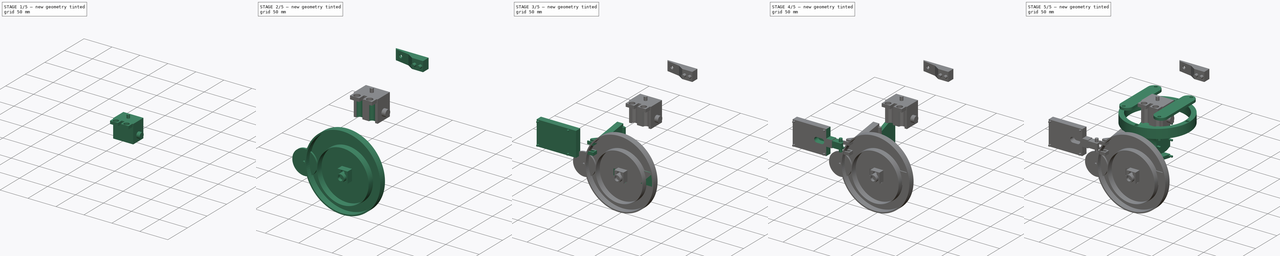
[diagram: build sequence overview — one tinted view per stage of 5, left to right]
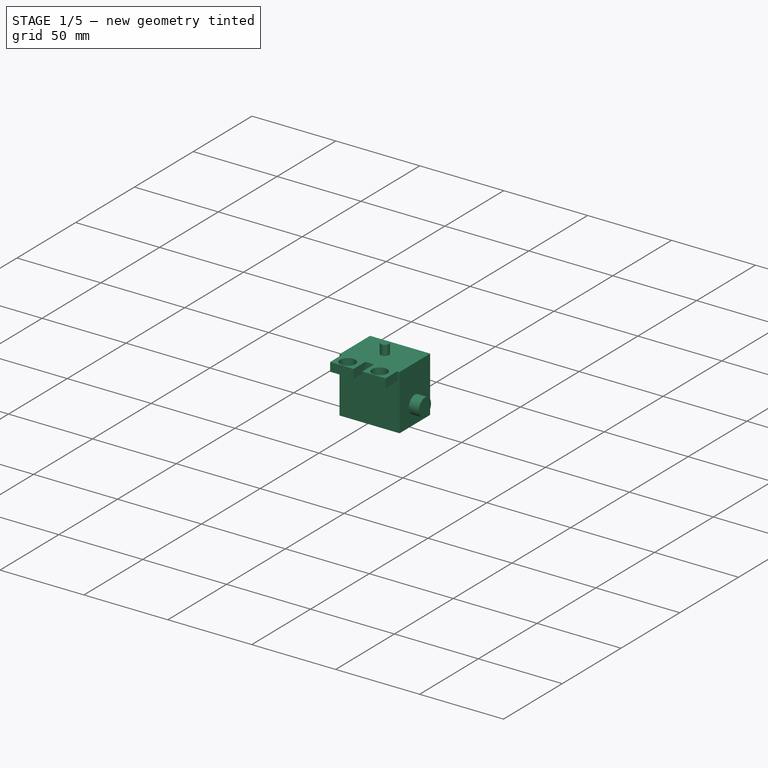
[diagram: stage 1 of 5 — iso view after this stage's code; geometry added in this stage tinted green]
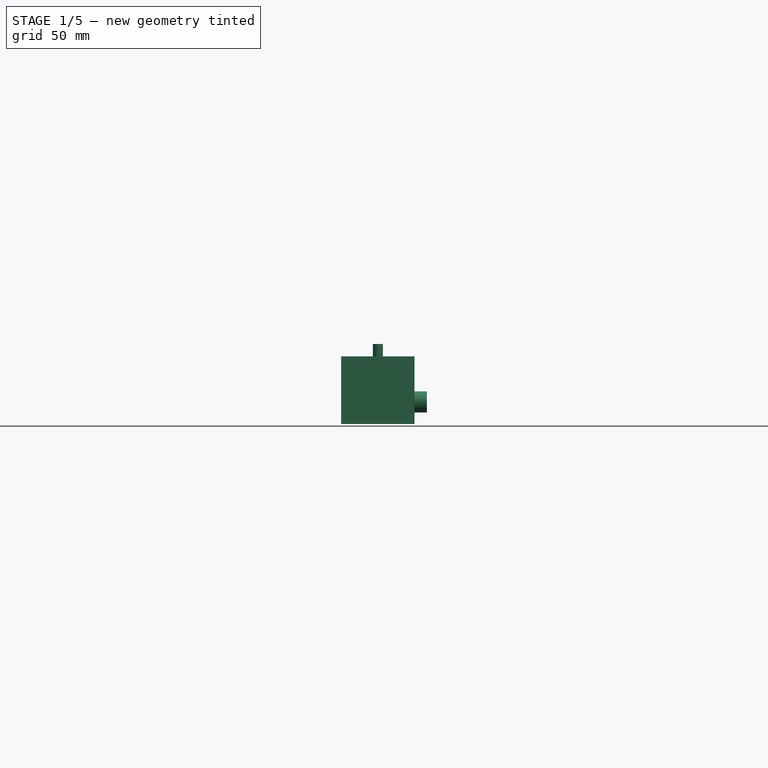
[diagram: stage 1 of 5 — front view after this stage's code; geometry added in this stage tinted green]
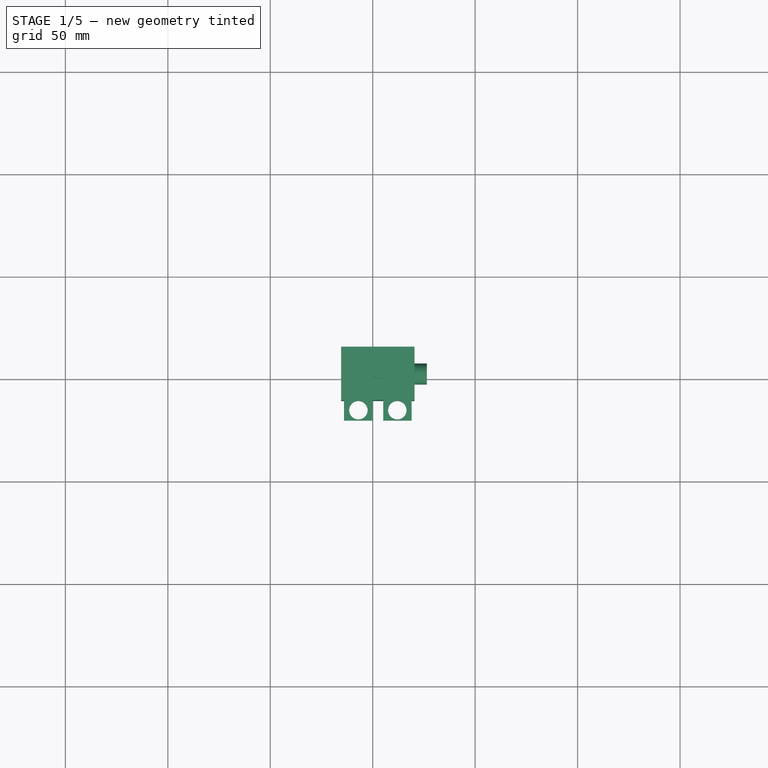
[diagram: stage 1 of 5 — top view after this stage's code; geometry added in this stage tinted green]
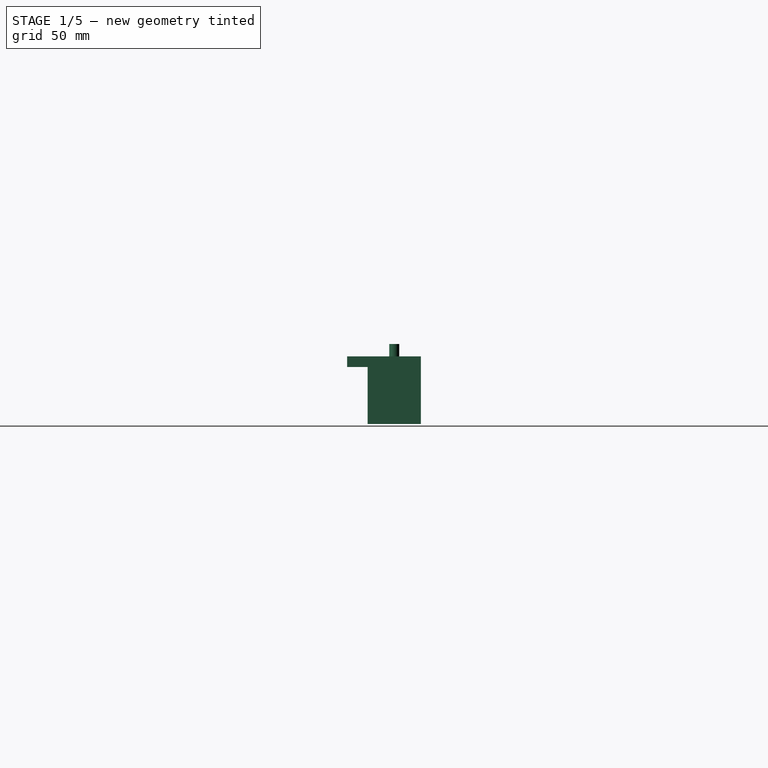
[diagram: stage 1 of 5 — right view after this stage's code; geometry added in this stage tinted green]
FCSTD DOCUMENT  (FreeCAD 0.18R4 (GitTag))
Label: soporte
License: All rights reserved
LicenseURL: http://en.wikipedia.org/wiki/All_rights_reserved
objects: Sketcher::SketchObject×91, PartDesign::Pocket×45, PartDesign::Pad×37, PartDesign::Body×14, PartDesign::Hole×5
note: 279 computed .brp shape members not serialized (recipe doc carries the construction recipe); baked Part::Feature solids carry a one-line shape summary decoded from their .brp

FEATURE [Sketcher::SketchObject] Sketch007
  MapMode = 5
  Support = -> [XY_Plane002]
  sketch-geometry (5):
    g0: LineSegment StartX=70.41 StartY=39.5 StartZ=0 EndX=34.6 EndY=39.5 EndZ=0
    g1: LineSegment StartX=34.6 StartY=39.5 StartZ=0 EndX=34.6 EndY=65.5 EndZ=0
    g2: LineSegment StartX=34.6 StartY=65.5 StartZ=0 EndX=70.41 EndY=65.5 EndZ=0
    g3: LineSegment StartX=70.41 StartY=65.5 StartZ=0 EndX=70.41 EndY=39.5 EndZ=0
    g4: Circle [constr] CenterX=52.5 CenterY=52.5 CenterZ=0 NormalX=0 NormalY=0 NormalZ=1 AngleXU=0 Radius=13
  constraints (15):
    c: Coincident(g0,g1)
    c: Coincident(g1,g2)
    c: Coincident(g2,g3)
    c: Coincident(g3,g0)
    c: Horizontal(g0)
    c: Horizontal(g2)
    c: Vertical(g1)
    c: Vertical(g3)
    c: DistanceX(g-1,g4) = 52.5
    c: DistanceY(g-1,g4) = 52.5
    c: Diameter(g4) = 26
    c: Tangent(g0,g4)
    c: Tangent(g2,g4)
    c: DistanceX(g0,g0) = 35.81
    c: DistanceX(g0,g4) = 17.9
FEATURE [PartDesign::Pad] Pad002
  Length = 33
  Length2 = 100
  Profile = -> Sketch007
  Type = 0
FEATURE [Sketcher::SketchObject] Sketch008
  MapMode = 5
  Placement = pos=(0,0,33) rot=(0,0,1;0rad)
  Support = -> [Pad002]
  sketch-geometry (1):
    g0: Circle CenterX=52.5 CenterY=52.5 CenterZ=0 NormalX=0 NormalY=0 NormalZ=1 AngleXU=0 Radius=2.45
  constraints (3):
    c: DistanceX(g-1,g0) = 52.5
    c: DistanceY(g-1,g0) = 52.5
    c: Diameter(g0) = 4.9  'pivote sujeccion'
FEATURE [PartDesign::Pad] Pad003
  BaseFeature = -> Pad002
  Length = 6
  Length2 = 100
  Profile = -> Sketch008
  Type = 0
FEATURE [Sketcher::SketchObject] Sketch009
  MapMode = 5
  Placement = pos=(0,39.5,0) rot=(1,0,0;1.5708rad)
  Support = -> [Pad003]
  sketch-geometry (8):
    g0: LineSegment StartX=35.99 StartY=33 StartZ=0 EndX=49.9683 EndY=33 EndZ=0
    g1: LineSegment StartX=68.99 StartY=33 StartZ=0 EndX=68.99 EndY=27.779 EndZ=0
    g2: LineSegment StartX=68.99 StartY=27.779 StartZ=0 EndX=55.1172 EndY=27.779 EndZ=0
    g3: LineSegment StartX=35.99 StartY=27.779 StartZ=0 EndX=35.99 EndY=33 EndZ=0
    g4: LineSegment StartX=55.1172 StartY=33 StartZ=0 EndX=55.1172 EndY=27.779 EndZ=0
    g5: LineSegment StartX=49.9683 StartY=27.779 StartZ=0 EndX=49.9683 EndY=33 EndZ=0
    g6: LineSegment StartX=49.9683 StartY=27.779 StartZ=0 EndX=35.99 EndY=27.779 EndZ=0
    g7: LineSegment StartX=55.1172 StartY=33 StartZ=0 EndX=68.99 EndY=33 EndZ=0
  constraints (19):
    c: Coincident(g7,g1)
    c: Coincident(g1,g2)
    c: Coincident(g6,g3)
    c: Coincident(g3,g0)
    c: Horizontal(g0)
    c: Horizontal(g2)
    c: Vertical(g1)
    c: Vertical(g3)
    c: DistanceX(g0,g7) = 33
    c: DistanceY(g-1,g0) = 33
    c: DistanceX(g-1,g0) = 35.99
    c: Vertical(g4)
    c: Vertical(g5)
    c: Coincident(g2,g4)
    c: Coincident(g6,g5)
    c: Tangent(g2,g6)
    c: Coincident(g0,g5)
    c: Coincident(g7,g4)
    c: Tangent(g0,g7)
FEATURE [PartDesign::Pad] Pad004
  BaseFeature = -> Pad003
  Length = 10
  Length2 = 100
  Profile = -> Sketch009
  Type = 0
FEATURE [Sketcher::SketchObject] Sketch010
  MapMode = 5
  Placement = pos=(2.83e-14,6.1e-15,27.779) rot=(1,0,0;3.14159rad)
  Support = -> [Pad004]
  sketch-geometry (2):
    g0: Circle CenterX=62 CenterY=-34.5 CenterZ=0 NormalX=0 NormalY=0 NormalZ=1 AngleXU=0 Radius=4.5
    g1: Circle CenterX=43 CenterY=-34.5 CenterZ=0 NormalX=0 NormalY=0 NormalZ=1 AngleXU=0 Radius=4.5
  constraints (6):
    c: Diameter(g0) = 9
    c: Diameter(g1) = 9
    c: DistanceY(g1,g-1) = 34.5
    c: DistanceY(g0,g-1) = 34.5
    c: DistanceX(g-1,g1) = 43
    c: DistanceX(g-1,g0) = 62
FEATURE [PartDesign::Pocket] Pocket
  BaseFeature = -> Pad004
  Length = 5
  Length2 = 100
  Profile = -> Sketch010
  Type = 1
FEATURE [PartDesign::Body] Body  label="portaPanel"
  Group = -> [Sketch,Pad,Sketch001,Pocket001,Sketch002,Hole,Sketch012,Pad005]
  Origin = -> Origin
  Tip = -> Pad005
FEATURE [Sketcher::SketchObject] Sketch015  label="CabezaServo"
  MapMode = 5
  Placement = pos=(34.6,0,0) rot=(0.57735,-0.57735,-0.57735;2.0944rad)
  Support = -> [Pocket]
  sketch-geometry (15):
    g0: LineSegment [constr] StartX=-65.5 StartY=0 StartZ=0 EndX=-39.5 EndY=0 EndZ=0
    g1: LineSegment [constr] StartX=-39.5 StartY=0 StartZ=0 EndX=-39.5 EndY=33 EndZ=0
    g2: LineSegment [constr] StartX=-39.5 StartY=33 StartZ=0 EndX=-65.5 EndY=33 EndZ=0
    g3: LineSegment [constr] StartX=-65.5 StartY=33 StartZ=0 EndX=-65.5 EndY=0 EndZ=0
    g4: LineSegment [constr] StartX=-52.5 StartY=0 StartZ=0 EndX=-52.5 EndY=33 EndZ=0
    g5: LineSegment [constr] StartX=-65.5 StartY=0 StartZ=0 EndX=-39.5 EndY=0 EndZ=0
    g6: LineSegment [constr] StartX=-39.5 StartY=0 StartZ=0 EndX=-39.5 EndY=4.9 EndZ=0
    g7: LineSegment [constr] StartX=-39.5 StartY=4.9 StartZ=0 EndX=-65.5 EndY=4.9 EndZ=0
    g8: LineSegment [constr] StartX=-65.5 StartY=4.9 StartZ=0 EndX=-65.5 EndY=0 EndZ=0
    g9: LineSegment StartX=-58.5 StartY=0 StartZ=0 EndX=-46.5 EndY=0 EndZ=0
    g10: LineSegment StartX=-46.5 StartY=0 StartZ=0 EndX=-46.5 EndY=10.9 EndZ=0
    g11: LineSegment StartX=-58.5 StartY=10.9 StartZ=0 EndX=-58.5 EndY=0 EndZ=0
    g12: ArcOfCircle CenterX=-52.5 CenterY=10.9 CenterZ=0 NormalX=0 NormalY=0 NormalZ=1 AngleXU=0 Radius=6 StartAngle=1.99224 EndAngle=3.14159
    g13: ArcOfCircle CenterX=-52.5 CenterY=16.85 CenterZ=0 NormalX=0 NormalY=0 NormalZ=1 AngleXU=0 Radius=2.5 StartAngle=6.09202 EndAngle=9.61594
    g14: ArcOfCircle CenterX=-52.5 CenterY=10.9 CenterZ=0 NormalX=0 NormalY=0 NormalZ=1 AngleXU=0 Radius=6 StartAngle=0 EndAngle=1.14935
  constraints (47):
    c: Coincident(g0,g1)
    c: Coincident(g1,g2)
    c: Coincident(g2,g3)
    c: Coincident(g3,g0)
    c: Horizontal(g0)
    c: Horizontal(g2)
    c: Vertical(g1)
    c: Vertical(g3)
    c: DistanceX(g2,g2) = 26
    c: DistanceY(g1,g1) = 33
    c: DistanceY(g-1,g0) = 0
    c: DistanceX(g0,g-1) = 65.5
    c: Vertical(g4)
    c: DistanceX(g4,g1) = 13
    c: DistanceY(g0,g4) = 0
    c: DistanceY(g4,g1) = 0
    c: Coincident(g5,g6)
    c: Coincident(g6,g7)
    c: Coincident(g7,g8)
    c: Coincident(g8,g5)
    c: Horizontal(g5)
    c: Horizontal(g7)
    c: Vertical(g6)
    c: Vertical(g8)
    c: DistanceY(g6,g6) = 4.9
    c: DistanceX(g7,g7) = 26
    c: Coincident(g0,g5)
    c: Coincident(g9,g10)
    c: Coincident(g11,g9)
    c: Horizontal(g9)
    c: Vertical(g10)
    c: Vertical(g11)
    c: DistanceX(g9,g9) = 12
    c: DistanceX(g4,g9) = 6
    c: DistanceY(g0,g9) = 0
    c: Diameter(g12) = 12
    c: Diameter(g13) = 5
    c: DistanceY(g12,g13) = 5.95
    c: DistanceX(g13,g4) = 0
    c: Tangent(g12,g7)
    c: DistanceY(g12,g11) = 0
    c: DistanceY(g10,g13) = 5.95
    c: Coincident(g12,g14)
    c: Coincident(g10,g14)
    c: Coincident(g11,g12)
    c: Coincident(g12,g13)
    c: Coincident(g13,g14)
FEATURE [Sketcher::SketchObject] Sketch016
  MapMode = 5
  Placement = pos=(0,0,0) rot=(1,0,0;3.14159rad)
  sketch-geometry (9):
    g0: LineSegment StartX=39 StartY=-58.85 StartZ=0 EndX=61.6 EndY=-58.85 EndZ=0
    g1: LineSegment StartX=61.6 StartY=-58.85 StartZ=0 EndX=61.6 EndY=-46.35 EndZ=0
    g2: LineSegment StartX=61.6 StartY=-46.35 StartZ=0 EndX=39 EndY=-46.35 EndZ=0
    g3: LineSegment StartX=39 StartY=-46.35 StartZ=0 EndX=39 EndY=-58.85 EndZ=0
    g4: Circle [constr] CenterX=52.5 CenterY=-52.5 CenterZ=0 NormalX=0 NormalY=0 NormalZ=1 AngleXU=0 Radius=52.5
    g5: LineSegment [constr] StartX=34.6 StartY=-46.5 StartZ=0 EndX=39 EndY=-46.5 EndZ=0
    g6: LineSegment [constr] StartX=39 StartY=-46.5 StartZ=0 EndX=39 EndY=-58.5 EndZ=0
    g7: LineSegment [constr] StartX=39 StartY=-58.5 StartZ=0 EndX=34.6 EndY=-58.5 EndZ=0
    g8: LineSegment [constr] StartX=34.6 StartY=-58.5 StartZ=0 EndX=34.6 EndY=-46.5 EndZ=0
  constraints (26):
    c: Coincident(g0,g1)
    c: Coincident(g1,g2)
    c: Coincident(g2,g3)
    c: Coincident(g3,g0)
    c: Horizontal(g0)
    c: Horizontal(g2)
    c: Vertical(g1)
    c: Vertical(g3)
    c: DistanceY(g1,g1) = 12.5
    c: DistanceX(g2,g2) = 22.6
    c: Diameter(g4) = 105
    c: DistanceY(g4,g-1) = 52.5
    c: DistanceX(g-1,g4) = 52.5
    c: DistanceY(g4,g2) = 6.15
    c: Coincident(g5,g6)
    c: Coincident(g6,g7)
    c: Coincident(g7,g8)
    c: Coincident(g8,g5)
    c: Horizontal(g5)
    c: Horizontal(g7)
    c: Vertical(g8)
    c: DistanceX(g7,g7) = 4.4
    c: DistanceY(g8,g8) = 12
    c: DistanceY(g4,g5) = 6
    c: DistanceX(g6,g4) = 13.5
    c: Tangent(g3,g6)
FEATURE [PartDesign::Pocket] Pocket004
  BaseFeature = -> Pocket
  Length = 27.6
  Length2 = 100
  Profile = -> Sketch016
  Type = 0
FEATURE [PartDesign::Pocket] Pocket005
  BaseFeature = -> Pocket004
  Length = 5.4
  Length2 = 100
  Profile = -> Sketch015
  Type = 0
FEATURE [Sketcher::SketchObject] Sketch018
  MapMode = 5
  Placement = pos=(0,0,27.6) rot=(1,0,0;3.14159rad)
  sketch-geometry (8):
    g0: LineSegment StartX=41.2 StartY=-46.5 StartZ=0 EndX=46 EndY=-46.5 EndZ=0
    g1: LineSegment StartX=46 StartY=-46.5 StartZ=0 EndX=46 EndY=-58.5 EndZ=0
    g2: LineSegment StartX=46 StartY=-58.5 StartZ=0 EndX=41.2 EndY=-58.5 EndZ=0
    g3: LineSegment StartX=41.2 StartY=-58.5 StartZ=0 EndX=41.2 EndY=-46.5 EndZ=0
    g4: LineSegment [constr] StartX=34.6 StartY=-46.5 StartZ=0 EndX=61.6 EndY=-46.5 EndZ=0
    g5: LineSegment [constr] StartX=61.6 StartY=-46.5 StartZ=0 EndX=61.6 EndY=-58.5 EndZ=0
    g6: LineSegment [constr] StartX=61.6 StartY=-58.5 StartZ=0 EndX=34.6 EndY=-58.5 EndZ=0
    g7: LineSegment [constr] StartX=34.6 StartY=-58.5 StartZ=0 EndX=34.6 EndY=-46.5 EndZ=0
  constraints (23):
    c: Coincident(g0,g1)
    c: Coincident(g1,g2)
    c: Coincident(g2,g3)
    c: Coincident(g3,g0)
    c: Horizontal(g0)
    c: Horizontal(g2)
    c: Vertical(g1)
    c: Vertical(g3)
    c: DistanceY(g1,g1) = 12
    c: DistanceX(g2,g2) = 4.8
    c: Coincident(g4,g5)
    c: Coincident(g5,g6)
    c: Coincident(g6,g7)
    c: Coincident(g7,g4)
    c: Horizontal(g6)
    c: Vertical(g5)
    c: Vertical(g7)
    c: DistanceY(g5,g5) = 12
    c: DistanceX(g4,g4) = 27
    c: DistanceX(g4,g0) = 6.6
    c: Tangent(g0,g4)
    c: DistanceX(g-1,g4) = 34.6
    c: DistanceY(g6,g-1) = 58.5
FEATURE [PartDesign::Pocket] Pocket006
  BaseFeature = -> Pocket005
  Length = 5
  Length2 = 100
  Profile = -> Sketch018
  Type = 0
FEATURE [Sketcher::SketchObject] Sketch019
  MapMode = 5
  Placement = pos=(55.1172,0,0) rot=(0.57735,-0.57735,-0.57735;2.0944rad)
  Support = -> [Pocket006]
  sketch-geometry (8):
    g0: LineSegment [constr] StartX=46.53 StartY=32.6 StartZ=0 EndX=58.53 EndY=32.6 EndZ=0
    g1: LineSegment [constr] StartX=58.53 StartY=32.6 StartZ=0 EndX=58.53 EndY=0 EndZ=0
    g2: LineSegment [constr] StartX=58.53 StartY=0 StartZ=0 EndX=46.53 EndY=0 EndZ=0
    g3: LineSegment [constr] StartX=46.53 StartY=0 StartZ=0 EndX=46.53 EndY=32.6 EndZ=0
    g4: ArcOfCircle CenterX=49.02 CenterY=30.11 CenterZ=0 NormalX=0 NormalY=0 NormalZ=1 AngleXU=0 Radius=2.49 StartAngle=1.5708 EndAngle=4.71239
    g5: ArcOfCircle CenterX=56.04 CenterY=30.11 CenterZ=0 NormalX=0 NormalY=0 NormalZ=1 AngleXU=0 Radius=2.49 StartAngle=4.71239 EndAngle=7.85398
    g6: LineSegment StartX=49.02 StartY=27.62 StartZ=0 EndX=56.04 EndY=27.62 EndZ=0
    g7: LineSegment StartX=49.02 StartY=32.6 StartZ=0 EndX=56.04 EndY=32.6 EndZ=0
  constraints (21):
    c: Coincident(g0,g1)
    c: Coincident(g1,g2)
    c: Coincident(g2,g3)
    c: Coincident(g3,g0)
    c: Horizontal(g0)
    c: Horizontal(g2)
    c: Vertical(g1)
    c: Vertical(g3)
    c: DistanceY(g-1,g2) = 0
    c: DistanceY(g-1,g0) = 32.6
    c: DistanceX(g0,g0) = 12
    c: DistanceX(g-1,g2) = 46.53
    c: Tangent(g4,g7) = 1.5708
    c: Tangent(g4,g6) = -1.5708
    c: Tangent(g6,g5) = -1.5708
    c: Tangent(g7,g5) = 1.5708
    c: Horizontal(g6)
    c: Tangent(g5,g1)
    c: Tangent(g4,g3)
    c: Tangent(g7,g0)
    c: DistanceY(g5,g5) = 2.49
FEATURE [Sketcher::SketchObject] Sketch020
  MapMode = 5
  Placement = pos=(34.6,0,0) rot=(0.57735,-0.57735,-0.57735;2.0944rad)
  Support = -> [Pocket006]
  sketch-geometry (8):
    g0: LineSegment [constr] StartX=-58.53 StartY=0 StartZ=0 EndX=-46.53 EndY=0 EndZ=0
    g1: LineSegment [constr] StartX=-46.53 StartY=0 StartZ=0 EndX=-46.53 EndY=32.6 EndZ=0
    g2: LineSegment [constr] StartX=-46.53 StartY=32.6 StartZ=0 EndX=-58.53 EndY=32.6 EndZ=0
    g3: LineSegment [constr] StartX=-58.53 StartY=32.6 StartZ=0 EndX=-58.53 EndY=0 EndZ=0
    g4: ArcOfCircle CenterX=-56.04 CenterY=30.11 CenterZ=0 NormalX=0 NormalY=0 NormalZ=1 AngleXU=0 Radius=2.49 StartAngle=1.5708 EndAngle=4.71239
    g5: ArcOfCircle CenterX=-49.02 CenterY=30.11 CenterZ=0 NormalX=0 NormalY=0 NormalZ=1 AngleXU=0 Radius=2.49 StartAngle=4.71239 EndAngle=7.85398
    g6: LineSegment StartX=-56.04 StartY=27.62 StartZ=0 EndX=-49.02 EndY=27.62 EndZ=0
    g7: LineSegment StartX=-56.04 StartY=32.6 StartZ=0 EndX=-49.02 EndY=32.6 EndZ=0
  constraints (21):
    c: Coincident(g0,g1)
    c: Coincident(g1,g2)
    c: Coincident(g2,g3)
    c: Coincident(g3,g0)
    c: Horizontal(g0)
    c: Horizontal(g2)
    c: Vertical(g1)
    c: Vertical(g3)
    c: DistanceX(g2,g2) = 12
    c: DistanceY(g1,g1) = 32.6
    c: DistanceX(g0,g-1) = 46.53
    c: DistanceY(g-1,g0) = 0
    c: Tangent(g4,g7) = 1.5708
    c: Tangent(g4,g6) = -1.5708
    c: Tangent(g6,g5) = -1.5708
    c: Tangent(g7,g5) = 1.5708
    c: Horizontal(g6)
    c: DistanceY(g5,g5) = 2.49
    c: Tangent(g7,g2)
    c: Tangent(g5,g1)
    c: Tangent(g4,g3)
FEATURE [PartDesign::Pocket] Pocket007
  BaseFeature = -> Pocket006
  Length = 8.5
  Length2 = 100
  Profile = -> Sketch020
  Type = 0
FEATURE [Sketcher::SketchObject] Sketch021
  MapMode = 5
  Placement = pos=(0,6.1e-15,27.779) rot=(1,0,0;3.14159rad)
  Support = -> [Pocket007]
  sketch-geometry (116):
    g0: LineSegment [constr] StartX=-61.9704 StartY=25.9752 StartZ=0 EndX=-39.3516 EndY=25.9752 EndZ=0
    g1: LineSegment [constr] StartX=-39.3516 StartY=25.9752 StartZ=0 EndX=-39.3516 EndY=1.5 EndZ=0
    g2: LineSegment [constr] StartX=-39.3516 StartY=1.5 StartZ=0 EndX=-61.9704 EndY=1.5 EndZ=0
    g3: LineSegment [constr] StartX=-61.9704 StartY=1.5 StartZ=0 EndX=-61.9704 EndY=25.9752 EndZ=0
    g4: LineSegment StartX=-57.661 StartY=24.8205 StartZ=0 EndX=-59.661 EndY=25.9752 EndZ=0
    g5: LineSegment StartX=-59.661 StartY=25.9752 StartZ=0 EndX=-61.661 EndY=24.8205 EndZ=0
    g6: LineSegment StartX=-61.661 StartY=24.8205 StartZ=0 EndX=-61.661 EndY=22.5111 EndZ=0
    g7: LineSegment StartX=-61.661 StartY=22.5111 StartZ=0 EndX=-59.661 EndY=21.3564 EndZ=0
    g8: LineSegment StartX=-59.661 StartY=21.3564 StartZ=0 EndX=-57.661 EndY=22.5111 EndZ=0
    g9: LineSegment StartX=-57.661 StartY=22.5111 StartZ=0 EndX=-57.661 EndY=24.8205 EndZ=0
    g10: Circle [constr] CenterX=-59.661 CenterY=23.6658 CenterZ=0 NormalX=0 NormalY=0 NormalZ=1 AngleXU=0 Radius=2.3094
    g11: LineSegment StartX=-57.661 StartY=18.2017 StartZ=0 EndX=-59.661 EndY=19.3564 EndZ=0
    g12: LineSegment StartX=-59.661 StartY=19.3564 StartZ=0 EndX=-61.661 EndY=18.2017 EndZ=0
    g13: LineSegment StartX=-61.661 StartY=18.2017 StartZ=0 EndX=-61.661 EndY=15.8923 EndZ=0
    g14: LineSegment StartX=-61.661 StartY=15.8923 StartZ=0 EndX=-59.661 EndY=14.7376 EndZ=0
    g15: LineSegment StartX=-59.661 StartY=14.7376 StartZ=0 EndX=-57.661 EndY=15.8923 EndZ=0
    g16: LineSegment StartX=-57.661 StartY=15.8923 StartZ=0 EndX=-57.661 EndY=18.2017 EndZ=0
    g17: Circle [constr] CenterX=-59.661 CenterY=17.047 CenterZ=0 NormalX=0 NormalY=0 NormalZ=1 AngleXU=0 Radius=2.3094
    g18: LineSegment StartX=-57.661 StartY=11.5829 StartZ=0 EndX=-59.661 EndY=12.7376 EndZ=0
    g19: LineSegment StartX=-59.661 StartY=12.7376 StartZ=0 EndX=-61.661 EndY=11.5829 EndZ=0
    g20: LineSegment StartX=-61.661 StartY=11.5829 StartZ=0 EndX=-61.661 EndY=9.2735 EndZ=0
    g21: LineSegment StartX=-61.661 StartY=9.2735 StartZ=0 EndX=-59.661 EndY=8.1188 EndZ=0
    g22: LineSegment StartX=-59.661 StartY=8.1188 StartZ=0 EndX=-57.661 EndY=9.2735 EndZ=0
    g23: LineSegment StartX=-57.661 StartY=9.2735 StartZ=0 EndX=-57.661 EndY=11.5829 EndZ=0
    g24: Circle [constr] CenterX=-59.661 CenterY=10.4282 CenterZ=0 NormalX=0 NormalY=0 NormalZ=1 AngleXU=0 Radius=2.3094
    g25: LineSegment StartX=-57.661 StartY=4.9641 StartZ=0 EndX=-59.661 EndY=6.1188 EndZ=0
    g26: LineSegment StartX=-59.661 StartY=6.1188 StartZ=0 EndX=-61.661 EndY=4.9641 EndZ=0
    g27: LineSegment StartX=-61.661 StartY=4.9641 StartZ=0 EndX=-61.661 EndY=2.6547 EndZ=0
    g28: LineSegment StartX=-61.661 StartY=2.6547 StartZ=0 EndX=-59.661 EndY=1.5 EndZ=0
    g29: LineSegment StartX=-59.661 StartY=1.5 StartZ=0 EndX=-57.661 EndY=2.6547 EndZ=0
    g30: LineSegment StartX=-57.661 StartY=2.6547 StartZ=0 EndX=-57.661 EndY=4.9641 EndZ=0
    g31: Circle [constr] CenterX=-59.661 CenterY=3.8094 CenterZ=0 NormalX=0 NormalY=0 NormalZ=1 AngleXU=0 Radius=2.3094
    g32: LineSegment StartX=-45.661 StartY=24.8205 StartZ=0 EndX=-47.661 EndY=25.9752 EndZ=0
    g33: LineSegment StartX=-47.661 StartY=25.9752 StartZ=0 EndX=-49.661 EndY=24.8205 EndZ=0
    g34: LineSegment StartX=-49.661 StartY=24.8205 StartZ=0 EndX=-49.661 EndY=22.5111 EndZ=0
    g35: LineSegment StartX=-49.661 StartY=22.5111 StartZ=0 EndX=-47.661 EndY=21.3564 EndZ=0
    g36: LineSegment StartX=-47.661 StartY=21.3564 StartZ=0 EndX=-45.661 EndY=22.5111 EndZ=0
    g37: LineSegment StartX=-45.661 StartY=22.5111 StartZ=0 EndX=-45.661 EndY=24.8205 EndZ=0
    g38: Circle [constr] CenterX=-47.661 CenterY=23.6658 CenterZ=0 NormalX=0 NormalY=0 NormalZ=1 AngleXU=0 Radius=2.3094
    g39: LineSegment StartX=-45.661 StartY=18.2017 StartZ=0 EndX=-47.661 EndY=19.3564 EndZ=0
    g40: LineSegment StartX=-47.661 StartY=19.3564 StartZ=0 EndX=-49.661 EndY=18.2017 EndZ=0
    g41: LineSegment StartX=-49.661 StartY=18.2017 StartZ=0 EndX=-49.661 EndY=15.8923 EndZ=0
    g42: LineSegment StartX=-49.661 StartY=15.8923 StartZ=0 EndX=-47.661 EndY=14.7376 EndZ=0
    g43: LineSegment StartX=-47.661 StartY=14.7376 StartZ=0 EndX=-45.661 EndY=15.8923 EndZ=0
    g44: LineSegment StartX=-45.661 StartY=15.8923 StartZ=0 EndX=-45.661 EndY=18.2017 EndZ=0
    g45: Circle [constr] CenterX=-47.661 CenterY=17.047 CenterZ=0 NormalX=0 NormalY=0 NormalZ=1 AngleXU=0 Radius=2.3094
    g46: LineSegment StartX=-45.661 StartY=11.5829 StartZ=0 EndX=-47.661 EndY=12.7376 EndZ=0
    g47: LineSegment StartX=-47.661 StartY=12.7376 StartZ=0 EndX=-49.661 EndY=11.5829 EndZ=0
    g48: LineSegment StartX=-49.661 StartY=11.5829 StartZ=0 EndX=-49.661 EndY=9.2735 EndZ=0
    g49: LineSegment StartX=-49.661 StartY=9.2735 StartZ=0 EndX=-47.661 EndY=8.1188 EndZ=0
    g50: LineSegment StartX=-47.661 StartY=8.1188 StartZ=0 EndX=-45.661 EndY=9.2735 EndZ=0
    g51: LineSegment StartX=-45.661 StartY=9.2735 StartZ=0 EndX=-45.661 EndY=11.5829 EndZ=0
    g52: Circle [constr] CenterX=-47.661 CenterY=10.4282 CenterZ=0 NormalX=0 NormalY=0 NormalZ=1 AngleXU=0 Radius=2.3094
    g53: LineSegment StartX=-45.661 StartY=4.9641 StartZ=0 EndX=-47.661 EndY=6.1188 EndZ=0
    g54: LineSegment StartX=-47.661 StartY=6.1188 StartZ=0 EndX=-49.661 EndY=4.9641 EndZ=0
    g55: LineSegment StartX=-49.661 StartY=4.9641 StartZ=0 EndX=-49.661 EndY=2.6547 EndZ=0
    g56: LineSegment StartX=-49.661 StartY=2.6547 StartZ=0 EndX=-47.661 EndY=1.5 EndZ=0
    g57: LineSegment StartX=-47.661 StartY=1.5 StartZ=0 EndX=-45.661 EndY=2.6547 EndZ=0
    g58: LineSegment StartX=-45.661 StartY=2.6547 StartZ=0 EndX=-45.661 EndY=4.9641 EndZ=0
    g59: Circle [constr] CenterX=-47.661 CenterY=3.8094 CenterZ=0 NormalX=0 NormalY=0 NormalZ=1 AngleXU=0 Radius=2.3094
    g60: LineSegment StartX=-39.661 StartY=24.8205 StartZ=0 EndX=-41.661 EndY=25.9752 EndZ=0
    g61: LineSegment StartX=-41.661 StartY=25.9752 StartZ=0 EndX=-43.661 EndY=24.8205 EndZ=0
    g62: LineSegment StartX=-43.661 StartY=24.8205 StartZ=0 EndX=-43.661 EndY=22.5111 EndZ=0
    g63: LineSegment StartX=-43.661 StartY=22.5111 StartZ=0 EndX=-41.661 EndY=21.3564 EndZ=0
    g64: LineSegment StartX=-41.661 StartY=21.3564 StartZ=0 EndX=-39.661 EndY=22.5111 EndZ=0
    g65: LineSegment StartX=-39.661 StartY=22.5111 StartZ=0 EndX=-39.661 EndY=24.8205 EndZ=0
    g66: Circle [constr] CenterX=-41.661 CenterY=23.6658 CenterZ=0 NormalX=0 NormalY=0 NormalZ=1 AngleXU=0 Radius=2.3094
    g67: LineSegment StartX=-39.661 StartY=18.2017 StartZ=0 EndX=-41.661 EndY=19.3564 EndZ=0
    g68: LineSegment StartX=-41.661 StartY=19.3564 StartZ=0 EndX=-43.661 EndY=18.2017 EndZ=0
    g69: LineSegment StartX=-43.661 StartY=18.2017 StartZ=0 EndX=-43.661 EndY=15.8923 EndZ=0
    g70: LineSegment StartX=-43.661 StartY=15.8923 StartZ=0 EndX=-41.661 EndY=14.7376 EndZ=0
    g71: LineSegment StartX=-41.661 StartY=14.7376 StartZ=0 EndX=-39.661 EndY=15.8923 EndZ=0
    g72: LineSegment StartX=-39.661 StartY=15.8923 StartZ=0 EndX=-39.661 EndY=18.2017 EndZ=0
    g73: Circle [constr] CenterX=-41.661 CenterY=17.047 CenterZ=0 NormalX=0 NormalY=0 NormalZ=1 AngleXU=0 Radius=2.3094
    g74: LineSegment StartX=-39.661 StartY=11.5829 StartZ=0 EndX=-41.661 EndY=12.7376 EndZ=0
    g75: LineSegment StartX=-41.661 StartY=12.7376 StartZ=0 EndX=-43.661 EndY=11.5829 EndZ=0
    g76: LineSegment StartX=-43.661 StartY=11.5829 StartZ=0 EndX=-43.661 EndY=9.2735 EndZ=0
    g77: LineSegment StartX=-43.661 StartY=9.2735 StartZ=0 EndX=-41.661 EndY=8.1188 EndZ=0
    g78: LineSegment StartX=-41.661 StartY=8.1188 StartZ=0 EndX=-39.661 EndY=9.2735 EndZ=0
    g79: LineSegment StartX=-39.661 StartY=9.2735 StartZ=0 EndX=-39.661 EndY=11.5829 EndZ=0
    g80: Circle [constr] CenterX=-41.661 CenterY=10.4282 CenterZ=0 NormalX=0 NormalY=0 NormalZ=1 AngleXU=0 Radius=2.3094
    g81: LineSegment StartX=-39.661 StartY=4.9641 StartZ=0 EndX=-41.661 EndY=6.1188 EndZ=0
    g82: LineSegment StartX=-41.661 StartY=6.1188 StartZ=0 EndX=-43.661 EndY=4.9641 EndZ=0
    g83: LineSegment StartX=-43.661 StartY=4.9641 StartZ=0 EndX=-43.661 EndY=2.6547 EndZ=0
    g84: LineSegment StartX=-43.661 StartY=2.6547 StartZ=0 EndX=-41.661 EndY=1.5 EndZ=0
    g85: LineSegment StartX=-41.661 StartY=1.5 StartZ=0 EndX=-39.661 EndY=2.6547 EndZ=0
    g86: LineSegment StartX=-39.661 StartY=2.6547 StartZ=0 EndX=-39.661 EndY=4.9641 EndZ=0
    g87: Circle [constr] CenterX=-41.661 CenterY=3.8094 CenterZ=0 NormalX=0 NormalY=0 NormalZ=1 AngleXU=0 Radius=2.3094
    g88: LineSegment StartX=-51.661 StartY=24.8205 StartZ=0 EndX=-53.661 EndY=25.9752 EndZ=0
    g89: LineSegment StartX=-53.661 StartY=25.9752 StartZ=0 EndX=-55.661 EndY=24.8205 EndZ=0
    g90: LineSegment StartX=-55.661 StartY=24.8205 StartZ=0 EndX=-55.661 EndY=22.5111 EndZ=0
    g91: LineSegment StartX=-55.661 StartY=22.5111 StartZ=0 EndX=-53.661 EndY=21.3564 EndZ=0
    g92: LineSegment StartX=-53.661 StartY=21.3564 StartZ=0 EndX=-51.661 EndY=22.5111 EndZ=0
    g93: LineSegment StartX=-51.661 StartY=22.5111 StartZ=0 EndX=-51.661 EndY=24.8205 EndZ=0
    g94: Circle [constr] CenterX=-53.661 CenterY=23.6658 CenterZ=0 NormalX=0 NormalY=0 NormalZ=1 AngleXU=0 Radius=2.3094
    g95: LineSegment StartX=-51.661 StartY=18.2017 StartZ=0 EndX=-53.661 EndY=19.3564 EndZ=0
    g96: LineSegment StartX=-53.661 StartY=19.3564 StartZ=0 EndX=-55.661 EndY=18.2017 EndZ=0
    g97: LineSegment StartX=-55.661 StartY=18.2017 StartZ=0 EndX=-55.661 EndY=15.8923 EndZ=0
    g98: LineSegment StartX=-55.661 StartY=15.8923 StartZ=0 EndX=-53.661 EndY=14.7376 EndZ=0
    g99: LineSegment StartX=-53.661 StartY=14.7376 StartZ=0 EndX=-51.661 EndY=15.8923 EndZ=0
    g100: LineSegment StartX=-51.661 StartY=15.8923 StartZ=0 EndX=-51.661 EndY=18.2017 EndZ=0
    g101: Circle [constr] CenterX=-53.661 CenterY=17.047 CenterZ=0 NormalX=0 NormalY=0 NormalZ=1 AngleXU=0 Radius=2.3094
    g102: LineSegment StartX=-51.661 StartY=11.5829 StartZ=0 EndX=-53.661 EndY=12.7376 EndZ=0
    g103: LineSegment StartX=-53.661 StartY=12.7376 StartZ=0 EndX=-55.661 EndY=11.5829 EndZ=0
    g104: LineSegment StartX=-55.661 StartY=11.5829 StartZ=0 EndX=-55.661 EndY=9.2735 EndZ=0
    g105: LineSegment StartX=-55.661 StartY=9.2735 StartZ=0 EndX=-53.661 EndY=8.1188 EndZ=0
    g106: LineSegment StartX=-53.661 StartY=8.1188 StartZ=0 EndX=-51.661 EndY=9.2735 EndZ=0
    g107: LineSegment StartX=-51.661 StartY=9.2735 StartZ=0 EndX=-51.661 EndY=11.5829 EndZ=0
    g108: Circle [constr] CenterX=-53.661 CenterY=10.4282 CenterZ=0 NormalX=0 NormalY=0 NormalZ=1 AngleXU=0 Radius=2.3094
    g109: LineSegment StartX=-51.661 StartY=4.9641 StartZ=0 EndX=-53.661 EndY=6.1188 EndZ=0
    g110: LineSegment StartX=-53.661 StartY=6.1188 StartZ=0 EndX=-55.661 EndY=4.9641 EndZ=0
    g111: LineSegment StartX=-55.661 StartY=4.9641 StartZ=0 EndX=-55.661 EndY=2.6547 EndZ=0
    g112: LineSegment StartX=-55.661 StartY=2.6547 StartZ=0 EndX=-53.661 EndY=1.5 EndZ=0
    g113: LineSegment StartX=-53.661 StartY=1.5 StartZ=0 EndX=-51.661 EndY=2.6547 EndZ=0
    g114: LineSegment StartX=-51.661 StartY=2.6547 StartZ=0 EndX=-51.661 EndY=4.9641 EndZ=0
    g115: Circle [constr] CenterX=-53.661 CenterY=3.8094 CenterZ=0 NormalX=0 NormalY=0 NormalZ=1 AngleXU=0 Radius=2.3094
  constraints (283):
    c: Coincident(g0,g1)
    c: Coincident(g1,g2)
    c: Coincident(g2,g3)
    c: Coincident(g3,g0)
    c: Horizontal(g0)
    c: Horizontal(g2)
    c: Vertical(g1)
    c: Vertical(g3)
    c: DistanceY(g-1,g1) = 1.5
    c: Coincident(g4,g5)
    c: Coincident(g5,g6)
    c: Coincident(g6,g7)
    c: Coincident(g7,g8)
    c: Coincident(g8,g9)
    c: Coincident(g9,g4)
    c: Equal(g4, g5-g9) x5
    c: PointOnObject(g4,g10)
    c: PointOnObject(g5,g10)
    c: PointOnObject(g6,g10)
    c: PointOnObject(g7,g10)
    c: PointOnObject(g8,g10)
    c: PointOnObject(g9,g10)
    c: DistanceX(g10,g8) = 2
    c: Vertical(g9)
    c: Tangent(g10,g0)
    c: Tangent(g10,g3)
    c: Coincident(g11,g12)
    c: Coincident(g12,g13)
    c: Coincident(g13,g14)
    c: Coincident(g14,g15)
    c: Coincident(g15,g16)
    c: Coincident(g16,g11)
    c: Equal(g11, g12-g16) x5
    c: PointOnObject(g11,g17)
    c: PointOnObject(g12,g17)
    c: PointOnObject(g13,g17)
    c: PointOnObject(g14,g17)
    c: PointOnObject(g15,g17)
    c: PointOnObject(g16,g17)
    c: DistanceX(g17,g15) = 2
    c: Vertical(g16)
    c: Coincident(g18,g19)
    c: Coincident(g19,g20)
    c: Coincident(g20,g21)
    c: Coincident(g21,g22)
    c: Coincident(g22,g23)
    c: Coincident(g23,g18)
    c: Equal(g18, g19-g23) x5
    c: PointOnObject(g18,g24)
    c: PointOnObject(g19,g24)
    c: PointOnObject(g20,g24)
    c: PointOnObject(g21,g24)
    c: PointOnObject(g22,g24)
    c: PointOnObject(g23,g24)
    c: DistanceX(g24,g22) = 2
    c: Vertical(g23)
    c: Tangent(g17,g3)
    c: Tangent(g24,g3)
    c: Coincident(g25,g26)
    c: Coincident(g26,g27)
    c: Coincident(g27,g28)
    c: Coincident(g28,g29)
    c: Coincident(g29,g30)
    c: Coincident(g30,g25)
    c: Equal(g25, g26-g30) x5
    c: PointOnObject(g25,g31)
    c: PointOnObject(g26,g31)
    c: PointOnObject(g27,g31)
    c: PointOnObject(g28,g31)
    c: PointOnObject(g29,g31)
    c: PointOnObject(g30,g31)
    c: DistanceX(g31,g29) = 2
    c: Vertical(g30)
    c: Tangent(g31,g3)
    c: DistanceY(g11,g7) = 2
    c: DistanceY(g18,g14) = 2
    c: DistanceY(g25,g21) = 2
    c: Tangent(g31,g2)
    c: Coincident(g32,g33)
    c: Coincident(g33,g34)
    c: Coincident(g34,g35)
    c: Coincident(g35,g36)
    c: Coincident(g36,g37)
    c: Coincident(g37,g32)
    c: Equal(g32, g33-g37) x5
    c: PointOnObject(g32,g38)
    c: PointOnObject(g33,g38)
    c: PointOnObject(g34,g38)
    c: PointOnObject(g35,g38)
    c: PointOnObject(g36,g38)
    c: PointOnObject(g37,g38)
    c: DistanceX(g38,g36) = 2
    c: Vertical(g37)
    c: Coincident(g39,g40)
    c: Coincident(g40,g41)
    c: Coincident(g41,g42)
    c: Coincident(g42,g43)
    c: Coincident(g43,g44)
    c: Coincident(g44,g39)
    c: Equal(g39, g40-g44) x5
    c: PointOnObject(g39,g45)
    c: PointOnObject(g40,g45)
    c: PointOnObject(g41,g45)
    c: PointOnObject(g42,g45)
    c: PointOnObject(g43,g45)
    c: PointOnObject(g44,g45)
    c: DistanceX(g45,g43) = 2
    c: Vertical(g44)
    c: Coincident(g46,g47)
    c: Coincident(g47,g48)
    c: Coincident(g48,g49)
    c: Coincident(g49,g50)
    c: Coincident(g50,g51)
    c: Coincident(g51,g46)
    c: Equal(g46, g47-g51) x5
    c: PointOnObject(g46,g52)
    c: PointOnObject(g47,g52)
    c: PointOnObject(g48,g52)
    c: PointOnObject(g49,g52)
    c: PointOnObject(g50,g52)
    c: PointOnObject(g51,g52)
    c: DistanceX(g52,g50) = 2
    c: Vertical(g51)
    c: Coincident(g53,g54)
    c: Coincident(g54,g55)
    c: Coincident(g55,g56)
    c: Coincident(g56,g57)
    c: Coincident(g57,g58)
    c: Coincident(g58,g53)
    c: Equal(g53, g54-g58) x5
    c: PointOnObject(g53,g59)
    c: PointOnObject(g54,g59)
    c: PointOnObject(g55,g59)
    c: PointOnObject(g56,g59)
    c: PointOnObject(g57,g59)
    c: PointOnObject(g58,g59)
    c: DistanceX(g59,g57) = 2
    c: Vertical(g58)
    c: DistanceY(g39,g35) = 2
    c: DistanceY(g46,g42) = 2
    c: DistanceY(g53,g49) = 2
    c: Tangent(g59,g2)
    c: Coincident(g60,g61)
    c: Coincident(g61,g62)
    c: Coincident(g62,g63)
    c: Coincident(g63,g64)
    c: Coincident(g64,g65)
    c: Coincident(g65,g60)
    c: Equal(g60, g61-g65) x5
    c: PointOnObject(g60,g66)
    c: PointOnObject(g61,g66)
    c: PointOnObject(g62,g66)
    c: PointOnObject(g63,g66)
    c: PointOnObject(g64,g66)
    c: PointOnObject(g65,g66)
    c: DistanceX(g66,g64) = 2
    c: Vertical(g65)
    c: Coincident(g67,g68)
    c: Coincident(g68,g69)
    c: Coincident(g69,g70)
    c: Coincident(g70,g71)
    c: Coincident(g71,g72)
    c: Coincident(g72,g67)
    c: Equal(g67, g68-g72) x5
    c: PointOnObject(g67,g73)
    c: PointOnObject(g68,g73)
    c: PointOnObject(g69,g73)
    c: PointOnObject(g70,g73)
    c: PointOnObject(g71,g73)
    c: PointOnObject(g72,g73)
    c: DistanceX(g73,g71) = 2
    c: Vertical(g72)
    c: Coincident(g74,g75)
    c: Coincident(g75,g76)
    c: Coincident(g76,g77)
    c: Coincident(g77,g78)
    c: Coincident(g78,g79)
    c: Coincident(g79,g74)
    c: Equal(g74, g75-g79) x5
    c: PointOnObject(g74,g80)
    c: PointOnObject(g75,g80)
    c: PointOnObject(g76,g80)
    c: PointOnObject(g77,g80)
    c: PointOnObject(g78,g80)
    c: PointOnObject(g79,g80)
    c: DistanceX(g80,g78) = 2
    c: Vertical(g79)
    c: Coincident(g81,g82)
    c: Coincident(g82,g83)
    c: Coincident(g83,g84)
    c: Coincident(g84,g85)
    c: Coincident(g85,g86)
    c: Coincident(g86,g81)
    c: Equal(g81, g82-g86) x5
    c: PointOnObject(g81,g87)
    c: PointOnObject(g82,g87)
    c: PointOnObject(g83,g87)
    c: PointOnObject(g84,g87)
    c: PointOnObject(g85,g87)
    c: PointOnObject(g86,g87)
    c: DistanceX(g87,g85) = 2
    c: Vertical(g86)
    c: DistanceY(g67,g63) = 2
    c: DistanceY(g74,g70) = 2
    c: DistanceY(g81,g77) = 2
    c: Tangent(g1,g66)
    c: DistanceX(g32,g61) = 2
    c: DistanceX(g39,g68) = 2
    c: DistanceX(g46,g75) = 2
    c: DistanceX(g53,g82) = 2
    c: Tangent(g87,g2)
    c: Tangent(g73,g1)
    c: Tangent(g80,g1)
    c: Tangent(g87,g1)
    c: Coincident(g88,g89)
    c: Coincident(g89,g90)
    c: Coincident(g90,g91)
    c: Coincident(g91,g92)
    c: Coincident(g92,g93)
    c: Coincident(g93,g88)
    c: Equal(g88, g89-g93) x5
    c: PointOnObject(g88,g94)
    c: PointOnObject(g89,g94)
    c: PointOnObject(g90,g94)
    c: PointOnObject(g91,g94)
    c: PointOnObject(g92,g94)
    c: PointOnObject(g93,g94)
    c: DistanceX(g94,g92) = 2
    c: Vertical(g93)
    c: Coincident(g95,g96)
    c: Coincident(g96,g97)
    c: Coincident(g97,g98)
    c: Coincident(g98,g99)
    c: Coincident(g99,g100)
    c: Coincident(g100,g95)
    c: Equal(g95, g96-g100) x5
    c: PointOnObject(g95,g101)
    c: PointOnObject(g96,g101)
    c: PointOnObject(g97,g101)
    c: PointOnObject(g98,g101)
    c: PointOnObject(g99,g101)
    c: PointOnObject(g100,g101)
    c: DistanceX(g101,g99) = 2
    c: Vertical(g100)
    c: Coincident(g102,g103)
    c: Coincident(g103,g104)
    c: Coincident(g104,g105)
    c: Coincident(g105,g106)
    c: Coincident(g106,g107)
    c: Coincident(g107,g102)
    c: Equal(g102, g103-g107) x5
    c: PointOnObject(g102,g108)
    c: PointOnObject(g103,g108)
    c: PointOnObject(g104,g108)
    c: PointOnObject(g105,g108)
    c: PointOnObject(g106,g108)
    c: PointOnObject(g107,g108)
    c: DistanceX(g108,g106) = 2
    c: Vertical(g107)
    c: Coincident(g109,g110)
    c: Coincident(g110,g111)
    c: Coincident(g111,g112)
    c: Coincident(g112,g113)
    c: Coincident(g113,g114)
    c: Coincident(g114,g109)
    c: Equal(g109, g110-g114) x5
    c: PointOnObject(g109,g115)
    c: PointOnObject(g110,g115)
    c: PointOnObject(g111,g115)
    c: PointOnObject(g112,g115)
    c: PointOnObject(g113,g115)
    c: PointOnObject(g114,g115)
    c: DistanceX(g115,g113) = 2
    c: Vertical(g114)
    c: DistanceY(g95,g91) = 2
    c: DistanceY(g102,g98) = 2
    c: DistanceY(g109,g105) = 2
    c: DistanceX(g109,g54) = 2
    c: Tangent(g115,g2)
    c: DistanceX(g102,g47) = 2
    c: DistanceX(g95,g40) = 2
    c: DistanceX(g88,g33) = 2
    c: DistanceX(g11,g96) = 2
FEATURE [PartDesign::Pocket] Pocket008
  BaseFeature = -> Pocket007
  Length = 200
  Length2 = 200
  Profile = -> Sketch021
  Type = 4
FEATURE [PartDesign::Body] Body007  label="ExtensorSensorlluvia"
  Group = -> [Sketch041,Pad017,Sketch043,Hole004,Sketch044,Pocket018,Sketch071,Pad030,Sketch072,Pocket034,Sketch073,Pad031,Sketch074,Pad032]
  Origin = -> Origin007
  Placement = pos=(0,-4,-37) rot=(0,0,1;0rad)
  Tip = -> Pad032
FEATURE [Sketcher::SketchObject] Sketch075
  MapMode = 5
  Placement = pos=(0,0,0) rot=(1,0,0;1.5708rad)
  Support = -> [XZ_Plane010]
  sketch-geometry (1):
    g0: Circle CenterX=52.5 CenterY=-52.5 CenterZ=0 NormalX=0 NormalY=0 NormalZ=1 AngleXU=0 Radius=56.5
  constraints (3):
    c: DistanceX(g-1,g0) = 52.5
    c: DistanceY(g0,g-1) = 52.5
    c: Diameter(g0) = 113
FEATURE [PartDesign::Pad] Pad033
  Length = 10
  Length2 = 100
  Placement = pos=(0,0,0) rot=(1,0,0;1.5708rad)
  Profile = -> Sketch075
  Type = 0
FEATURE [Sketcher::SketchObject] Sketch076
  MapMode = 5
  Placement = pos=(0,-10,4.4e-15) rot=(1,0,0;1.5708rad)
  Support = -> [Pad033]
  sketch-geometry (1):
    g0: Circle CenterX=52.5 CenterY=-52.5 CenterZ=0 NormalX=0 NormalY=0 NormalZ=1 AngleXU=0 Radius=54.5
  constraints (3):
    c: Diameter(g0) = 109
    c: DistanceX(g-1,g0) = 52.5
    c: DistanceY(g0,g-1) = 52.5
FEATURE [PartDesign::Pocket] Pocket035
  BaseFeature = -> Pad033
  Length = 9.5
  Length2 = 100
  Placement = pos=(0,0,0) rot=(1,0,0;1.5708rad)
  Profile = -> Sketch076
  Type = 0
FEATURE [Sketcher::SketchObject] Sketch078
  MapMode = 5
  Placement = pos=(0,-0.5,5e-16) rot=(1,0,0;1.5708rad)
  Support = -> [Pocket035]
  sketch-geometry (4):
    g0: LineSegment StartX=44.9425 StartY=-48.4892 StartZ=0 EndX=59.9919 EndY=-48.4892 EndZ=0
    g1: LineSegment StartX=59.9919 StartY=-48.4892 StartZ=0 EndX=59.9919 EndY=-65.0218 EndZ=0
    g2: LineSegment StartX=59.9919 StartY=-65.0218 StartZ=0 EndX=44.9425 EndY=-65.0218 EndZ=0
    g3: LineSegment StartX=44.9425 StartY=-65.0218 StartZ=0 EndX=44.9425 EndY=-48.4892 EndZ=0
  constraints (8):
    c: Coincident(g0,g1)
    c: Coincident(g1,g2)
    c: Coincident(g2,g3)
    c: Coincident(g3,g0)
    c: Horizontal(g0)
    c: Horizontal(g2)
    c: Vertical(g1)
    c: Vertical(g3)
FEATURE [PartDesign::Pad] Pad034
  BaseFeature = -> Pocket035
  Length = 9.5
  Length2 = 100
  Placement = pos=(0,0,0) rot=(1,0,0;1.5708rad)
  Profile = -> Sketch078
  Type = 0
FEATURE [Sketcher::SketchObject] CopySketch077
  Placement = pos=(0,-10,1.7e-14) rot=(1,0,0;1.5708rad)
  sketch-geometry (6):
    g0: LineSegment [constr] StartX=46.4988 StartY=-41.0431 StartZ=0 EndX=58.5388 EndY=-41.0431 EndZ=0
    g1: LineSegment [constr] StartX=58.5388 StartY=-41.0431 StartZ=0 EndX=58.5388 EndY=-63.9129 EndZ=0
    g2: LineSegment [constr] StartX=58.5388 StartY=-63.9129 StartZ=0 EndX=46.4937 EndY=-63.9129 EndZ=0
    g3: LineSegment [constr] StartX=46.4937 StartY=-63.9129 StartZ=0 EndX=46.4435 EndY=-41.0429 EndZ=0
    g4: ArcOfCircle CenterX=52.5096 CenterY=-57.8837 CenterZ=0 NormalX=0 NormalY=0 NormalZ=1 AngleXU=0 Radius=6.02916 StartAngle=2.07802 EndAngle=7.35303
    g5: ArcOfCircle CenterX=52.4908 CenterY=-51.8837 CenterZ=0 NormalX=0 NormalY=0 NormalZ=1 AngleXU=0 Radius=3 StartAngle=6.04368 EndAngle=9.67056
  constraints (14):
    c: Coincident(g1,g2)
    c: Coincident(g2,g3)
    c: Horizontal(g0)
    c: Horizontal(g2)
    c: Tangent(g4,g2)
    c: DistanceX(g0,g0) = 12.04
    c: Tangent(g4,g3)
    c: Tangent(g4,g1)
    c: Vertical(g1)
    c: Coincident(g0,g1)
    c: Diameter(g5) = 6
    c: DistanceY(g4,g5) = 6
    c: Coincident(g5,g4)
    c: Coincident(g5,g4)
FEATURE [PartDesign::Pocket] Pocket036
  BaseFeature = -> Pocket008
  Length = 5
  Length2 = 100
  Profile = -> CopySketch077
  Type = 0
FEATURE [PartDesign::Body] Body013  label="cojinete"
  Group = -> [Sketch097,Pad043,Sketch098,Pad044]
  Origin = -> Origin013
  Placement = pos=(0,213,0) rot=(0,0,1;0rad)
  Tip = -> Pad044
FEATURE [Sketcher::SketchObject] Sketch099
  MapMode = 5
  Placement = pos=(70.41,0,0) rot=(0.57735,0.57735,0.57735;2.0944rad)
  Support = -> [Pocket036]
  sketch-geometry (4):
    g0: LineSegment [constr] StartX=48.9875 StartY=20.98 StartZ=0 EndX=69.6449 EndY=20.98 EndZ=0
    g1: LineSegment [constr] StartX=70.1862 StartY=12.1598 StartZ=0 EndX=70.1862 EndY=8.15984 EndZ=0
    g2: LineSegment [constr] StartX=70.1998 StartY=10.1598 StartZ=0 EndX=44.173 EndY=10.1598 EndZ=0
    g3: Circle CenterX=52.5 CenterY=10.7524 CenterZ=0 NormalX=0 NormalY=0 NormalZ=1 AngleXU=0 Radius=5.15
  constraints (8):
    c: DistanceY(g-1,g0) = 20.98
    c: Horizontal(g0)
    c: DistanceY(g1,g1) = 4
    c: Vertical(g1)
    c: Horizontal(g2)
    c: DistanceY(g2,g1) = 2
    c: DistanceX(g-1,g3) = 52.5
    c: Diameter(g3) = 10.3
FEATURE [PartDesign::Pad] Pad045
  BaseFeature = -> Pocket036
  Length = 6
  Length2 = 100
  Profile = -> Sketch099
  Type = 0
FEATURE [Sketcher::SketchObject] Sketch100
  MapMode = 5
  Placement = pos=(0,0,32.6) rot=(1,0,0;3.14159rad)
  Support = -> [Pad045]
  sketch-geometry (4):
    g0: LineSegment StartX=38.5894 StartY=-45.8239 StartZ=0 EndX=43.1 EndY=-45.8239 EndZ=0
    g1: LineSegment StartX=43.1 StartY=-45.8239 StartZ=0 EndX=43.1 EndY=-59.5533 EndZ=0
    g2: LineSegment StartX=43.1 StartY=-59.5533 StartZ=0 EndX=38.5894 EndY=-59.5533 EndZ=0
    g3: LineSegment StartX=38.5894 StartY=-59.5533 StartZ=0 EndX=38.5894 EndY=-45.8239 EndZ=0
  constraints (8):
    c: Coincident(g0,g1)
    c: Coincident(g1,g2)
    c: Coincident(g2,g3)
    c: Coincident(g3,g0)
    c: Horizontal(g0)
    c: Horizontal(g2)
    c: Vertical(g1)
    c: Vertical(g3)
FEATURE [PartDesign::Pocket] Pocket046
  BaseFeature = -> Pad045
  Length = 34
  Length2 = 100
  Profile = -> Sketch100
  Reversed = true
  Type = 0
FEATURE [Sketcher::SketchObject] Sketch101
  MapMode = 5
  Placement = pos=(0,65.5,0) rot=(0,0.707107,0.707107;3.14159rad)
  Support = -> [Pocket046]
  sketch-geometry (112):
    g0: LineSegment StartX=-59.2148 StartY=23.3418 StartZ=0 EndX=-57.4827 EndY=24.3418 EndZ=0
    g1: LineSegment StartX=-57.4827 StartY=24.3418 StartZ=0 EndX=-57.4827 EndY=26.3418 EndZ=0
    g2: LineSegment StartX=-57.4827 StartY=26.3418 StartZ=0 EndX=-59.2148 EndY=27.3418 EndZ=0
    g3: LineSegment StartX=-59.2148 StartY=27.3418 StartZ=0 EndX=-60.9468 EndY=26.3418 EndZ=0
    g4: LineSegment StartX=-60.9468 StartY=26.3418 StartZ=0 EndX=-60.9468 EndY=24.3418 EndZ=0
    g5: LineSegment StartX=-60.9468 StartY=24.3418 StartZ=0 EndX=-59.2148 EndY=23.3418 EndZ=0
    g6: Circle [constr] CenterX=-59.2148 CenterY=25.3418 CenterZ=0 NormalX=0 NormalY=0 NormalZ=1 AngleXU=0 Radius=2
    g7: Circle [constr] CenterX=-59.2148 CenterY=18.3418 CenterZ=0 NormalX=0 NormalY=0 NormalZ=1 AngleXU=0 Radius=2
    g8: LineSegment StartX=-59.2148 StartY=16.3418 StartZ=0 EndX=-57.4827 EndY=17.3418 EndZ=0
    g9: LineSegment StartX=-57.4827 StartY=17.3418 StartZ=0 EndX=-57.4827 EndY=19.3418 EndZ=0
    g10: LineSegment StartX=-57.4827 StartY=19.3418 StartZ=0 EndX=-59.2148 EndY=20.3418 EndZ=0
    g11: LineSegment StartX=-59.2148 StartY=20.3418 StartZ=0 EndX=-60.9468 EndY=19.3418 EndZ=0
    g12: LineSegment StartX=-60.9468 StartY=19.3418 StartZ=0 EndX=-60.9468 EndY=17.3418 EndZ=0
    g13: LineSegment StartX=-60.9468 StartY=17.3418 StartZ=0 EndX=-59.2148 EndY=16.3418 EndZ=0
    g14: LineSegment StartX=-59.2148 StartY=9.34182 StartZ=0 EndX=-57.4827 EndY=10.3418 EndZ=0
    g15: LineSegment StartX=-57.4827 StartY=10.3418 StartZ=0 EndX=-57.4827 EndY=12.3418 EndZ=0
    g16: LineSegment StartX=-57.4827 StartY=12.3418 StartZ=0 EndX=-59.2148 EndY=13.3418 EndZ=0
    g17: LineSegment StartX=-59.2148 StartY=13.3418 StartZ=0 EndX=-60.9468 EndY=12.3418 EndZ=0
    g18: LineSegment StartX=-60.9468 StartY=12.3418 StartZ=0 EndX=-60.9468 EndY=10.3418 EndZ=0
    g19: LineSegment StartX=-60.9468 StartY=10.3418 StartZ=0 EndX=-59.2148 EndY=9.34182 EndZ=0
    g20: Circle [constr] CenterX=-59.2148 CenterY=11.3418 CenterZ=0 NormalX=0 NormalY=0 NormalZ=1 AngleXU=0 Radius=2
    g21: LineSegment StartX=-59.2148 StartY=2.34182 StartZ=0 EndX=-57.4827 EndY=3.34182 EndZ=0
    g22: LineSegment StartX=-57.4827 StartY=3.34182 StartZ=0 EndX=-57.4827 EndY=5.34182 EndZ=0
    g23: LineSegment StartX=-57.4827 StartY=5.34182 StartZ=0 EndX=-59.2148 EndY=6.34182 EndZ=0
    g24: LineSegment StartX=-59.2148 StartY=6.34182 StartZ=0 EndX=-60.9468 EndY=5.34182 EndZ=0
    g25: LineSegment StartX=-60.9468 StartY=5.34182 StartZ=0 EndX=-60.9468 EndY=3.34182 EndZ=0
    g26: LineSegment StartX=-60.9468 StartY=3.34182 StartZ=0 EndX=-59.2148 EndY=2.34182 EndZ=0
    g27: Circle [constr] CenterX=-59.2148 CenterY=4.34182 CenterZ=0 NormalX=0 NormalY=0 NormalZ=1 AngleXU=0 Radius=2
    g28: LineSegment StartX=-53.2148 StartY=23.3418 StartZ=0 EndX=-51.4827 EndY=24.3418 EndZ=0
    g29: LineSegment StartX=-51.4827 StartY=24.3418 StartZ=0 EndX=-51.4827 EndY=26.3418 EndZ=0
    g30: LineSegment StartX=-51.4827 StartY=26.3418 StartZ=0 EndX=-53.2148 EndY=27.3418 EndZ=0
    g31: LineSegment StartX=-53.2148 StartY=27.3418 StartZ=0 EndX=-54.9468 EndY=26.3418 EndZ=0
    g32: LineSegment StartX=-54.9468 StartY=26.3418 StartZ=0 EndX=-54.9468 EndY=24.3418 EndZ=0
    g33: LineSegment StartX=-54.9468 StartY=24.3418 StartZ=0 EndX=-53.2148 EndY=23.3418 EndZ=0
    g34: Circle [constr] CenterX=-53.2148 CenterY=25.3418 CenterZ=0 NormalX=0 NormalY=0 NormalZ=1 AngleXU=0 Radius=2
    g35: Circle [constr] CenterX=-53.2148 CenterY=18.3418 CenterZ=0 NormalX=0 NormalY=0 NormalZ=1 AngleXU=0 Radius=2
    g36: LineSegment StartX=-53.2148 StartY=16.3418 StartZ=0 EndX=-51.4827 EndY=17.3418 EndZ=0
    g37: LineSegment StartX=-51.4827 StartY=17.3418 StartZ=0 EndX=-51.4827 EndY=19.3418 EndZ=0
    g38: LineSegment StartX=-51.4827 StartY=19.3418 StartZ=0 EndX=-53.2148 EndY=20.3418 EndZ=0
    g39: LineSegment StartX=-53.2148 StartY=20.3418 StartZ=0 EndX=-54.9468 EndY=19.3418 EndZ=0
    g40: LineSegment StartX=-54.9468 StartY=19.3418 StartZ=0 EndX=-54.9468 EndY=17.3418 EndZ=0
    g41: LineSegment StartX=-54.9468 StartY=17.3418 StartZ=0 EndX=-53.2148 EndY=16.3418 EndZ=0
    g42: LineSegment StartX=-53.2148 StartY=9.34182 StartZ=0 EndX=-51.4827 EndY=10.3418 EndZ=0
    g43: LineSegment StartX=-51.4827 StartY=10.3418 StartZ=0 EndX=-51.4827 EndY=12.3418 EndZ=0
    g44: LineSegment StartX=-51.4827 StartY=12.3418 StartZ=0 EndX=-53.2148 EndY=13.3418 EndZ=0
    g45: LineSegment StartX=-53.2148 StartY=13.3418 StartZ=0 EndX=-54.9468 EndY=12.3418 EndZ=0
    g46: LineSegment StartX=-54.9468 StartY=12.3418 StartZ=0 EndX=-54.9468 EndY=10.3418 EndZ=0
    g47: LineSegment StartX=-54.9468 StartY=10.3418 StartZ=0 EndX=-53.2148 EndY=9.34182 EndZ=0
    g48: Circle [constr] CenterX=-53.2148 CenterY=11.3418 CenterZ=0 NormalX=0 NormalY=0 NormalZ=1 AngleXU=0 Radius=2
    g49: LineSegment StartX=-53.2148 StartY=2.34182 StartZ=0 EndX=-51.4827 EndY=3.34182 EndZ=0
    g50: LineSegment StartX=-51.4827 StartY=3.34182 StartZ=0 EndX=-51.4827 EndY=5.34182 EndZ=0
    g51: LineSegment StartX=-51.4827 StartY=5.34182 StartZ=0 EndX=-53.2148 EndY=6.34182 EndZ=0
    g52: LineSegment StartX=-53.2148 StartY=6.34182 StartZ=0 EndX=-54.9468 EndY=5.34182 EndZ=0
    g53: LineSegment StartX=-54.9468 StartY=5.34182 StartZ=0 EndX=-54.9468 EndY=3.34182 EndZ=0
    g54: LineSegment StartX=-54.9468 StartY=3.34182 StartZ=0 EndX=-53.2148 EndY=2.34182 EndZ=0
    g55: Circle [constr] CenterX=-53.2148 CenterY=4.34182 CenterZ=0 NormalX=0 NormalY=0 NormalZ=1 AngleXU=0 Radius=2
    g56: LineSegment StartX=-47.2148 StartY=23.3648 StartZ=0 EndX=-45.4827 EndY=24.3648 EndZ=0
    g57: LineSegment StartX=-45.4827 StartY=24.3648 StartZ=0 EndX=-45.4827 EndY=26.3648 EndZ=0
    g58: LineSegment StartX=-45.4827 StartY=26.3648 StartZ=0 EndX=-47.2148 EndY=27.3648 EndZ=0
    g59: LineSegment StartX=-47.2148 StartY=27.3648 StartZ=0 EndX=-48.9468 EndY=26.3648 EndZ=0
    g60: LineSegment StartX=-48.9468 StartY=26.3648 StartZ=0 EndX=-48.9468 EndY=24.3648 EndZ=0
    g61: LineSegment StartX=-48.9468 StartY=24.3648 StartZ=0 EndX=-47.2148 EndY=23.3648 EndZ=0
    g62: Circle [constr] CenterX=-47.2148 CenterY=25.3648 CenterZ=0 NormalX=0 NormalY=0 NormalZ=1 AngleXU=0 Radius=2
    g63: Circle [constr] CenterX=-47.2148 CenterY=18.3648 CenterZ=0 NormalX=0 NormalY=0 NormalZ=1 AngleXU=0 Radius=2
    g64: LineSegment StartX=-47.2148 StartY=16.3648 StartZ=0 EndX=-45.4827 EndY=17.3648 EndZ=0
    g65: LineSegment StartX=-45.4827 StartY=17.3648 StartZ=0 EndX=-45.4827 EndY=19.3648 EndZ=0
    g66: LineSegment StartX=-45.4827 StartY=19.3648 StartZ=0 EndX=-47.2148 EndY=20.3648 EndZ=0
    g67: LineSegment StartX=-47.2148 StartY=20.3648 StartZ=0 EndX=-48.9468 EndY=19.3648 EndZ=0
    g68: LineSegment StartX=-48.9468 StartY=19.3648 StartZ=0 EndX=-48.9468 EndY=17.3648 EndZ=0
    g69: LineSegment StartX=-48.9468 StartY=17.3648 StartZ=0 EndX=-47.2148 EndY=16.3648 EndZ=0
    g70: LineSegment StartX=-47.2148 StartY=9.36484 StartZ=0 EndX=-45.4827 EndY=10.3648 EndZ=0
    g71: LineSegment StartX=-45.4827 StartY=10.3648 StartZ=0 EndX=-45.4827 EndY=12.3648 EndZ=0
    g72: LineSegment StartX=-45.4827 StartY=12.3648 StartZ=0 EndX=-47.2148 EndY=13.3648 EndZ=0
    g73: LineSegment StartX=-47.2148 StartY=13.3648 StartZ=0 EndX=-48.9468 EndY=12.3648 EndZ=0
    g74: LineSegment StartX=-48.9468 StartY=12.3648 StartZ=0 EndX=-48.9468 EndY=10.3648 EndZ=0
    g75: LineSegment StartX=-48.9468 StartY=10.3648 StartZ=0 EndX=-47.2148 EndY=9.36484 EndZ=0
    g76: Circle [constr] CenterX=-47.2148 CenterY=11.3648 CenterZ=0 NormalX=0 NormalY=0 NormalZ=1 AngleXU=0 Radius=2
    g77: LineSegment StartX=-47.2148 StartY=2.36484 StartZ=0 EndX=-45.4827 EndY=3.36484 EndZ=0
    g78: LineSegment StartX=-45.4827 StartY=3.36484 StartZ=0 EndX=-45.4827 EndY=5.36484 EndZ=0
    g79: LineSegment StartX=-45.4827 StartY=5.36484 StartZ=0 EndX=-47.2148 EndY=6.36484 EndZ=0
    g80: LineSegment StartX=-47.2148 StartY=6.36484 StartZ=0 EndX=-48.9468 EndY=5.36484 EndZ=0
    g81: LineSegment StartX=-48.9468 StartY=5.36484 StartZ=0 EndX=-48.9468 EndY=3.36484 EndZ=0
    g82: LineSegment StartX=-48.9468 StartY=3.36484 StartZ=0 EndX=-47.2148 EndY=2.36484 EndZ=0
    g83: Circle [constr] CenterX=-47.2148 CenterY=4.36484 CenterZ=0 NormalX=0 NormalY=0 NormalZ=1 AngleXU=0 Radius=2
    g84: LineSegment StartX=-41.2148 StartY=23.3648 StartZ=0 EndX=-39.4827 EndY=24.3648 EndZ=0
    g85: LineSegment StartX=-39.4827 StartY=24.3648 StartZ=0 EndX=-39.4827 EndY=26.3648 EndZ=0
    g86: LineSegment StartX=-39.4827 StartY=26.3648 StartZ=0 EndX=-41.2148 EndY=27.3648 EndZ=0
    g87: LineSegment StartX=-41.2148 StartY=27.3648 StartZ=0 EndX=-42.9468 EndY=26.3648 EndZ=0
    g88: LineSegment StartX=-42.9468 StartY=26.3648 StartZ=0 EndX=-42.9468 EndY=24.3648 EndZ=0
    g89: LineSegment StartX=-42.9468 StartY=24.3648 StartZ=0 EndX=-41.2148 EndY=23.3648 EndZ=0
    g90: Circle [constr] CenterX=-41.2148 CenterY=25.3648 CenterZ=0 NormalX=0 NormalY=0 NormalZ=1 AngleXU=0 Radius=2
    g91: Circle [constr] CenterX=-41.2148 CenterY=18.3648 CenterZ=0 NormalX=0 NormalY=0 NormalZ=1 AngleXU=0 Radius=2
    g92: LineSegment StartX=-41.2148 StartY=16.3648 StartZ=0 EndX=-39.4827 EndY=17.3648 EndZ=0
    g93: LineSegment StartX=-39.4827 StartY=17.3648 StartZ=0 EndX=-39.4827 EndY=19.3648 EndZ=0
    g94: LineSegment StartX=-39.4827 StartY=19.3648 StartZ=0 EndX=-41.2148 EndY=20.3648 EndZ=0
    g95: LineSegment StartX=-41.2148 StartY=20.3648 StartZ=0 EndX=-42.9468 EndY=19.3648 EndZ=0
    g96: LineSegment StartX=-42.9468 StartY=19.3648 StartZ=0 EndX=-42.9468 EndY=17.3648 EndZ=0
    g97: LineSegment StartX=-42.9468 StartY=17.3648 StartZ=0 EndX=-41.2148 EndY=16.3648 EndZ=0
    g98: LineSegment StartX=-41.2148 StartY=9.36484 StartZ=0 EndX=-39.4827 EndY=10.3648 EndZ=0
    g99: LineSegment StartX=-39.4827 StartY=10.3648 StartZ=0 EndX=-39.4827 EndY=12.3648 EndZ=0
    g100: LineSegment StartX=-39.4827 StartY=12.3648 StartZ=0 EndX=-41.2148 EndY=13.3648 EndZ=0
    g101: LineSegment StartX=-41.2148 StartY=13.3648 StartZ=0 EndX=-42.9468 EndY=12.3648 EndZ=0
    g102: LineSegment StartX=-42.9468 StartY=12.3648 StartZ=0 EndX=-42.9468 EndY=10.3648 EndZ=0
    g103: LineSegment StartX=-42.9468 StartY=10.3648 StartZ=0 EndX=-41.2148 EndY=9.36484 EndZ=0
    g104: Circle [constr] CenterX=-41.2148 CenterY=11.3648 CenterZ=0 NormalX=0 NormalY=0 NormalZ=1 AngleXU=0 Radius=2
    g105: LineSegment StartX=-41.2148 StartY=2.36484 StartZ=0 EndX=-39.4827 EndY=3.36484 EndZ=0
    g106: LineSegment StartX=-39.4827 StartY=3.36484 StartZ=0 EndX=-39.4827 EndY=5.36484 EndZ=0
    g107: LineSegment StartX=-39.4827 StartY=5.36484 StartZ=0 EndX=-41.2148 EndY=6.36484 EndZ=0
    g108: LineSegment StartX=-41.2148 StartY=6.36484 StartZ=0 EndX=-42.9468 EndY=5.36484 EndZ=0
    g109: LineSegment StartX=-42.9468 StartY=5.36484 StartZ=0 EndX=-42.9468 EndY=3.36484 EndZ=0
    g110: LineSegment StartX=-42.9468 StartY=3.36484 StartZ=0 EndX=-41.2148 EndY=2.36484 EndZ=0
    g111: Circle [constr] CenterX=-41.2148 CenterY=4.36484 CenterZ=0 NormalX=0 NormalY=0 NormalZ=1 AngleXU=0 Radius=2
  constraints (269):
    c: Coincident(g0,g1)
    c: Coincident(g1,g2)
    c: Coincident(g2,g3)
    c: Coincident(g3,g4)
    c: Coincident(g4,g5)
    c: Coincident(g5,g0)
    c: Equal(g0, g1-g5) x5
    c: PointOnObject(g0,g6)
    c: PointOnObject(g1,g6)
    c: PointOnObject(g2,g6)
    c: PointOnObject(g3,g6)
    c: PointOnObject(g4,g6)
    c: PointOnObject(g5,g6)
    c: Diameter(g6) = 4
    c: Coincident(g8,g9)
    c: Coincident(g9,g10)
    c: Coincident(g10,g11)
    c: Coincident(g11,g12)
    c: Coincident(g12,g13)
    c: Coincident(g13,g8)
    c: Equal(g8, g9-g13) x5
    c: PointOnObject(g8,g7)
    c: PointOnObject(g9,g7)
    c: PointOnObject(g10,g7)
    c: PointOnObject(g11,g7)
    c: PointOnObject(g12,g7)
    c: PointOnObject(g13,g7)
    c: Equal(g6,g7) = 4
    c: Coincident(g14,g15)
    c: Coincident(g15,g16)
    c: Coincident(g16,g17)
    c: Coincident(g17,g18)
    c: Coincident(g18,g19)
    c: Coincident(g19,g14)
    c: Equal(g14, g15-g19) x5
    c: PointOnObject(g14,g20)
    c: PointOnObject(g15,g20)
    c: PointOnObject(g16,g20)
    c: PointOnObject(g17,g20)
    c: PointOnObject(g18,g20)
    c: PointOnObject(g19,g20)
    c: Equal(g6,g20) = 4
    c: Coincident(g21,g22)
    c: Coincident(g22,g23)
    c: Coincident(g23,g24)
    c: Coincident(g24,g25)
    c: Coincident(g25,g26)
    c: Coincident(g26,g21)
    c: Equal(g21, g22-g26) x5
    c: PointOnObject(g21,g27)
    c: PointOnObject(g22,g27)
    c: PointOnObject(g23,g27)
    c: PointOnObject(g24,g27)
    c: PointOnObject(g25,g27)
    c: PointOnObject(g26,g27)
    c: Equal(g6,g27) = 4
    c: DistanceY(g23,g14) = 3
    c: DistanceY(g16,g8) = 3
    c: DistanceY(g10,g0) = 3
    c: DistanceX(g6,g7) = 0
    c: DistanceX(g7,g20) = 0
    c: DistanceX(g20,g27) = 0
    c: Coincident(g28,g29)
    c: Coincident(g29,g30)
    c: Coincident(g30,g31)
    c: Coincident(g31,g32)
    c: Coincident(g32,g33)
    c: Coincident(g33,g28)
    c: Equal(g28, g29-g33) x5
    c: PointOnObject(g28,g34)
    c: PointOnObject(g29,g34)
    c: PointOnObject(g30,g34)
    c: PointOnObject(g31,g34)
    c: PointOnObject(g32,g34)
    c: PointOnObject(g33,g34)
    c: Equal(g6,g34) = 4
    c: Coincident(g36,g37)
    c: Coincident(g37,g38)
    c: Coincident(g38,g39)
    c: Coincident(g39,g40)
    c: Coincident(g40,g41)
    c: Coincident(g41,g36)
    c: Equal(g36, g37-g41) x5
    c: PointOnObject(g36,g35)
    c: PointOnObject(g37,g35)
    c: PointOnObject(g38,g35)
    c: PointOnObject(g39,g35)
    c: PointOnObject(g40,g35)
    c: PointOnObject(g41,g35)
    c: Equal(g34,g35) = 4
    c: Coincident(g42,g43)
    c: Coincident(g43,g44)
    c: Coincident(g44,g45)
    c: Coincident(g45,g46)
    c: Coincident(g46,g47)
    c: Coincident(g47,g42)
    c: Equal(g42, g43-g47) x5
    c: PointOnObject(g42,g48)
    c: PointOnObject(g43,g48)
    c: PointOnObject(g44,g48)
    c: PointOnObject(g45,g48)
    c: PointOnObject(g46,g48)
    c: PointOnObject(g47,g48)
    c: Equal(g34,g48) = 4
    c: Coincident(g49,g50)
    c: Coincident(g50,g51)
    c: Coincident(g51,g52)
    c: Coincident(g52,g53)
    c: Coincident(g53,g54)
    c: Coincident(g54,g49)
    c: Equal(g49, g50-g54) x5
    c: PointOnObject(g49,g55)
    c: PointOnObject(g50,g55)
    c: PointOnObject(g51,g55)
    c: PointOnObject(g52,g55)
    c: PointOnObject(g53,g55)
    c: PointOnObject(g54,g55)
    c: Equal(g34,g55) = 4
    c: DistanceY(g51,g42) = 3
    c: DistanceY(g44,g36) = 3
    c: DistanceY(g38,g28) = 3
    c: DistanceX(g34,g35) = 0
    c: DistanceX(g35,g48) = 0
    c: DistanceX(g48,g55) = 0
    c: Vertical(g29)
    c: Vertical(g37)
    c: Vertical(g43)
    c: Vertical(g1)
    c: Vertical(g9)
    c: Vertical(g15)
    c: Vertical(g22)
    c: Vertical(g50)
    c: DistanceY(g27,g55) = 0
    c: DistanceX(g20,g48) = 6
    c: Coincident(g56,g57)
    c: Coincident(g57,g58)
    c: Coincident(g58,g59)
    c: Coincident(g59,g60)
    c: Coincident(g60,g61)
    c: Coincident(g61,g56)
    c: Equal(g56, g57-g61) x5
    c: PointOnObject(g56,g62)
    c: PointOnObject(g57,g62)
    c: PointOnObject(g58,g62)
    c: PointOnObject(g59,g62)
    c: PointOnObject(g60,g62)
    c: PointOnObject(g61,g62)
    c: Equal(g6,g62) = 4
    c: Coincident(g64,g65)
    c: Coincident(g65,g66)
    c: Coincident(g66,g67)
    c: Coincident(g67,g68)
    c: Coincident(g68,g69)
    c: Coincident(g69,g64)
    c: Equal(g64, g65-g69) x5
    c: PointOnObject(g64,g63)
    c: PointOnObject(g65,g63)
    c: PointOnObject(g66,g63)
    c: PointOnObject(g67,g63)
    c: PointOnObject(g68,g63)
    c: PointOnObject(g69,g63)
    c: Equal(g62,g63) = 4
    c: Coincident(g70,g71)
    c: Coincident(g71,g72)
    c: Coincident(g72,g73)
    c: Coincident(g73,g74)
    c: Coincident(g74,g75)
    c: Coincident(g75,g70)
    c: Equal(g70, g71-g75) x5
    c: PointOnObject(g70,g76)
    c: PointOnObject(g71,g76)
    c: PointOnObject(g72,g76)
    c: PointOnObject(g73,g76)
    c: PointOnObject(g74,g76)
    c: PointOnObject(g75,g76)
    c: Equal(g62,g76) = 4
    c: Coincident(g77,g78)
    c: Coincident(g78,g79)
    c: Coincident(g79,g80)
    c: Coincident(g80,g81)
    c: Coincident(g81,g82)
    c: Coincident(g82,g77)
    c: Equal(g77, g78-g82) x5
    c: PointOnObject(g77,g83)
    c: PointOnObject(g78,g83)
    c: PointOnObject(g79,g83)
    c: PointOnObject(g80,g83)
    c: PointOnObject(g81,g83)
    c: PointOnObject(g82,g83)
    c: Equal(g62,g83) = 4
    c: DistanceY(g79,g70) = 3
    c: DistanceY(g72,g64) = 3
    c: DistanceY(g66,g56) = 3
    c: DistanceX(g62,g63) = 0
    c: DistanceX(g63,g76) = 0
    c: DistanceX(g76,g83) = 0
    c: Coincident(g84,g85)
    c: Coincident(g85,g86)
    c: Coincident(g86,g87)
    c: Coincident(g87,g88)
    c: Coincident(g88,g89)
    c: Coincident(g89,g84)
    c: Equal(g84, g85-g89) x5
    c: PointOnObject(g84,g90)
    c: PointOnObject(g85,g90)
    c: PointOnObject(g86,g90)
    c: PointOnObject(g87,g90)
    c: PointOnObject(g88,g90)
    c: PointOnObject(g89,g90)
    c: Equal(g62,g90) = 4
    c: Coincident(g92,g93)
    c: Coincident(g93,g94)
    c: Coincident(g94,g95)
    c: Coincident(g95,g96)
    c: Coincident(g96,g97)
    c: Coincident(g97,g92)
    c: Equal(g92, g93-g97) x5
    c: PointOnObject(g92,g91)
    c: PointOnObject(g93,g91)
    c: PointOnObject(g94,g91)
    c: PointOnObject(g95,g91)
    c: PointOnObject(g96,g91)
    c: PointOnObject(g97,g91)
    c: Equal(g90,g91) = 4
    c: Coincident(g98,g99)
    c: Coincident(g99,g100)
    c: Coincident(g100,g101)
    c: Coincident(g101,g102)
    c: Coincident(g102,g103)
    c: Coincident(g103,g98)
    c: Equal(g98, g99-g103) x5
    c: PointOnObject(g98,g104)
    c: PointOnObject(g99,g104)
    c: PointOnObject(g100,g104)
    c: PointOnObject(g101,g104)
    c: PointOnObject(g102,g104)
    c: PointOnObject(g103,g104)
    c: Equal(g90,g104) = 4
    c: Coincident(g105,g106)
    c: Coincident(g106,g107)
    c: Coincident(g107,g108)
    c: Coincident(g108,g109)
    c: Coincident(g109,g110)
    c: Coincident(g110,g105)
    c: Equal(g105, g106-g110) x5
    c: PointOnObject(g105,g111)
    c: PointOnObject(g106,g111)
    c: PointOnObject(g107,g111)
    c: PointOnObject(g108,g111)
    c: PointOnObject(g109,g111)
    c: PointOnObject(g110,g111)
    c: Equal(g90,g111) = 4
    c: DistanceY(g107,g98) = 3
    c: DistanceY(g100,g92) = 3
    c: DistanceY(g94,g84) = 3
    c: DistanceX(g90,g91) = 0
    c: DistanceX(g91,g104) = 0
    c: DistanceX(g104,g111) = 0
    c: Vertical(g85)
    c: Vertical(g93)
    c: Vertical(g99)
    c: Vertical(g57)
    c: Vertical(g65)
    c: Vertical(g71)
    c: Vertical(g78)
    c: Vertical(g106)
    c: DistanceY(g83,g111) = 0
    c: DistanceX(g76,g104) = 6
    c: DistanceX(g34,g62) = 6
FEATURE [PartDesign::Pocket] Pocket047
  BaseFeature = -> Pocket046
  Length = 9
  Length2 = 100
  Profile = -> Sketch101
  Type = 0
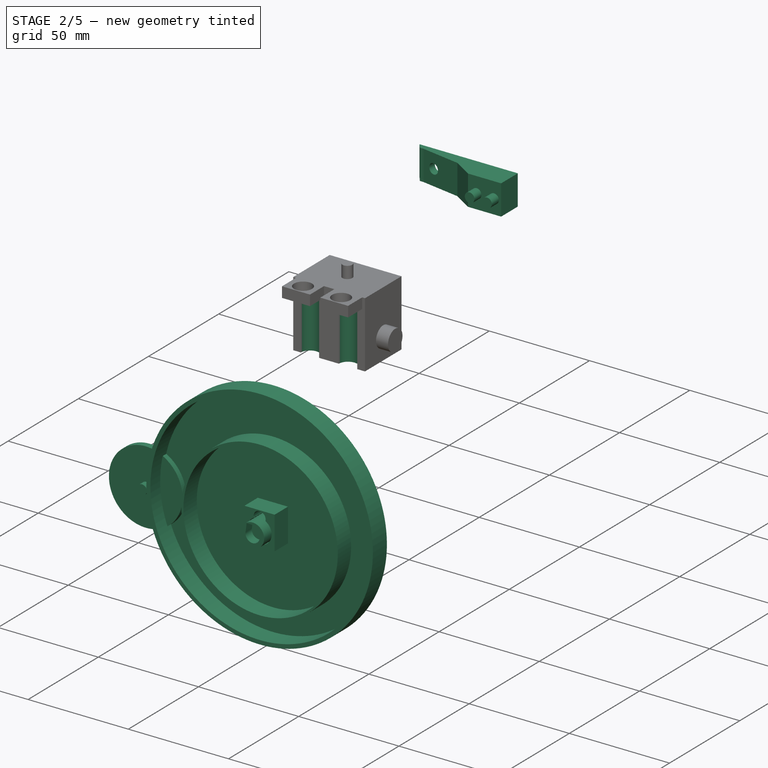
[diagram: stage 2 of 5 — iso view after this stage's code; geometry added in this stage tinted green]
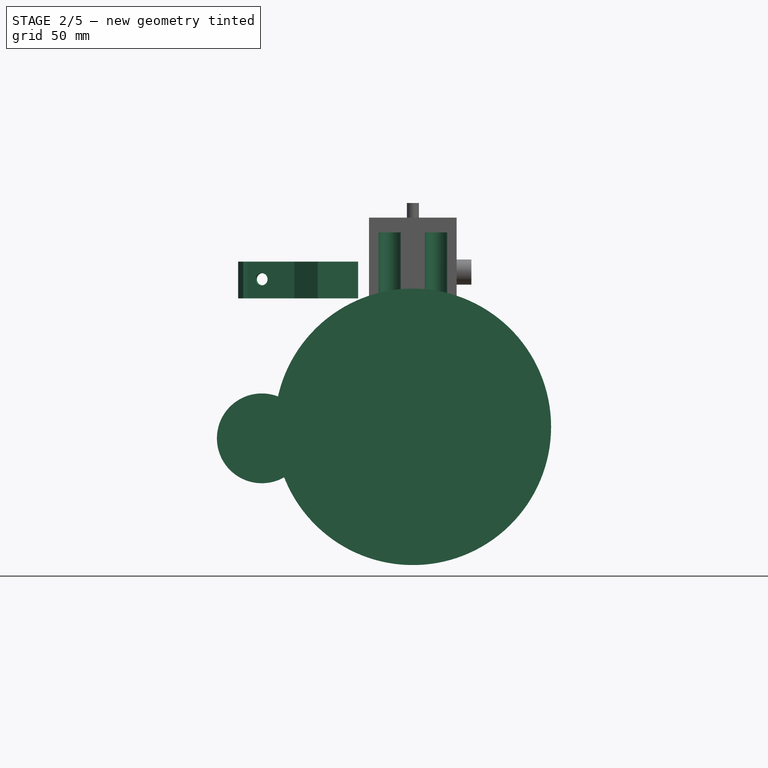
[diagram: stage 2 of 5 — front view after this stage's code; geometry added in this stage tinted green]
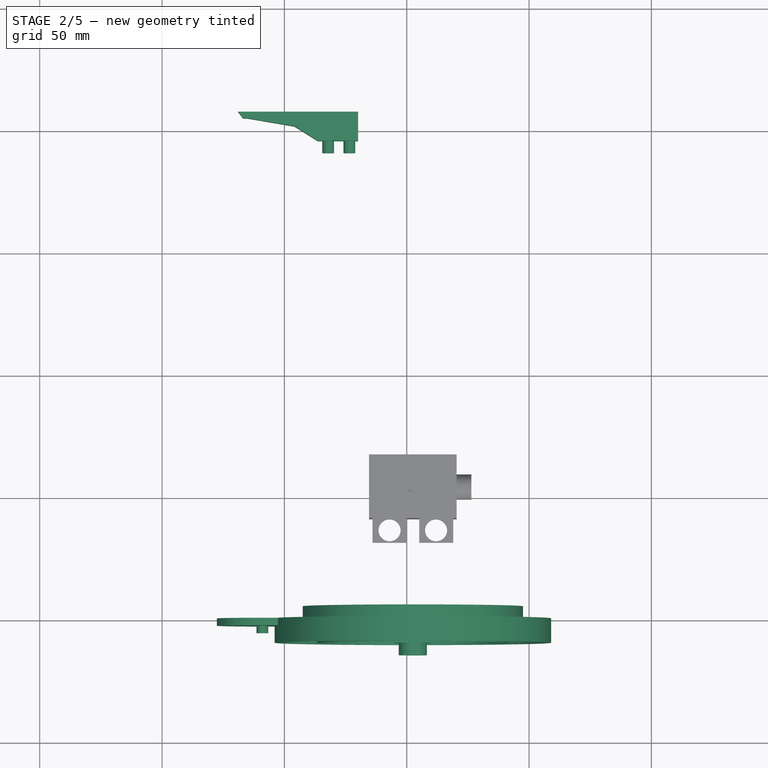
[diagram: stage 2 of 5 — top view after this stage's code; geometry added in this stage tinted green]
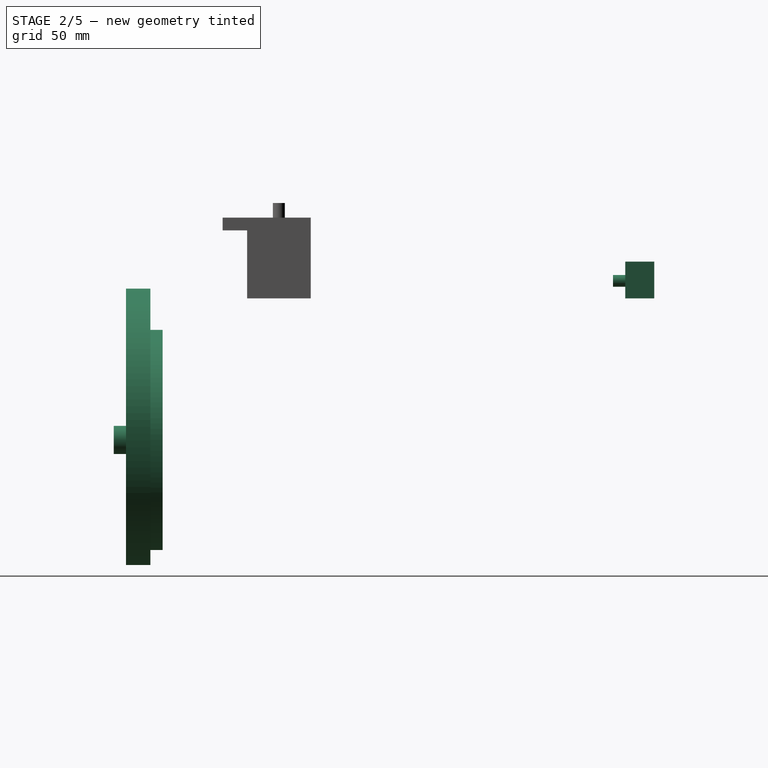
[diagram: stage 2 of 5 — right view after this stage's code; geometry added in this stage tinted green]
FEATURE [Sketcher::SketchObject] Sketch080
  MapMode = 5
  Placement = pos=(0,-10,1.33e-14) rot=(1,0,0;1.5708rad)
  Support = -> [Pad034]
  sketch-geometry (6):
    g0: ArcOfCircle CenterX=52.4946 CenterY=-57.8867 CenterZ=0 NormalX=0 NormalY=0 NormalZ=1 AngleXU=0 Radius=6 StartAngle=2.07616 EndAngle=7.34862
    g1: ArcOfCircle CenterX=52.4946 CenterY=-51.8867 CenterZ=0 NormalX=0 NormalY=0 NormalZ=1 AngleXU=0 Radius=3 StartAngle=6.03051 EndAngle=9.67746
    g2: LineSegment [constr] StartX=46.4946 StartY=-48.8867 StartZ=0 EndX=58.4946 EndY=-48.8867 EndZ=0
    g3: LineSegment [constr] StartX=58.4946 StartY=-48.8867 StartZ=0 EndX=58.4946 EndY=-63.8867 EndZ=0
    g4: LineSegment [constr] StartX=58.4946 StartY=-63.8867 StartZ=0 EndX=46.4946 EndY=-63.8867 EndZ=0
    g5: LineSegment [constr] StartX=46.4946 StartY=-63.8867 StartZ=0 EndX=46.4946 EndY=-48.8867 EndZ=0
  constraints (18):
    c: DistanceY(g0,g1) = 6
    c: Diameter(g0) = 12
    c: Diameter(g1) = 6
    c: Coincident(g2,g3)
    c: Coincident(g3,g4)
    c: Coincident(g4,g5)
    c: Coincident(g5,g2)
    c: Horizontal(g2)
    c: Horizontal(g4)
    c: Vertical(g3)
    c: Vertical(g5)
    c: Tangent(g0,g3)
    c: Tangent(g0,g5)
    c: Tangent(g1,g2)
    c: Tangent(g0,g4)
    c: PointOnObject(g0,g1)
    c: Coincident(g1,g0)
    c: Coincident(g1,g0)
FEATURE [PartDesign::Pocket] Pocket037
  BaseFeature = -> Pad034
  Length = 6
  Length2 = 100
  Placement = pos=(0,0,0) rot=(1,0,0;1.5708rad)
  Profile = -> Sketch080
  Type = 0
FEATURE [Sketcher::SketchObject] Sketch081
  MapMode = 5
  Placement = pos=(0,-4,6.5e-15) rot=(1,0,0;1.5708rad)
  Support = -> [Pocket037]
  sketch-geometry (2):
    g0: Circle [constr] CenterX=52.5 CenterY=-57.86 CenterZ=0 NormalX=0 NormalY=0 NormalZ=1 AngleXU=0 Radius=6
    g1: Circle CenterX=52.5 CenterY=-57.86 CenterZ=0 NormalX=0 NormalY=0 NormalZ=1 AngleXU=0 Radius=2.355
  constraints (6):
    c: Radius(g0) = 6
    c: DistanceX(g-1,g0) = 52.5
    c: DistanceY(g0,g-1) = 57.86
    c: Diameter(g1) = 4.71
    c: DistanceX(g-1,g1) = 52.5
    c: DistanceY(g1,g-1) = 57.86
FEATURE [PartDesign::Pocket] Pocket038
  BaseFeature = -> Pocket037
  Length = 6
  Length2 = 100
  Placement = pos=(0,0,0) rot=(1,0,0;1.5708rad)
  Profile = -> Sketch081
  Type = 0
FEATURE [Sketcher::SketchObject] Sketch082
  MapMode = 5
  Placement = pos=(0,-1e-16,0) rot=(-1,0,0;1.5708rad)
  Support = -> [Pocket038]
  sketch-geometry (1):
    g0: Circle CenterX=52.5 CenterY=57.8626 CenterZ=0 NormalX=0 NormalY=0 NormalZ=1 AngleXU=0 Radius=6
  constraints (2):
    c: DistanceX(g-1,g0) = 52.5
    c: Diameter(g0) = 12
FEATURE [Sketcher::SketchObject] Sketch086
  MapMode = 5
  Placement = pos=(0,0,0) rot=(1,0,0;1.5708rad)
  Support = -> [XZ_Plane011]
  sketch-geometry (1):
    g0: Circle CenterX=52.5 CenterY=-57.86 CenterZ=0 NormalX=0 NormalY=0 NormalZ=1 AngleXU=0 Radius=5.75
  constraints (3):
    c: Diameter(g0) = 11.5
    c: DistanceX(g-1,g0) = 52.5
    c: DistanceY(g0,g-1) = 57.86
FEATURE [PartDesign::Pad] Pad036
  Length = 15
  Length2 = 100
  Placement = pos=(0,0,0) rot=(1,0,0;1.5708rad)
  Profile = -> Sketch086
  Type = 0
FEATURE [Sketcher::SketchObject] Sketch087
  MapMode = 5
  Placement = pos=(0,-1e-16,0) rot=(-1,0,0;1.5708rad)
  Support = -> [Pad036]
  sketch-geometry (1):
    g0: Circle CenterX=52.5 CenterY=57.86 CenterZ=0 NormalX=0 NormalY=0 NormalZ=1 AngleXU=0 Radius=39
  constraints (3):
    c: DistanceX(g-1,g0) = 52.5
    c: DistanceY(g-1,g0) = 57.86
    c: Radius(g0) = 39
FEATURE [PartDesign::Pad] Pad037
  BaseFeature = -> Pad036
  Length = 3
  Length2 = 100
  Placement = pos=(0,0,0) rot=(1,0,0;1.5708rad)
  Profile = -> Sketch087
  Type = 0
FEATURE [Sketcher::SketchObject] Sketch089
  MapMode = 5
  Placement = pos=(0,3,-6e-15) rot=(1,0,0;1.5708rad)
  sketch-geometry (1):
    g0: Circle [constr] CenterX=52.5 CenterY=-57.86 CenterZ=0 NormalX=0 NormalY=0 NormalZ=1 AngleXU=0 Radius=40
  constraints (3):
    c: DistanceX(g-1,g0) = 52.5
    c: DistanceY(g0,g-1) = 57.86
    c: Radius(g0) = 40
FEATURE [Sketcher::SketchObject] Sketch090
  MapMode = 5
  Placement = pos=(0,0,0) rot=(1,0,0;1.5708rad)
  sketch-geometry (2):
    g0: Circle CenterX=52.5 CenterY=-57.86 CenterZ=0 NormalX=0 NormalY=0 NormalZ=1 AngleXU=0 Radius=39
    g1: Circle CenterX=52.5 CenterY=-57.86 CenterZ=0 NormalX=0 NormalY=0 NormalZ=1 AngleXU=0 Radius=38
  constraints (6):
    c: DistanceX(g-1,g0) = 52.5
    c: DistanceY(g0,g-1) = 57.86
    c: Radius(g0) = 39
    c: DistanceX(g-1,g1) = 52.5
    c: DistanceY(g1,g-1) = 57.86
    c: Radius(g1) = 38
FEATURE [PartDesign::Pad] Pad040
  BaseFeature = -> Pad037
  Length = 10
  Length2 = 100
  Placement = pos=(0,0,0) rot=(1,0,0;1.5708rad)
  Profile = -> Sketch090
  Type = 0
FEATURE [Sketcher::SketchObject] Sketch091
  MapMode = 5
  Placement = pos=(0,2e-16,0) rot=(1,0,0;1.5708rad)
  Support = -> [Pad040]
  sketch-geometry (6):
    g0: ArcOfCircle CenterX=52.5 CenterY=-57.86 CenterZ=0 NormalX=0 NormalY=0 NormalZ=1 AngleXU=0 Radius=18 StartAngle=2.74369 EndAngle=6.68109
    g1: ArcOfCircle CenterX=52.5 CenterY=-57.86 CenterZ=0 NormalX=0 NormalY=0 NormalZ=1 AngleXU=0 Radius=7 StartAngle=2.9612 EndAngle=6.4148
    g2: LineSegment StartX=69.0937 StartY=-50.8852 StartZ=0 EndX=59.4395 EndY=-50.8852 EndZ=0
    g3: LineSegment StartX=45.6136 StartY=-50.8852 StartZ=0 EndX=35.9063 EndY=-50.8852 EndZ=0
    g4: LineSegment StartX=59.4395 StartY=-50.8852 StartZ=0 EndX=59.4395 EndY=-56.9413 EndZ=0
    g5: LineSegment StartX=45.6136 StartY=-56.6041 StartZ=0 EndX=45.6136 EndY=-50.8852 EndZ=0
  constraints (16):
    c: DistanceX(g-1,g0) = 52.5
    c: DistanceY(g0,g-1) = 57.86
    c: Radius(g0) = 18
    c: DistanceX(g-1,g1) = 52.5
    c: DistanceY(g1,g-1) = 57.86
    c: Radius(g1) = 7
    c: Horizontal(g2)
    c: Coincident(g3,g0)
    c: Coincident(g2,g0)
    c: Tangent(g2,g3)
    c: Vertical(g4)
    c: Vertical(g5)
    c: Coincident(g4,g2)
    c: Coincident(g5,g3)
    c: Coincident(g1,g4)
    c: Coincident(g1,g5)
FEATURE [PartDesign::Pocket] Pocket042
  BaseFeature = -> Pad040
  Length = 5
  Length2 = 100
  Placement = pos=(0,0,0) rot=(1,0,0;1.5708rad)
  Profile = -> Sketch091
  Type = 0
FEATURE [Sketcher::SketchObject] Sketch092
  MapMode = 5
  Placement = pos=(0,3,-2.7e-15) rot=(-1,0,0;1.5708rad)
  Support = -> [Pocket042]
  sketch-geometry (14):
    g0: Circle [constr] CenterX=52.5 CenterY=57.86 CenterZ=0 NormalX=0 NormalY=0 NormalZ=1 AngleXU=0 Radius=25.9151
    g1: Circle [constr] CenterX=52.5 CenterY=57.86 CenterZ=0 NormalX=0 NormalY=0 NormalZ=1 AngleXU=0 Radius=34.5863
    g2: LineSegment [constr] StartX=52.5 StartY=23.2737 StartZ=0 EndX=52.5 EndY=31.9449 EndZ=0
    g3: LineSegment [constr] StartX=52.5 StartY=92.4463 StartZ=0 EndX=52.5 EndY=83.7751 EndZ=0
    g4: LineSegment [constr] StartX=17.9137 StartY=57.86 StartZ=0 EndX=26.5849 EndY=57.86 EndZ=0
    g5: LineSegment [constr] StartX=87.0863 StartY=57.86 StartZ=0 EndX=78.4151 EndY=57.86 EndZ=0
    g6: Circle CenterX=17.9137 CenterY=57.86 CenterZ=0 NormalX=0 NormalY=0 NormalZ=1 AngleXU=0 Radius=2.5
    g7: Circle CenterX=26.5849 CenterY=57.86 CenterZ=0 NormalX=0 NormalY=0 NormalZ=1 AngleXU=0 Radius=2.5
    g8: Circle CenterX=52.5 CenterY=92.4463 CenterZ=0 NormalX=0 NormalY=0 NormalZ=1 AngleXU=0 Radius=2.5
    g9: Circle CenterX=52.5 CenterY=83.7751 CenterZ=0 NormalX=0 NormalY=0 NormalZ=1 AngleXU=0 Radius=2.5
    g10: Circle CenterX=78.4151 CenterY=57.86 CenterZ=0 NormalX=0 NormalY=0 NormalZ=1 AngleXU=0 Radius=2.5
    g11: Circle CenterX=87.0863 CenterY=57.86 CenterZ=0 NormalX=0 NormalY=0 NormalZ=1 AngleXU=0 Radius=2.5
    g12: Circle CenterX=52.5 CenterY=31.9449 CenterZ=0 NormalX=0 NormalY=0 NormalZ=1 AngleXU=0 Radius=2.5
    g13: Circle CenterX=52.5 CenterY=23.2737 CenterZ=0 NormalX=0 NormalY=0 NormalZ=1 AngleXU=0 Radius=2.5
  constraints (35):
    c: DistanceX(g-1,g1) = 52.5
    c: DistanceY(g-1,g1) = 57.86
    c: Coincident(g1,g0)
    c: Horizontal(g4)
    c: Horizontal(g5)
    c: Vertical(g3)
    c: Vertical(g2)
    c: Diameter(g6) = 5
    c: PointOnObject(g4,g1)
    c: PointOnObject(g4,g0)
    c: PointOnObject(g5,g0)
    c: PointOnObject(g5,g1)
    c: PointOnObject(g2,g0)
    c: PointOnObject(g2,g1)
    c: PointOnObject(g3,g1)
    c: PointOnObject(g3,g0)
    c: DistanceY(g4,g0) = 0
    c: DistanceY(g0,g5) = 0
    c: DistanceX(g3,g0) = 0
    c: DistanceX(g2,g0) = 0
    c: Coincident(g6,g4)
    c: Equal(g6,g7) = 5
    c: Equal(g6,g8) = 5
    c: Equal(g6,g9) = 5
    c: Equal(g6,g10) = 5
    c: Equal(g6,g11) = 5
    c: Equal(g6,g12) = 5
    c: Coincident(g4,g7)
    c: Coincident(g9,g3)
    c: Coincident(g3,g8)
    c: Coincident(g5,g10)
    c: Coincident(g5,g11)
    c: Coincident(g2,g12)
    c: Equal(g6,g13) = 5
    c: Coincident(g2,g13)
FEATURE [PartDesign::Pocket] Pocket043
  BaseFeature = -> Pocket042
  Length = 5
  Length2 = 100
  Placement = pos=(0,0,0) rot=(1,0,0;1.5708rad)
  Profile = -> Sketch092
  Type = 0
FEATURE [Sketcher::SketchObject] Sketch093
  MapMode = 5
  Placement = pos=(0,-15,6.6e-15) rot=(1,0,0;1.5708rad)
  Support = -> [Pocket043]
  sketch-geometry (4):
    g0: ArcOfCircle CenterX=52.5 CenterY=-57.86 CenterZ=0 NormalX=0 NormalY=0 NormalZ=1 AngleXU=0 Radius=3.55 StartAngle=2.90769 EndAngle=6.5171
    g1: LineSegment StartX=49.5 StartY=-53.1789 StartZ=0 EndX=55.5 EndY=-53.1789 EndZ=0
    g2: LineSegment StartX=55.5 StartY=-53.1789 StartZ=0 EndX=55.9533 EndY=-57.0372 EndZ=0
    g3: LineSegment StartX=49.0467 StartY=-57.0372 StartZ=0 EndX=49.5 EndY=-53.1789 EndZ=0
  constraints (10):
    c: DistanceX(g-1,g0) = 52.5
    c: DistanceY(g0,g-1) = 57.86
    c: Diameter(g0) = 7.1
    c: Coincident(g1,g2)
    c: Coincident(g3,g1)
    c: Horizontal(g1)
    c: DistanceX(g1,g0) = 3
    c: DistanceX(g0,g1) = 3
    c: Coincident(g0,g3)
    c: Coincident(g0,g2)
FEATURE [PartDesign::Pocket] Pocket044
  BaseFeature = -> Pocket043
  Length = 4.5
  Length2 = 100
  Placement = pos=(0,0,0) rot=(1,0,0;1.5708rad)
  Profile = -> Sketch093
  Type = 0
FEATURE [PartDesign::Body] Body011  label="Pie"
  Group = -> [Sketch086,Pad036,Sketch087,Pad037,Sketch089,Sketch090,Pad040,Sketch091,Pocket042,Sketch092,Pocket043,Sketch093,Pocket044]
  Origin = -> Origin011
  Placement = pos=(0,189,0) rot=(0,0,1;0rad)
  Tip = -> Pocket044
FEATURE [Sketcher::SketchObject] Sketch094
  MapMode = 5
  Support = -> [XY_Plane012]
  sketch-geometry (9):
    g0: LineSegment StartX=30.1223 StartY=194.043 StartZ=0 EndX=13.5808 EndY=194.043 EndZ=0
    g1: LineSegment StartX=13.5808 StartY=194.043 StartZ=0 EndX=4.14407 EndY=199.978 EndZ=0
    g2: LineSegment StartX=4.14407 StartY=199.978 StartZ=0 EndX=-15.0172 EndY=203.245 EndZ=0
    g3: LineSegment StartX=-15.0172 StartY=203.245 StartZ=0 EndX=-16.8541 EndY=203.245 EndZ=0
    g4: LineSegment StartX=-16.8541 StartY=203.245 StartZ=0 EndX=-18.8985 EndY=205.918 EndZ=0
    g5: LineSegment StartX=-18.8985 StartY=205.918 StartZ=0 EndX=4.12824 EndY=205.918 EndZ=0
    g6: LineSegment StartX=4.12824 StartY=205.918 StartZ=0 EndX=30.1223 EndY=205.918 EndZ=0
    g7: LineSegment StartX=30.1223 StartY=205.918 StartZ=0 EndX=30.1223 EndY=199.856 EndZ=0
    g8: LineSegment StartX=30.1223 StartY=199.856 StartZ=0 EndX=30.1223 EndY=194.043 EndZ=0
  constraints (14):
    c: Coincident(g0,g1)
    c: Coincident(g1,g2)
    c: Coincident(g2,g3)
    c: Coincident(g3,g4)
    c: Coincident(g4,g5)
    c: Coincident(g5,g6)
    c: Coincident(g6,g7)
    c: Coincident(g7,g8)
    c: Coincident(g8,g0)
    c: Vertical(g8)
    c: Vertical(g7)
    c: Horizontal(g6)
    c: Horizontal(g5)
    c: Horizontal(g3)
FEATURE [PartDesign::Pad] Pad041
  Length = 15
  Length2 = 100
  Profile = -> Sketch094
  Type = 0
FEATURE [Sketcher::SketchObject] Sketch095
  MapMode = 5
  Placement = pos=(33.2472,195.016,0) rot=(0.992914,-0.084032,-0.084032;1.57791rad)
  Support = -> [Pad041]
  sketch-geometry (1):
    g0: Circle CenterX=-43.1934 CenterY=7.82443 CenterZ=0 NormalX=0 NormalY=0 NormalZ=1 AngleXU=0 Radius=2.5
  constraints (1):
    c: Diameter(g0) = 5
FEATURE [PartDesign::Pocket] Pocket045
  BaseFeature = -> Pad041
  Length = 5
  Length2 = 100
  Profile = -> Sketch095
  Type = 0
FEATURE [Sketcher::SketchObject] Sketch096
  MapMode = 5
  Placement = pos=(-0.00524361,194.042,0) rot=(1,1.4e-05,1.4e-05;1.5708rad)
  Support = -> [Pocket045]
  sketch-geometry (2):
    g0: Circle CenterX=17.902 CenterY=7.15843 CenterZ=0 NormalX=0 NormalY=0 NormalZ=1 AngleXU=0 Radius=2.4
    g1: Circle CenterX=26.5802 CenterY=7.15843 CenterZ=0 NormalX=0 NormalY=0 NormalZ=1 AngleXU=0 Radius=2.4
  constraints (2):
    c: Diameter(g0) = 4.8
    c: Equal(g0,g1) = 4.7
FEATURE [PartDesign::Pad] Pad042
  BaseFeature = -> Pocket045
  Length = 5
  Length2 = 100
  Profile = -> Sketch096
  Type = 0
FEATURE [PartDesign::Body] Body012  label="pata"
  Group = -> [Sketch094,Pad041,Sketch095,Pocket045,Sketch096,Pad042]
  Origin = -> Origin012
  Placement = pos=(0,0,-65) rot=(0,0,1;0rad)
  Tip = -> Pad042
FEATURE [Sketcher::SketchObject] Sketch097
  MapMode = 5
  Placement = pos=(0,0,0) rot=(1,0,0;1.5708rad)
  Support = -> [XZ_Plane013]
  sketch-geometry (1):
    g0: Circle CenterX=-9.22551 CenterY=-57.2001 CenterZ=0 NormalX=0 NormalY=0 NormalZ=1 AngleXU=0 Radius=18.3506
FEATURE [PartDesign::Pad] Pad043
  Length = 3
  Length2 = 100
  Placement = pos=(0,0,0) rot=(1,0,0;1.5708rad)
  Profile = -> Sketch097
  Type = 0
FEATURE [Sketcher::SketchObject] Sketch098
  MapMode = 5
  Placement = pos=(0,-1e-16,0) rot=(-1,0,0;1.5708rad)
  Support = -> [Pad043]
  sketch-geometry (1):
    g0: Circle CenterX=-8.97662 CenterY=57.1652 CenterZ=0 NormalX=0 NormalY=0 NormalZ=1 AngleXU=0 Radius=2.4
  constraints (1):
    c: Diameter(g0) = 4.8
FEATURE [PartDesign::Pad] Pad044
  BaseFeature = -> Pad043
  Length = 6
  Length2 = 100
  Placement = pos=(0,0,0) rot=(1,0,0;1.5708rad)
  Profile = -> Sketch098
  Reversed = true
  Type = 0
FEATURE [Sketcher::SketchObject] Sketch102
  MapMode = 5
  Placement = pos=(0,0,0) rot=(1,0,0;3.14159rad)
  Support = -> [Pocket047]
  sketch-geometry (8):
    g0: ArcOfCircle CenterX=42.9789 CenterY=-33.45 CenterZ=0 NormalX=0 NormalY=0 NormalZ=1 AngleXU=0 Radius=4.58 StartAngle=-9e-16 EndAngle=3.14159
    g1: ArcOfCircle CenterX=42.9789 CenterY=-39.45 CenterZ=0 NormalX=0 NormalY=0 NormalZ=1 AngleXU=0 Radius=4.58 StartAngle=3.14159 EndAngle=6.28319
    g2: LineSegment StartX=38.3989 StartY=-33.45 StartZ=0 EndX=38.3989 EndY=-39.45 EndZ=0
    g3: LineSegment StartX=47.5589 StartY=-33.45 StartZ=0 EndX=47.5589 EndY=-39.45 EndZ=0
    g4: ArcOfCircle CenterX=61.9566 CenterY=-33.45 CenterZ=0 NormalX=0 NormalY=0 NormalZ=1 AngleXU=0 Radius=4.58 StartAngle=-9e-16 EndAngle=3.14159
    g5: ArcOfCircle CenterX=61.9566 CenterY=-39.45 CenterZ=0 NormalX=0 NormalY=0 NormalZ=1 AngleXU=0 Radius=4.58 StartAngle=3.14159 EndAngle=6.28319
    g6: LineSegment StartX=57.3766 StartY=-33.45 StartZ=0 EndX=57.3766 EndY=-39.45 EndZ=0
    g7: LineSegment StartX=66.5366 StartY=-33.45 StartZ=0 EndX=66.5366 EndY=-39.45 EndZ=0
  constraints (18):
    c: Tangent(g0,g3) = 1.5708
    c: Tangent(g0,g2) = -1.5708
    c: Tangent(g2,g1) = -1.5708
    c: Tangent(g3,g1) = 1.5708
    c: Vertical(g2)
    c: Equal(g0,g1)
    c: Radius(g0) = 4.58
    c: Tangent(g4,g7) = 1.5708
    c: Tangent(g4,g6) = -1.5708
    c: Tangent(g6,g5) = -1.5708
    c: Tangent(g7,g5) = 1.5708
    c: Vertical(g6)
    c: Equal(g4,g5)
    c: Equal(g0,g4) = 4.58
    c: DistanceY(g0,g-1) = 33.45
    c: DistanceY(g4,g-1) = 33.45
    c: DistanceY(g1,g0) = 6
    c: DistanceY(g5,g4) = 6
FEATURE [PartDesign::Pocket] Pocket048
  BaseFeature = -> Pocket047
  Length = 27
  Length2 = 100
  Profile = -> Sketch102
  Type = 0
FEATURE [PartDesign::Body] Body002  label="cajetinServoTorre"
  Group = -> [Sketch007,Pad002,Sketch008,Pad003,Sketch009,Pad004,Sketch010,Pocket,Sketch015,Sketch016,Pocket004,Pocket005,Sketch018,Pocket006,Sketch019,Sketch020,Pocket007,Sketch021,Pocket008,Pocket036,Sketch099,Pad045,Sketch100,Pocket046,Sketch101,Pocket047,Sketch102,Pocket048]
  Origin = -> Origin002
  Placement = pos=(0,0,-55) rot=(0,0,1;0rad)
  Tip = -> Pocket048
FEATURE [PartDesign::Body] Body008  label="Base_EjeFijo"
  Group = -> [Sketch046,Pad019,Sketch047,Pocket020,Sketch048,Sketch049,Sketch054,Pocket022,Sketch055,Pocket023,Sketch056,Pocket024,Sketch058,Pocket025,Sketch059,Pocket026,Pad028,Sketch061,Sketch062,Pocket027,Sketch063,Sketch064,Pocket031,Sketch065,Pocket032,Sketch069,Sketch070,Pocket033,Pocket021,Pocket030,Pad029]
  Origin = -> Origin008
  Placement = pos=(0,155,0) rot=(0,0,1;0rad)
  Tip = -> Pocket033
FEATURE [PartDesign::Pocket] Pocket021
  BaseFeature = -> Pocket033
  Length = 8
  Length2 = 0
  Placement = pos=(0,0,0) rot=(1,0,0;1.5708rad)
  Profile = -> Sketch049
  Reversed = true
  Type = 4
FEATURE [PartDesign::Pocket] Pocket030
  BaseFeature = -> Pocket021
  Length = 6
  Length2 = 100
  Placement = pos=(0,0,0) rot=(1,0,0;1.5708rad)
  Profile = -> Sketch065
  Type = 0
FEATURE [Sketcher::SketchObject] Sketch069
  MapMode = 5
  Placement = pos=(0,-40.5,9e-15) rot=(1,0,0;1.5708rad)
  Support = -> [Pocket030]
  sketch-geometry (8):
    g0: LineSegment StartX=45.0159 StartY=-58.6172 StartZ=0 EndX=49.0062 EndY=-58.6172 EndZ=0
    g1: LineSegment StartX=49.0062 StartY=-58.6172 StartZ=0 EndX=49.0062 EndY=-67.0167 EndZ=0
    g2: LineSegment StartX=49.0062 StartY=-67.0167 StartZ=0 EndX=45.0159 EndY=-67.0167 EndZ=0
    g3: LineSegment StartX=45.0159 StartY=-67.0167 StartZ=0 EndX=45.0159 EndY=-58.6172 EndZ=0
    g4: LineSegment StartX=56.0489 StartY=-58.6365 StartZ=0 EndX=59.9787 EndY=-58.6365 EndZ=0
    g5: LineSegment StartX=59.9787 StartY=-58.6365 StartZ=0 EndX=59.9787 EndY=-67.0028 EndZ=0
    g6: LineSegment StartX=59.9787 StartY=-67.0028 StartZ=0 EndX=56.0489 EndY=-67.0028 EndZ=0
    g7: LineSegment StartX=56.0489 StartY=-67.0028 StartZ=0 EndX=56.0489 EndY=-58.6365 EndZ=0
  constraints (16):
    c: Coincident(g0,g1)
    c: Coincident(g1,g2)
    c: Coincident(g2,g3)
    c: Coincident(g3,g0)
    c: Horizontal(g0)
    c: Horizontal(g2)
    c: Vertical(g1)
    c: Vertical(g3)
    c: Coincident(g4,g5)
    c: Coincident(g5,g6)
    c: Coincident(g6,g7)
    c: Coincident(g7,g4)
    c: Horizontal(g4)
    c: Horizontal(g6)
    c: Vertical(g5)
    c: Vertical(g7)
FEATURE [PartDesign::Pad] Pad029
  BaseFeature = -> Pocket030
  Length = 4.5
  Length2 = 100
  Placement = pos=(0,0,0) rot=(1,0,0;1.5708rad)
  Profile = -> Sketch069
  Type = 0
FEATURE [Sketcher::SketchObject] Sketch070
  MapMode = 5
  Placement = pos=(0,-2.533e-13,-41.1) rot=(1,0,0;3.14159rad)
  Support = -> [Pad029]
  sketch-geometry (4):
    g0: LineSegment StartX=50.0518 StartY=22.1084 StartZ=0 EndX=55.2007 EndY=22.1084 EndZ=0
    g1: LineSegment StartX=55.2007 StartY=22.1084 StartZ=0 EndX=55.2007 EndY=13.59 EndZ=0
    g2: LineSegment StartX=55.2007 StartY=13.59 StartZ=0 EndX=50.0518 EndY=13.59 EndZ=0
    g3: LineSegment StartX=50.0518 StartY=13.59 StartZ=0 EndX=50.0518 EndY=22.1084 EndZ=0
  constraints (8):
    c: Coincident(g0,g1)
    c: Coincident(g1,g2)
    c: Coincident(g2,g3)
    c: Coincident(g3,g0)
    c: Horizontal(g0)
    c: Horizontal(g2)
    c: Vertical(g1)
    c: Vertical(g3)
FEATURE [PartDesign::Pocket] Pocket033
  BaseFeature = -> Pocket032
  Length = 5
  Length2 = 100
  Placement = pos=(0,0,0) rot=(1,0,0;1.5708rad)
  Profile = -> Sketch070
  Type = 0
FEATURE [PartDesign::Body] Body010  label="Base_EjeFijoInferior"
  Group = -> [Sketch075,Pad033,Sketch076,Pocket035,Sketch078,Pad034,Sketch080,Pocket037,Sketch081,Pocket038,Sketch082,Sketch083,Pad035,Pocket039,Sketch084,Pocket040,Sketch085,Pocket041]
  Origin = -> Origin010
  Placement = pos=(0,169,0) rot=(0,0,1;0rad)
  Tip = -> Pocket041
FEATURE [PartDesign::Pocket] Pocket039
  BaseFeature = -> Pad035
  Length = 4
  Length2 = 5
  Placement = pos=(0,0,0) rot=(1,0,0;1.5708rad)
  Profile = -> Sketch082
  Type = 4
FEATURE [Sketcher::SketchObject] Sketch083
  MapMode = 5
  Placement = pos=(0,-1e-16,0) rot=(-1,0,0;1.5708rad)
  Support = -> [Pocket039]
  sketch-geometry (1):
    g0: Circle CenterX=52.5 CenterY=57.8364 CenterZ=0 NormalX=0 NormalY=0 NormalZ=1 AngleXU=0 Radius=45
  constraints (2):
    c: DistanceX(g-1,g0) = 52.5
    c: Diameter(g0) = 90
FEATURE [PartDesign::Pad] Pad035
  BaseFeature = -> Pocket038
  Length = 5
  Length2 = 100
  Placement = pos=(0,0,0) rot=(1,0,0;1.5708rad)
  Profile = -> Sketch083
  Type = 0
FEATURE [Sketcher::SketchObject] Sketch084  label="ranura-10m"
  MapMode = 5
  Placement = pos=(0,5,-4.5e-15) rot=(-1,0,0;1.5708rad)
  Support = -> [Pocket039]
  sketch-geometry (2):
    g0: Circle CenterX=52.5 CenterY=57.87 CenterZ=0 NormalX=0 NormalY=0 NormalZ=1 AngleXU=0 Radius=40
    g1: Circle CenterX=52.5 CenterY=57.87 CenterZ=0 NormalX=0 NormalY=0 NormalZ=1 AngleXU=0 Radius=37.5
  constraints (6):
    c: DistanceX(g-1,g0) = 52.5
    c: Diameter(g0) = 80
    c: DistanceY(g-1,g0) = 57.87
    c: DistanceX(g-1,g1) = 52.5
    c: DistanceY(g-1,g1) = 57.87
    c: Diameter(g1) = 75
FEATURE [PartDesign::Pocket] Pocket040
  BaseFeature = -> Pocket039
  Length = 5
  Length2 = 100
  Placement = pos=(0,0,0) rot=(1,0,0;1.5708rad)
  Profile = -> Sketch084
  Type = 0
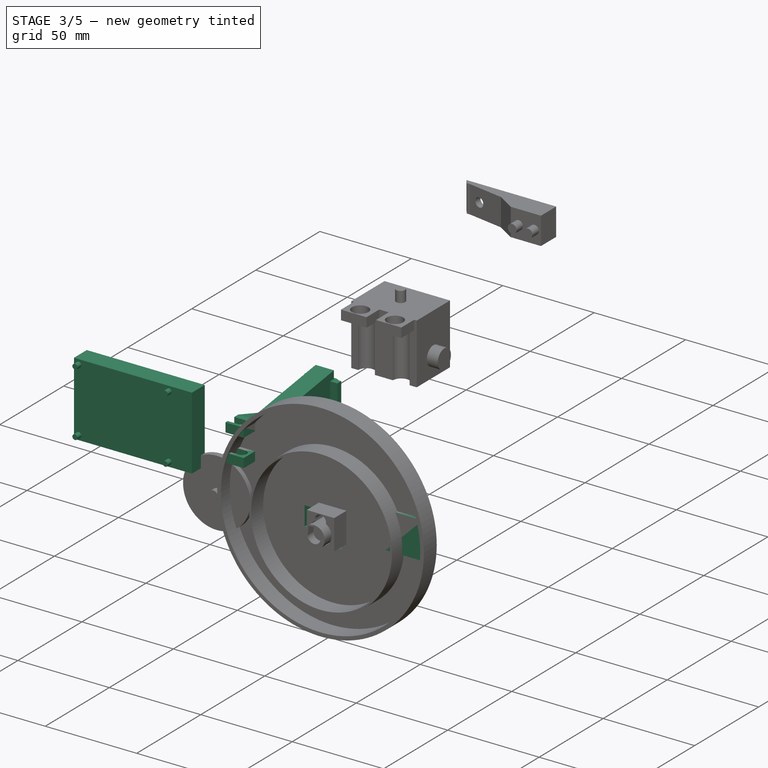
[diagram: stage 3 of 5 — iso view after this stage's code; geometry added in this stage tinted green]
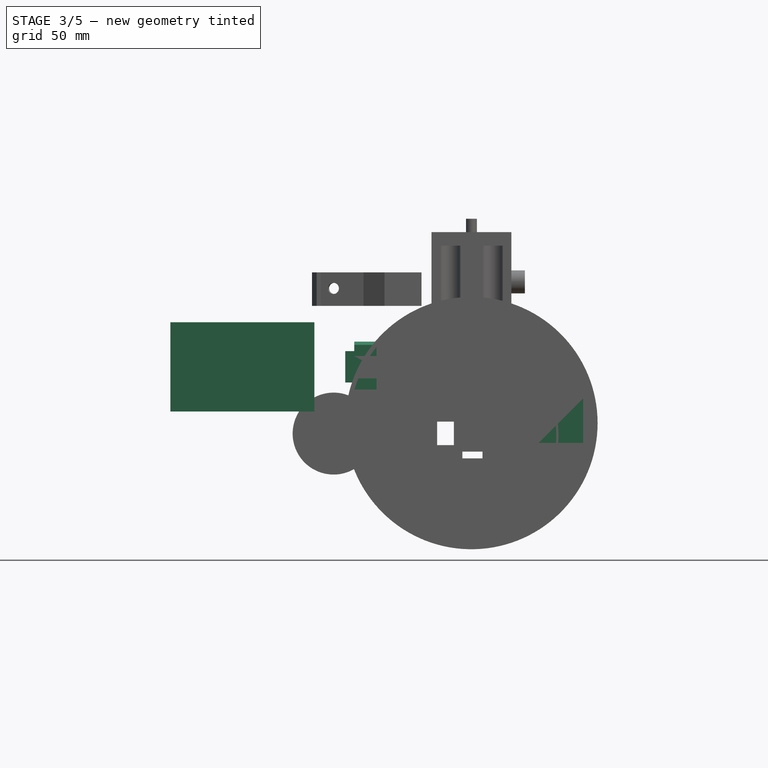
[diagram: stage 3 of 5 — front view after this stage's code; geometry added in this stage tinted green]
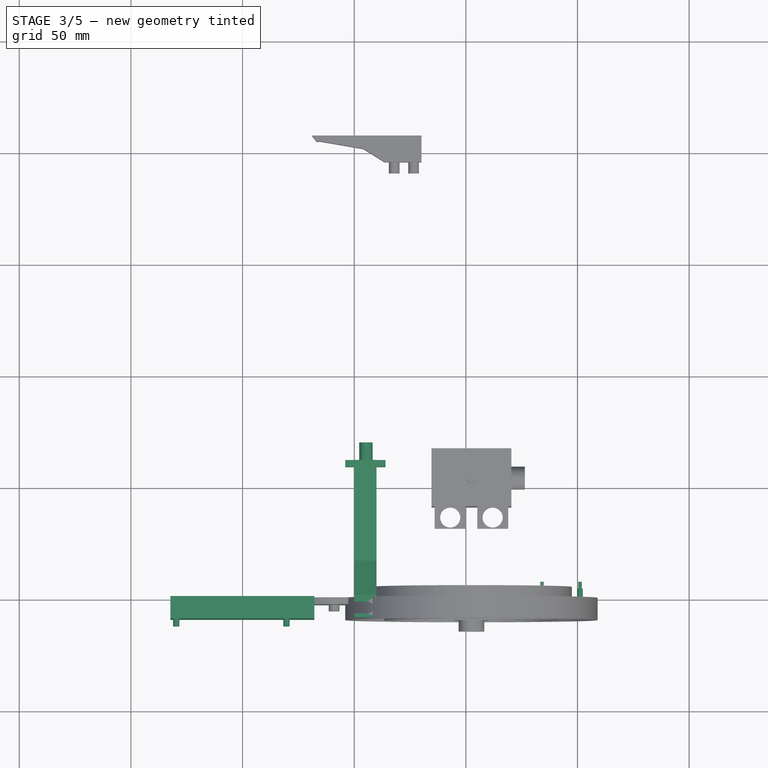
[diagram: stage 3 of 5 — top view after this stage's code; geometry added in this stage tinted green]
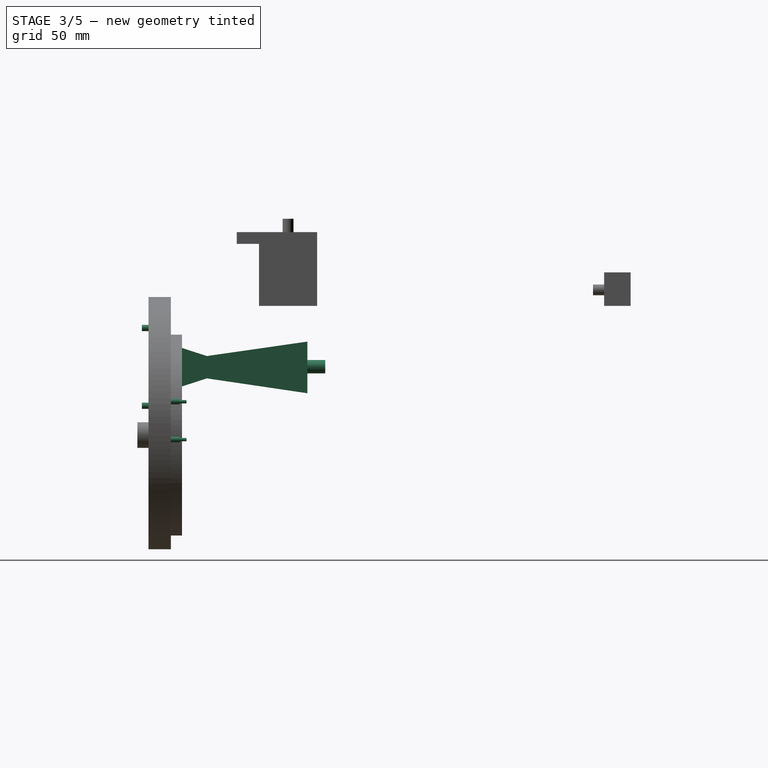
[diagram: stage 3 of 5 — right view after this stage's code; geometry added in this stage tinted green]
FEATURE [PartDesign::Body] Body005  label="Torre_soporte_002"
  Group = -> [Pad012,Sketch029,Pocket012,Sketch031,Pocket014]
  Origin = -> Origin005
  Placement = pos=(87,0,0) rot=(0,0,1;0rad)
  Tip = -> Pocket014
FEATURE [Sketcher::SketchObject] Sketch032
  MapMode = 5
  Placement = pos=(0,0,0) rot=(1,0,0;1.5708rad)
  Support = -> [XZ_Plane006]
  sketch-geometry (8):
    g0: LineSegment StartX=-17.82 StartY=-7.33 StartZ=0 EndX=-82.32 EndY=-7.33 EndZ=0
    g1: LineSegment StartX=-82.32 StartY=-7.33 StartZ=0 EndX=-82.32 EndY=-47.33 EndZ=0
    g2: LineSegment StartX=-82.32 StartY=-47.33 StartZ=0 EndX=-17.82 EndY=-47.33 EndZ=0
    g3: LineSegment StartX=-17.82 StartY=-47.33 StartZ=0 EndX=-17.82 EndY=-7.33 EndZ=0
    g4: LineSegment [constr] StartX=-82.32 StartY=-7.33 StartZ=0 EndX=-27.73 EndY=-7.33 EndZ=0
    g5: LineSegment [constr] StartX=-27.73 StartY=-7.33 StartZ=0 EndX=-27.73 EndY=-47.33 EndZ=0
    g6: LineSegment [constr] StartX=-27.73 StartY=-47.33 StartZ=0 EndX=-82.32 EndY=-47.33 EndZ=0
    g7: LineSegment [constr] StartX=-82.32 StartY=-47.33 StartZ=0 EndX=-82.32 EndY=-7.33 EndZ=0
  constraints (23):
    c: Coincident(g0,g1)
    c: Coincident(g1,g2)
    c: Coincident(g2,g3)
    c: Coincident(g3,g0)
    c: Horizontal(g0)
    c: Horizontal(g2)
    c: Vertical(g1)
    c: Vertical(g3)
    c: DistanceX(g0,g0) = 64.5  'sensorLluvia'
    c: DistanceY(g3,g3) = 40
    c: Coincident(g4,g5)
    c: Coincident(g5,g6)
    c: Coincident(g6,g7)
    c: Coincident(g7,g4)
    c: Horizontal(g4)
    c: Horizontal(g6)
    c: Vertical(g5)
    c: Vertical(g7)
    c: DistanceX(g4,g4) = 54.59  'areaSensor'
    c: DistanceY(g5,g5) = 40
    c: Coincident(g4,g0)
    c: DistanceX(g0,g-1) = 17.82
    c: DistanceY(g0,g-1) = 7.33
FEATURE [PartDesign::Pad] Pad013
  Length = 10
  Length2 = 100
  Placement = pos=(0,0,0) rot=(1,0,0;1.5708rad)
  Profile = -> Sketch032
  Type = 0
FEATURE [Sketcher::SketchObject] Sketch034
  MapMode = 5
  Placement = pos=(0,-10,4.4e-15) rot=(1,0,0;1.5708rad)
  Support = -> [Pad013]
  sketch-geometry (8):
    g0: LineSegment [constr] StartX=-82.29 StartY=-47.33 StartZ=0 EndX=-27.73 EndY=-47.33 EndZ=0
    g1: LineSegment [constr] StartX=-27.73 StartY=-47.33 StartZ=0 EndX=-27.73 EndY=-7.33 EndZ=0
    g2: LineSegment [constr] StartX=-27.73 StartY=-7.33 StartZ=0 EndX=-82.29 EndY=-7.33 EndZ=0
    g3: LineSegment [constr] StartX=-82.29 StartY=-7.33 StartZ=0 EndX=-82.29 EndY=-47.33 EndZ=0
    g4: Circle CenterX=-79.69 CenterY=-44.73 CenterZ=0 NormalX=0 NormalY=0 NormalZ=1 AngleXU=0 Radius=1.4
    g5: Circle CenterX=-79.69 CenterY=-9.93 CenterZ=0 NormalX=0 NormalY=0 NormalZ=1 AngleXU=0 Radius=1.4
    g6: Circle CenterX=-30.33 CenterY=-44.73 CenterZ=0 NormalX=0 NormalY=0 NormalZ=1 AngleXU=0 Radius=1.4
    g7: Circle CenterX=-30.33 CenterY=-9.93 CenterZ=0 NormalX=0 NormalY=0 NormalZ=1 AngleXU=0 Radius=1.4
  constraints (24):
    c: Coincident(g0,g1)
    c: Coincident(g1,g2)
    c: Coincident(g2,g3)
    c: Coincident(g3,g0)
    c: Horizontal(g0)
    c: Horizontal(g2)
    c: Vertical(g1)
    c: Vertical(g3)
    c: DistanceY(g3,g3) = 40
    c: DistanceX(g2,g2) = 54.56
    c: DistanceY(g2,g-1) = 7.33
    c: DistanceX(g1,g-1) = 27.73
    c: Diameter(g4) = 2.8
    c: Diameter(g5) = 2.8
    c: Diameter(g6) = 2.8
    c: DistanceY(g5,g2) = 2.6
    c: DistanceX(g2,g5) = 2.6
    c: Equal(g5,g7) = 3.03
    c: DistanceX(g7,g1) = 2.6
    c: DistanceY(g7,g1) = 2.6
    c: DistanceY(g0,g4) = 2.6
    c: DistanceX(g0,g4) = 2.6
    c: DistanceX(g6,g0) = 2.6
    c: DistanceY(g0,g6) = 2.6
FEATURE [PartDesign::Pad] Pad014
  BaseFeature = -> Pad013
  Length = 3
  Length2 = 100
  Placement = pos=(0,0,0) rot=(1,0,0;1.5708rad)
  Profile = -> Sketch034
  Type = 0
FEATURE [Sketcher::SketchObject] Sketch041
  MapMode = 5
  Placement = pos=(0,0,0) rot=(0.57735,0.57735,0.57735;2.0944rad)
  Support = -> [YZ_Plane007]
  sketch-geometry (13):
    g0: LineSegment StartX=-9.28232 StartY=-17.4698 StartZ=0 EndX=-9.28232 EndY=-22.4698 EndZ=0
    g1: LineSegment StartX=-9.28232 StartY=-22.4698 StartZ=0 EndX=0 EndY=-22.4698 EndZ=0
    g2: LineSegment StartX=0 StartY=-22.4698 StartZ=0 EndX=0 EndY=-32.4698 EndZ=0
    g3: LineSegment StartX=0 StartY=-32.4698 StartZ=0 EndX=-9.28232 EndY=-32.4698 EndZ=0
    g4: LineSegment StartX=-9.28232 StartY=-32.4698 StartZ=0 EndX=-9.28232 EndY=-37.4698 EndZ=0
    g5: LineSegment StartX=-9.28232 StartY=-37.4698 StartZ=0 EndX=0.718202 EndY=-37.4698 EndZ=0
    g6: LineSegment StartX=0.718202 StartY=-37.4698 StartZ=0 EndX=16.14 EndY=-32.4698 EndZ=0
    g7: LineSegment StartX=16.14 StartY=-32.4698 StartZ=0 EndX=61.14 EndY=-39.1286 EndZ=0
    g8: LineSegment StartX=61.14 StartY=-39.1286 StartZ=0 EndX=61.14 EndY=-15.9993 EndZ=0
    g9: LineSegment StartX=61.14 StartY=-15.9993 StartZ=0 EndX=16.14 EndY=-22.4698 EndZ=0
    g10: LineSegment StartX=16.14 StartY=-22.4698 StartZ=0 EndX=0.718202 EndY=-17.4698 EndZ=0
    g11: LineSegment StartX=0.718202 StartY=-17.4698 StartZ=0 EndX=-9.28232 EndY=-17.4698 EndZ=0
    g12: Circle [constr] CenterX=51.14 CenterY=-27.54 CenterZ=0 NormalX=0 NormalY=0 NormalZ=1 AngleXU=0 Radius=10
  constraints (34):
    c: Coincident(g1,g2)
    c: Coincident(g2,g3)
    c: Coincident(g3,g4)
    c: Coincident(g4,g5)
    c: Coincident(g5,g6)
    c: Coincident(g6,g7)
    c: Coincident(g7,g8)
    c: Coincident(g8,g9)
    c: Coincident(g9,g10)
    c: Coincident(g10,g11)
    c: Horizontal(g5)
    c: Horizontal(g3)
    c: Vertical(g4)
    c: Vertical(g0)
    c: Horizontal(g11)
    c: DistanceY(g4,g4) = 5
    c: DistanceY(g0,g0) = 5
    c: Coincident(g0,g11)
    c: Vertical(g2)
    c: Coincident(g0,g1)
    c: Horizontal(g1)
    c: DistanceX(g-1,g1) = 0
    c: Vertical(g8)
    c: DistanceX(g6,g7) = 45
    c: DistanceX(g9,g8) = 45
    c: DistanceY(g6,g9) = 10
    c: Tangent(g12,g9)
    c: Tangent(g12,g7)
    c: Tangent(g12,g8)
    c: Diameter(g12) = 20
    c: DistanceY(g12,g-1) = 27.54
    c: DistanceX(g-1,g12) = 51.14
    c: DistanceY(g9,g1) = 0
    c: DistanceY(g6,g2) = 0
FEATURE [PartDesign::Pad] Pad017
  Length = 10
  Length2 = 100
  Placement = pos=(0,0,0) rot=(0.57735,0.57735,0.57735;2.0944rad)
  Profile = -> Sketch041
  Type = 0
FEATURE [Sketcher::SketchObject] Sketch043
  MapMode = 5
  Placement = pos=(0,65.1285,-2.2e-14) rot=(0.57735,0.57735,0.57735;4.18879rad)
  sketch-geometry (1):
    g0: Circle CenterX=-27.2481 CenterY=5.23888 CenterZ=0 NormalX=0 NormalY=0 NormalZ=1 AngleXU=0 Radius=1.89491
FEATURE [PartDesign::Hole] Hole004
  BaseFeature = -> Pad017
  Depth = 25
  DepthType = 1
  Diameter = 5
  DrillPoint = 0
  DrillPointAngle = 118
  HoleCutCountersinkAngle = 90
  HoleCutDepth = 0
  HoleCutDiameter = 0
  HoleCutType = 0
  ModelActualThread = false
  Placement = pos=(0,0,0) rot=(0.57735,0.57735,0.57735;2.0944rad)
  Profile = -> Sketch043
  Tapered = false
  TaperedAngle = 90
  ThreadAngle = 0
  ThreadClass = 0
  ThreadCutOffInner = 0
  ThreadCutOffOuter = 0
  ThreadDirection = 0
  ThreadFit = 0
  ThreadPitch = 0
  ThreadSize = 0
  ThreadType = 0
  Threaded = false
FEATURE [Sketcher::SketchObject] Sketch044
  MapMode = 5
  Placement = pos=(4.9e-15,-7.7e-15,-17.4698) rot=(0,0,-1;1.5708rad)
  Support = -> [Hole004]
  sketch-geometry (4):
    g0: ArcOfCircle CenterX=5 CenterY=-6.94759 CenterZ=0 NormalX=0 NormalY=0 NormalZ=1 AngleXU=0 Radius=2.6 StartAngle=3.14159 EndAngle=6.28319
    g1: ArcOfCircle CenterX=5 CenterY=6 CenterZ=0 NormalX=0 NormalY=0 NormalZ=1 AngleXU=0 Radius=2.6 StartAngle=-1.0809e-12 EndAngle=3.14159
    g2: LineSegment StartX=7.6 StartY=-6.94759 StartZ=0 EndX=7.6 EndY=6 EndZ=0
    g3: LineSegment StartX=2.4 StartY=-6.94759 StartZ=0 EndX=2.4 EndY=6 EndZ=0
  constraints (9):
    c: Tangent(g0,g3) = 1.5708
    c: Tangent(g0,g2) = -1.5708
    c: Tangent(g2,g1) = -1.5708
    c: Tangent(g3,g1) = 1.5708
    c: Vertical(g2)
    c: Equal(g0,g1)
    c: DistanceX(g0,g0) = 5.2
    c: DistanceX(g-1,g1) = 5
    c: DistanceY(g-1,g1) = 6
FEATURE [PartDesign::Pocket] Pocket018
  BaseFeature = -> Hole004
  Length = 5
  Length2 = 100
  Placement = pos=(0,0,0) rot=(0.57735,0.57735,0.57735;2.0944rad)
  Profile = -> Sketch044
  Type = 1
FEATURE [PartDesign::Body] Body006  label="sensorLLuvia"
  Group = -> [Sketch032,Pad013,Sketch034,Pad014,Sketch035,Hole003,Sketch036,Pocket015,Sketch037,Pocket016,Sketch038,Pad015,Sketch039,Pad016,Sketch040,Pocket017,Sketch045,Pocket019]
  Origin = -> Origin006
  Placement = pos=(0,-4,-21) rot=(0,0,1;0rad)
  Tip = -> Pocket019
FEATURE [Sketcher::SketchObject] Sketch046
  MapMode = 5
  Placement = pos=(0,0,0) rot=(1,0,0;1.5708rad)
  Support = -> [XZ_Plane008]
  sketch-geometry (1):
    g0: Circle CenterX=52.5 CenterY=-52.5 CenterZ=0 NormalX=0 NormalY=0 NormalZ=1 AngleXU=0 Radius=60
  constraints (3):
    c: Diameter(g0) = 120
    c: DistanceY(g0,g-1) = 52.5
    c: DistanceX(g-1,g0) = 52.5
FEATURE [PartDesign::Pad] Pad019
  Length = 45
  Length2 = 100
  Placement = pos=(0,0,0) rot=(1,0,0;1.5708rad)
  Profile = -> Sketch046
  Type = 0
FEATURE [Sketcher::SketchObject] Sketch047
  MapMode = 5
  Placement = pos=(0,-1e-16,0) rot=(-1,0,0;1.5708rad)
  Support = -> [Pad019]
  sketch-geometry (1):
    g0: Circle CenterX=52.5 CenterY=52.5 CenterZ=0 NormalX=0 NormalY=0 NormalZ=1 AngleXU=0 Radius=54.5
  constraints (3):
    c: DistanceX(g-1,g0) = 52.5
    c: DistanceY(g-1,g0) = 52.5
    c: Diameter(g0) = 109
FEATURE [PartDesign::Pocket] Pocket020
  BaseFeature = -> Pad019
  Length = 40.5
  Length2 = 100
  Placement = pos=(0,0,0) rot=(1,0,0;1.5708rad)
  Profile = -> Sketch047
  Type = 0
FEATURE [Sketcher::SketchObject] Sketch048
  MapMode = 5
  Placement = pos=(0,-45,1.99e-14) rot=(1,0,0;1.5708rad)
  Support = -> [Pocket020]
  sketch-geometry (1):
    g0: Circle [constr] CenterX=52.5 CenterY=-52.5 CenterZ=0 NormalX=0 NormalY=0 NormalZ=1 AngleXU=0 Radius=52.5
  constraints (3):
    c: Diameter(g0) = 105
    c: DistanceX(g-1,g0) = 52.5
    c: DistanceY(g0,g-1) = 52.5
FEATURE [Sketcher::SketchObject] Sketch049
  MapMode = 5
  Placement = pos=(0,-40.5,2.68e-14) rot=(-1,0,0;1.5708rad)
  Support = -> [Pocket020]
  sketch-geometry (11):
    g0: Circle CenterX=52.5006 CenterY=68.4735 CenterZ=0 NormalX=0 NormalY=0 NormalZ=1 AngleXU=0 Radius=2.6
    g1: Circle CenterX=52.4801 CenterY=48.4878 CenterZ=0 NormalX=0 NormalY=0 NormalZ=1 AngleXU=0 Radius=2.6
    g2: Circle CenterX=52.4818 CenterY=28.4755 CenterZ=0 NormalX=0 NormalY=0 NormalZ=1 AngleXU=0 Radius=2.6
    g3: LineSegment StartX=33.9949 StartY=70.625 StartZ=0 EndX=48.9954 EndY=70.625 EndZ=0
    g4: LineSegment StartX=48.9954 StartY=70.625 StartZ=0 EndX=48.9954 EndY=58.625 EndZ=0
    g5: LineSegment StartX=48.9954 StartY=58.625 StartZ=0 EndX=33.9949 EndY=58.625 EndZ=0
    g6: LineSegment StartX=33.9949 StartY=58.625 StartZ=0 EndX=33.9949 EndY=70.625 EndZ=0
    g7: LineSegment StartX=56.016 StartY=70.6008 StartZ=0 EndX=70.9932 EndY=70.6008 EndZ=0
    g8: LineSegment StartX=70.9932 StartY=70.6008 StartZ=0 EndX=70.9932 EndY=58.6008 EndZ=0
    g9: LineSegment StartX=70.9932 StartY=58.6008 StartZ=0 EndX=56.016 EndY=58.6008 EndZ=0
    g10: LineSegment StartX=56.016 StartY=58.6008 StartZ=0 EndX=56.016 EndY=70.6008 EndZ=0
  constraints (21):
    c: Diameter(g0) = 5.2
    c: Equal(g0,g1) = 5.2
    c: Equal(g0,g2) = 5.2
    c: Coincident(g3,g4)
    c: Coincident(g4,g5)
    c: Coincident(g5,g6)
    c: Coincident(g6,g3)
    c: Horizontal(g3)
    c: Horizontal(g5)
    c: Vertical(g4)
    c: Vertical(g6)
    c: DistanceY(g6,g6) = 12
    c: Coincident(g7,g8)
    c: Coincident(g8,g9)
    c: Coincident(g9,g10)
    c: Coincident(g10,g7)
    c: Horizontal(g7)
    c: Horizontal(g9)
    c: Vertical(g8)
    c: Vertical(g10)
    c: Equal(g6,g10) = 12
FEATURE [Sketcher::SketchObject] Sketch054
  MapMode = 5
  Placement = pos=(0,-52.5,2.3e-14) rot=(1,0,0;1.5708rad)
  sketch-geometry (4):
    g0: LineSegment StartX=82.9314 StartY=-46.1575 StartZ=0 EndX=96.9276 EndY=-46.1575 EndZ=0
    g1: LineSegment StartX=96.9276 StartY=-46.1575 StartZ=0 EndX=96.9276 EndY=-56.6725 EndZ=0
    g2: LineSegment StartX=96.9276 StartY=-56.6725 StartZ=0 EndX=82.9314 EndY=-56.6725 EndZ=0
    g3: LineSegment StartX=82.9314 StartY=-56.6725 StartZ=0 EndX=82.9314 EndY=-46.1575 EndZ=0
  constraints (8):
    c: Coincident(g0,g1)
    c: Coincident(g1,g2)
    c: Coincident(g2,g3)
    c: Coincident(g3,g0)
    c: Horizontal(g0)
    c: Horizontal(g2)
    c: Vertical(g1)
    c: Vertical(g3)
FEATURE [PartDesign::Pocket] Pocket022
  BaseFeature = -> Pocket020
  Length = 3
  Length2 = 100
  Placement = pos=(0,0,0) rot=(1,0,0;1.5708rad)
  Profile = -> Sketch054
  Type = 0
FEATURE [Sketcher::SketchObject] Sketch055
  MapMode = 5
  Placement = pos=(0,-46.5,1.46e-13) rot=(1,0,0;1.5708rad)
  Support = -> [Pocket022]
  sketch-geometry (4):
    g0: LineSegment StartX=82.9505 StartY=-46.1662 StartZ=0 EndX=86.5579 EndY=-46.1662 EndZ=0
    g1: LineSegment StartX=86.5579 StartY=-46.1662 StartZ=0 EndX=86.5579 EndY=-56.6489 EndZ=0
    g2: LineSegment StartX=86.5579 StartY=-56.6489 StartZ=0 EndX=82.9505 EndY=-56.6489 EndZ=0
    g3: LineSegment StartX=82.9505 StartY=-56.6489 StartZ=0 EndX=82.9505 EndY=-46.1662 EndZ=0
  constraints (8):
    c: Coincident(g0,g1)
    c: Coincident(g1,g2)
    c: Coincident(g2,g3)
    c: Coincident(g3,g0)
    c: Horizontal(g0)
    c: Horizontal(g2)
    c: Vertical(g1)
    c: Vertical(g3)
FEATURE [PartDesign::Pocket] Pocket023
  BaseFeature = -> Pocket022
  Length = 5
  Length2 = 100
  Placement = pos=(0,0,0) rot=(1,0,0;1.5708rad)
  Profile = -> Sketch055
  Type = 1
FEATURE [Sketcher::SketchObject] Sketch056
  MapMode = 5
  Placement = pos=(0,-45,1.99e-14) rot=(1,0,0;1.5708rad)
  Support = -> [Pocket023]
  sketch-geometry (4):
    g0: LineSegment StartX=40.9947 StartY=-100.04 StartZ=0 EndX=63.6247 EndY=-100.04 EndZ=0
    g1: LineSegment StartX=63.6247 StartY=-100.04 StartZ=0 EndX=63.6247 EndY=-89.9604 EndZ=0
    g2: LineSegment StartX=63.6247 StartY=-89.9604 StartZ=0 EndX=40.9947 EndY=-89.9604 EndZ=0
    g3: LineSegment StartX=40.9947 StartY=-89.9604 StartZ=0 EndX=40.9947 EndY=-100.04 EndZ=0
  constraints (10):
    c: Coincident(g0,g1)
    c: Coincident(g1,g2)
    c: Coincident(g2,g3)
    c: Coincident(g3,g0)
    c: Horizontal(g0)
    c: Horizontal(g2)
    c: Vertical(g1)
    c: Vertical(g3)
    c: DistanceY(g1,g1) = 10.08
    c: DistanceX(g2,g2) = 22.63
FEATURE [PartDesign::Pocket] Pocket024
  BaseFeature = -> Pocket023
  Length = 5
  Length2 = 100
  Placement = pos=(0,0,0) rot=(1,0,0;1.5708rad)
  Profile = -> Sketch056
  Type = 0
FEATURE [Sketcher::SketchObject] Sketch058
  MapMode = 5
  Placement = pos=(0,-44.5,1.88e-13) rot=(-1,0,0;1.5708rad)
  sketch-geometry (1):
    g0: Circle CenterX=16.6674 CenterY=50.496 CenterZ=0 NormalX=0 NormalY=0 NormalZ=1 AngleXU=0 Radius=3.35
  constraints (1):
    c: Diameter(g0) = 6.7
FEATURE [PartDesign::Pocket] Pocket025
  BaseFeature = -> Pocket024
  Length = 5
  Length2 = 100
  Placement = pos=(0,0,0) rot=(1,0,0;1.5708rad)
  Profile = -> Sketch058
  Type = 4
FEATURE [Sketcher::SketchObject] Sketch059
  MapMode = 5
  Placement = pos=(0,-1e-16,0) rot=(-1,0,0;1.5708rad)
  Support = -> [Pocket025]
  sketch-geometry (1):
    g0: Circle CenterX=52.5 CenterY=52.5 CenterZ=0 NormalX=0 NormalY=0 NormalZ=1 AngleXU=0 Radius=57
  constraints (3):
    c: Diameter(g0) = 114
    c: DistanceY(g-1,g0) = 52.5
    c: DistanceX(g-1,g0) = 52.5
FEATURE [PartDesign::Pocket] Pocket026
  BaseFeature = -> Pocket025
  Length = 10
  Length2 = 100
  Placement = pos=(0,0,0) rot=(1,0,0;1.5708rad)
  Profile = -> Sketch059
  Type = 0
FEATURE [Sketcher::SketchObject] Sketch061  label="cajetinServo"
  MapMode = 5
  Placement = pos=(0,-40.5,2.68e-14) rot=(-1,0,0;1.5708rad)
  Support = -> [Pocket026]
  sketch-geometry (7):
    g0: LineSegment StartX=45 StartY=67 StartZ=0 EndX=60 EndY=67 EndZ=0
    g1: LineSegment StartX=60 StartY=67 StartZ=0 EndX=60 EndY=38 EndZ=0
    g2: LineSegment StartX=60 StartY=38 StartZ=0 EndX=45 EndY=38 EndZ=0
    g3: LineSegment StartX=45 StartY=38 StartZ=0 EndX=45 EndY=67 EndZ=0
    g4: LineSegment [constr] StartX=60 StartY=67 StartZ=0 EndX=45 EndY=38 EndZ=0
    g5: LineSegment [constr] StartX=45 StartY=67 StartZ=0 EndX=60 EndY=38 EndZ=0
    g6: GeomPoint X=52.5 Y=52.5 Z=0
  constraints (18):
    c: Coincident(g0,g1)
    c: Coincident(g1,g2)
    c: Coincident(g2,g3)
    c: Coincident(g3,g0)
    c: Horizontal(g0)
    c: Horizontal(g2)
    c: Vertical(g1)
    c: DistanceX(g0,g0) = 15
    c: DistanceY(g1,g1) = 29
    c: Vertical(g3)
    c: Coincident(g0,g5)
    c: Coincident(g0,g4)
    c: Coincident(g2,g4)
    c: Coincident(g1,g5)
    c: PointOnObject(g6,g5)
    c: DistanceX(g6,g1) = 7.5
    c: DistanceX(g-1,g6) = 52.5
    c: DistanceY(g-1,g6) = 52.5
FEATURE [Sketcher::SketchObject] Sketch062  label="cavidadCajetinServo"
  MapMode = 5
  Placement = pos=(0,-20,1.12e-13) rot=(-1,0,0;1.5708rad)
  sketch-geometry (7):
    g0: LineSegment StartX=46.28 StartY=63.9 StartZ=0 EndX=58.72 EndY=63.9 EndZ=0
    g1: LineSegment StartX=58.72 StartY=63.9 StartZ=0 EndX=58.72 EndY=41.1 EndZ=0
    g2: LineSegment StartX=58.72 StartY=41.1 StartZ=0 EndX=46.28 EndY=41.1 EndZ=0
    g3: LineSegment StartX=46.28 StartY=41.1 StartZ=0 EndX=46.28 EndY=63.9 EndZ=0
    g4: LineSegment [constr] StartX=46.28 StartY=41.1 StartZ=0 EndX=58.72 EndY=63.9 EndZ=0
    g5: LineSegment [constr] StartX=46.28 StartY=63.9 StartZ=0 EndX=58.72 EndY=41.1 EndZ=0
    g6: GeomPoint X=52.5 Y=52.5 Z=0
  constraints (18):
    c: Coincident(g0,g1)
    c: Coincident(g1,g2)
    c: Coincident(g2,g3)
    c: Coincident(g3,g0)
    c: Horizontal(g0)
    c: Horizontal(g2)
    c: Vertical(g1)
    c: Vertical(g3)
    c: DistanceX(g0,g0) = 12.44
    c: DistanceY(g1,g1) = 22.8
    c: Coincident(g1,g5)
    c: Coincident(g0,g5)
    c: Coincident(g2,g4)
    c: Coincident(g0,g4)
    c: PointOnObject(g6,g5)
    c: PointOnObject(g6,g4)
    c: DistanceY(g-1,g6) = 52.5
    c: DistanceX(g-1,g6) = 52.5
FEATURE [Sketcher::SketchObject] Sketch065
  MapMode = 5
  Placement = pos=(0,-45,6.5e-14) rot=(1,0,0;1.5708rad)
  sketch-geometry (12):
    g0: LineSegment [constr] StartX=82.62 StartY=-61.37 StartZ=0 EndX=102.62 EndY=-61.37 EndZ=0
    g1: LineSegment [constr] StartX=102.62 StartY=-61.37 StartZ=0 EndX=102.62 EndY=-41.37 EndZ=0
    g2: LineSegment [constr] StartX=102.62 StartY=-41.37 StartZ=0 EndX=82.62 EndY=-41.37 EndZ=0
    g3: LineSegment [constr] StartX=82.62 StartY=-41.37 StartZ=0 EndX=82.62 EndY=-61.37 EndZ=0
    g4: LineSegment [constr] StartX=82.95 StartY=-46.17 StartZ=0 EndX=86.56 EndY=-46.17 EndZ=0
    g5: LineSegment [constr] StartX=86.56 StartY=-46.17 StartZ=0 EndX=86.56 EndY=-56.65 EndZ=0
    g6: LineSegment [constr] StartX=86.56 StartY=-56.65 StartZ=0 EndX=82.95 EndY=-56.65 EndZ=0
    g7: LineSegment [constr] StartX=82.95 StartY=-56.65 StartZ=0 EndX=82.95 EndY=-46.17 EndZ=0
    g8: Circle CenterX=84.12 CenterY=-42.87 CenterZ=0 NormalX=0 NormalY=0 NormalZ=1 AngleXU=0 Radius=1
    g9: Circle CenterX=84.12 CenterY=-59.87 CenterZ=0 NormalX=0 NormalY=0 NormalZ=1 AngleXU=0 Radius=1
    g10: Circle CenterX=101.12 CenterY=-42.87 CenterZ=0 NormalX=0 NormalY=0 NormalZ=1 AngleXU=0 Radius=1
    g11: Circle CenterX=101.12 CenterY=-59.87 CenterZ=0 NormalX=0 NormalY=0 NormalZ=1 AngleXU=0 Radius=1
  constraints (36):
    c: Coincident(g0,g1)
    c: Coincident(g1,g2)
    c: Coincident(g2,g3)
    c: Coincident(g3,g0)
    c: Horizontal(g0)
    c: Horizontal(g2)
    c: Vertical(g1)
    c: Vertical(g3)
    c: DistanceX(g2,g2) = 20
    c: DistanceY(g1,g1) = 20
    c: Coincident(g4,g5)
    c: Coincident(g5,g6)
    c: Coincident(g6,g7)
    c: Coincident(g7,g4)
    c: Horizontal(g4)
    c: Horizontal(g6)
    c: Vertical(g5)
    c: Vertical(g7)
    c: DistanceX(g4,g4) = 3.61
    c: DistanceY(g7,g7) = 10.48
    c: DistanceX(g4,g1) = 16.06
    c: DistanceY(g4,g2) = 4.8
    c: Diameter(g8) = 2
    c: DistanceY(g8,g2) = 1.5
    c: DistanceX(g-1,g0) = 82.62
    c: DistanceY(g2,g-1) = 41.37
    c: DistanceX(g2,g8) = 1.5
    c: Equal(g8,g9) = 2
    c: Equal(g8,g10) = 2
    c: Equal(g8,g11) = 2
    c: DistanceY(g0,g11) = 1.5
    c: DistanceY(g0,g9) = 1.5
    c: DistanceY(g10,g1) = 1.5
    c: DistanceX(g10,g1) = 1.5
    c: DistanceX(g11,g0) = 1.5
    c: DistanceX(g0,g9) = 1.5
FEATURE [Sketcher::SketchObject] Sketch066
  MapMode = 5
  Placement = pos=(0,0,0) rot=(1,0,0;1.5708rad)
  Support = -> [XZ_Plane009]
  sketch-geometry (4):
    g0: LineSegment StartX=82.5475 StartY=-41.3671 StartZ=0 EndX=102.547 EndY=-41.3671 EndZ=0
    g1: LineSegment StartX=102.547 StartY=-41.3671 StartZ=0 EndX=102.547 EndY=-61.3671 EndZ=0
    g2: LineSegment StartX=102.547 StartY=-61.3671 StartZ=0 EndX=82.5475 EndY=-61.3671 EndZ=0
    g3: LineSegment StartX=82.5475 StartY=-61.3671 StartZ=0 EndX=82.5475 EndY=-41.3671 EndZ=0
  constraints (10):
    c: Coincident(g0,g1)
    c: Coincident(g1,g2)
    c: Coincident(g2,g3)
    c: Coincident(g3,g0)
    c: Horizontal(g0)
    c: Horizontal(g2)
    c: Vertical(g1)
    c: Vertical(g3)
    c: DistanceY(g1,g1) = 20
    c: DistanceX(g0,g0) = 20
FEATURE [PartDesign::Pad] Pad025
  Length = 2
  Length2 = 100
  Placement = pos=(0,0,0) rot=(1,0,0;1.5708rad)
  Profile = -> Sketch066
  Type = 0
FEATURE [Sketcher::SketchObject] Sketch067
  MapMode = 5
  Placement = pos=(0,-1e-16,0) rot=(-1,0,0;1.5708rad)
  Support = -> [Pad025]
  sketch-geometry (4):
    g0: Circle CenterX=84.1286 CenterY=59.8805 CenterZ=0 NormalX=0 NormalY=0 NormalZ=1 AngleXU=0 Radius=1.25
    g1: Circle CenterX=101.127 CenterY=59.8805 CenterZ=0 NormalX=0 NormalY=0 NormalZ=1 AngleXU=0 Radius=1.25
    g2: Circle CenterX=101.127 CenterY=42.8438 CenterZ=0 NormalX=0 NormalY=0 NormalZ=1 AngleXU=0 Radius=1.25
    g3: Circle CenterX=84.1286 CenterY=42.8438 CenterZ=0 NormalX=0 NormalY=0 NormalZ=1 AngleXU=0 Radius=1.25
  constraints (4):
    c: Diameter(g0) = 2.5
    c: Equal(g0,g1) = 2.5
    c: Equal(g0,g2) = 2.5
    c: Equal(g0,g3) = 2.5
FEATURE [PartDesign::Pad] Pad026
  BaseFeature = -> Pad025
  Length = 4
  Length2 = 100
  Placement = pos=(0,0,0) rot=(1,0,0;1.5708rad)
  Profile = -> Sketch067
  Type = 0
FEATURE [Sketcher::SketchObject] Sketch068
  MapMode = 5
  Placement = pos=(0,4,-3.6e-15) rot=(-1,0,0;1.5708rad)
  Support = -> [Pad026]
  sketch-geometry (4):
    g0: Circle CenterX=84.1172 CenterY=59.8969 CenterZ=0 NormalX=0 NormalY=0 NormalZ=1 AngleXU=0 Radius=0.75
    g1: Circle CenterX=101.123 CenterY=59.8974 CenterZ=0 NormalX=0 NormalY=0 NormalZ=1 AngleXU=0 Radius=0.75
    g2: Circle CenterX=101.131 CenterY=42.8992 CenterZ=0 NormalX=0 NormalY=0 NormalZ=1 AngleXU=0 Radius=0.75
    g3: Circle CenterX=84.1336 CenterY=42.8813 CenterZ=0 NormalX=0 NormalY=0 NormalZ=1 AngleXU=0 Radius=0.75
  constraints (2):
    c: Diameter(g0) = 1.5
    c: Equal(g0,g1) = 1.5
FEATURE [PartDesign::Pad] Pad027
  BaseFeature = -> Pad026
  Length = 3
  Length2 = 100
  Placement = pos=(0,0,0) rot=(1,0,0;1.5708rad)
  Profile = -> Sketch068
  Type = 0
FEATURE [PartDesign::Body] Body009  label="Tapetin Barométrico"
  Group = -> [Sketch066,Pad025,Sketch067,Pad026,Sketch068,Pad027]
  Origin = -> Origin009
  Placement = pos=(0,96,0) rot=(0,0,1;0rad)
  Tip = -> Pad027
FEATURE [PartDesign::Pad] Pad028
  BaseFeature = -> Pocket026
  Length = 26.5
  Length2 = 100
  Placement = pos=(0,0,0) rot=(1,0,0;1.5708rad)
  Profile = -> Sketch061
  Type = 0
FEATURE [PartDesign::Pocket] Pocket027
  BaseFeature = -> Pad028
  Length = 12.5
  Length2 = 6
  Placement = pos=(0,0,0) rot=(1,0,0;1.5708rad)
  Profile = -> Sketch062
  Type = 4
FEATURE [Sketcher::SketchObject] Sketch063  label="SalidaCableCajetin"
  MapMode = 5
  Placement = pos=(0,-4.64e-14,-38) rot=(0,0,1;3.14159rad)
  Support = -> [Pocket027]
  sketch-geometry (4):
    g0: LineSegment StartX=-58.3209 StartY=21.2137 StartZ=0 EndX=-46.6224 EndY=21.2137 EndZ=0
    g1: LineSegment StartX=-46.6224 StartY=21.2137 StartZ=0 EndX=-46.6224 EndY=31.9658 EndZ=0
    g2: LineSegment StartX=-46.6224 StartY=31.9658 StartZ=0 EndX=-58.3209 EndY=31.9658 EndZ=0
    g3: LineSegment StartX=-58.3209 StartY=31.9658 StartZ=0 EndX=-58.3209 EndY=21.2137 EndZ=0
  constraints (8):
    c: Coincident(g0,g1)
    c: Coincident(g1,g2)
    c: Coincident(g2,g3)
    c: Coincident(g3,g0)
    c: Horizontal(g0)
    c: Horizontal(g2)
    c: Vertical(g1)
    c: Vertical(g3)
FEATURE [PartDesign::Pocket] Pocket031
  BaseFeature = -> Pocket027
  Length = 5
  Length2 = 100
  Placement = pos=(0,0,0) rot=(1,0,0;1.5708rad)
  Profile = -> Sketch063
  Type = 0
FEATURE [Sketcher::SketchObject] Sketch064  label="hexagonosCajetin"
  MapMode = 5
  Placement = pos=(45,0,0) rot=(0.707107,0,-0.707107;3.14159rad)
  Support = -> [Pocket031]
  sketch-geometry (63):
    g0: LineSegment StartX=48.2897 StartY=29.4052 StartZ=0 EndX=46.7897 EndY=32.0033 EndZ=0
    g1: LineSegment StartX=46.7897 StartY=32.0033 StartZ=0 EndX=43.7897 EndY=32.0033 EndZ=0
    g2: LineSegment StartX=43.7897 StartY=32.0033 StartZ=0 EndX=42.2897 EndY=29.4052 EndZ=0
    g3: LineSegment StartX=42.2897 StartY=29.4052 StartZ=0 EndX=43.7897 EndY=26.8072 EndZ=0
    g4: LineSegment StartX=43.7897 StartY=26.8072 StartZ=0 EndX=46.7897 EndY=26.8072 EndZ=0
    g5: LineSegment StartX=46.7897 StartY=26.8072 StartZ=0 EndX=48.2897 EndY=29.4052 EndZ=0
    g6: Circle [constr] CenterX=45.2897 CenterY=29.4052 CenterZ=0 NormalX=0 NormalY=0 NormalZ=1 AngleXU=0 Radius=3
    g7: LineSegment StartX=48.2897 StartY=23.2091 StartZ=0 EndX=46.7897 EndY=25.8072 EndZ=0
    g8: LineSegment StartX=46.7897 StartY=25.8072 StartZ=0 EndX=43.7897 EndY=25.8072 EndZ=0
    g9: LineSegment StartX=43.7897 StartY=25.8072 StartZ=0 EndX=42.2897 EndY=23.2091 EndZ=0
    g10: LineSegment StartX=42.2897 StartY=23.2091 StartZ=0 EndX=43.7897 EndY=20.611 EndZ=0
    g11: LineSegment StartX=43.7897 StartY=20.611 StartZ=0 EndX=46.7897 EndY=20.611 EndZ=0
    g12: LineSegment StartX=46.7897 StartY=20.611 StartZ=0 EndX=48.2897 EndY=23.2091 EndZ=0
    g13: Circle [constr] CenterX=45.2897 CenterY=23.2091 CenterZ=0 NormalX=0 NormalY=0 NormalZ=1 AngleXU=0 Radius=3
    g14: LineSegment StartX=55.2897 StartY=29.4052 StartZ=0 EndX=53.7897 EndY=32.0033 EndZ=0
    g15: LineSegment StartX=53.7897 StartY=32.0033 StartZ=0 EndX=50.7897 EndY=32.0033 EndZ=0
    g16: LineSegment StartX=50.7897 StartY=32.0033 StartZ=0 EndX=49.2897 EndY=29.4052 EndZ=0
    g17: LineSegment StartX=49.2897 StartY=29.4052 StartZ=0 EndX=50.7897 EndY=26.8072 EndZ=0
    g18: LineSegment StartX=50.7897 StartY=26.8072 StartZ=0 EndX=53.7897 EndY=26.8072 EndZ=0
    g19: LineSegment StartX=53.7897 StartY=26.8072 StartZ=0 EndX=55.2897 EndY=29.4052 EndZ=0
    g20: Circle [constr] CenterX=52.2897 CenterY=29.4052 CenterZ=0 NormalX=0 NormalY=0 NormalZ=1 AngleXU=0 Radius=3
    g21: LineSegment StartX=55.2897 StartY=23.2091 StartZ=0 EndX=53.7897 EndY=25.8072 EndZ=0
    g22: LineSegment StartX=53.7897 StartY=25.8072 StartZ=0 EndX=50.7897 EndY=25.8072 EndZ=0
    g23: LineSegment StartX=50.7897 StartY=25.8072 StartZ=0 EndX=49.2897 EndY=23.2091 EndZ=0
    g24: LineSegment StartX=49.2897 StartY=23.2091 StartZ=0 EndX=50.7897 EndY=20.611 EndZ=0
    g25: LineSegment StartX=50.7897 StartY=20.611 StartZ=0 EndX=53.7897 EndY=20.611 EndZ=0
    g26: LineSegment StartX=53.7897 StartY=20.611 StartZ=0 EndX=55.2897 EndY=23.2091 EndZ=0
    g27: Circle [constr] CenterX=52.2897 CenterY=23.2091 CenterZ=0 NormalX=0 NormalY=0 NormalZ=1 AngleXU=0 Radius=3
    g28: LineSegment StartX=62.2897 StartY=29.4052 StartZ=0 EndX=60.7897 EndY=32.0033 EndZ=0
    g29: LineSegment StartX=60.7897 StartY=32.0033 StartZ=0 EndX=57.7897 EndY=32.0033 EndZ=0
    g30: LineSegment StartX=57.7897 StartY=32.0033 StartZ=0 EndX=56.2897 EndY=29.4052 EndZ=0
    g31: LineSegment StartX=56.2897 StartY=29.4052 StartZ=0 EndX=57.7897 EndY=26.8072 EndZ=0
    g32: LineSegment StartX=57.7897 StartY=26.8072 StartZ=0 EndX=60.7897 EndY=26.8072 EndZ=0
    g33: LineSegment StartX=60.7897 StartY=26.8072 StartZ=0 EndX=62.2897 EndY=29.4052 EndZ=0
    g34: Circle [constr] CenterX=59.2897 CenterY=29.4052 CenterZ=0 NormalX=0 NormalY=0 NormalZ=1 AngleXU=0 Radius=3
    g35: LineSegment StartX=62.2897 StartY=23.2091 StartZ=0 EndX=60.7897 EndY=25.8072 EndZ=0
    g36: LineSegment StartX=60.7897 StartY=25.8072 StartZ=0 EndX=57.7897 EndY=25.8072 EndZ=0
    g37: LineSegment StartX=57.7897 StartY=25.8072 StartZ=0 EndX=56.2897 EndY=23.2091 EndZ=0
    g38: LineSegment StartX=56.2897 StartY=23.2091 StartZ=0 EndX=57.7897 EndY=20.611 EndZ=0
    g39: LineSegment StartX=57.7897 StartY=20.611 StartZ=0 EndX=60.7897 EndY=20.611 EndZ=0
    g40: LineSegment StartX=60.7897 StartY=20.611 StartZ=0 EndX=62.2897 EndY=23.2091 EndZ=0
    g41: Circle [constr] CenterX=59.2897 CenterY=23.2091 CenterZ=0 NormalX=0 NormalY=0 NormalZ=1 AngleXU=0 Radius=3
    g42: LineSegment StartX=48.2897 StartY=17.0129 StartZ=0 EndX=46.7897 EndY=19.611 EndZ=0
    g43: LineSegment StartX=46.7897 StartY=19.611 StartZ=0 EndX=43.7897 EndY=19.611 EndZ=0
    g44: LineSegment StartX=43.7897 StartY=19.611 StartZ=0 EndX=42.2897 EndY=17.0129 EndZ=0
    g45: LineSegment StartX=42.2897 StartY=17.0129 StartZ=0 EndX=43.7897 EndY=14.4149 EndZ=0
    g46: LineSegment StartX=43.7897 StartY=14.4149 StartZ=0 EndX=46.7897 EndY=14.4149 EndZ=0
    g47: LineSegment StartX=46.7897 StartY=14.4149 StartZ=0 EndX=48.2897 EndY=17.0129 EndZ=0
    g48: Circle [constr] CenterX=45.2897 CenterY=17.0129 CenterZ=0 NormalX=0 NormalY=0 NormalZ=1 AngleXU=0 Radius=3
    g49: LineSegment StartX=55.2897 StartY=17.0129 StartZ=0 EndX=53.7897 EndY=19.611 EndZ=0
    g50: LineSegment StartX=53.7897 StartY=19.611 StartZ=0 EndX=50.7897 EndY=19.611 EndZ=0
    g51: LineSegment StartX=50.7897 StartY=19.611 StartZ=0 EndX=49.2897 EndY=17.0129 EndZ=0
    g52: LineSegment StartX=49.2897 StartY=17.0129 StartZ=0 EndX=50.7897 EndY=14.4149 EndZ=0
    g53: LineSegment StartX=50.7897 StartY=14.4149 StartZ=0 EndX=53.7897 EndY=14.4149 EndZ=0
    g54: LineSegment StartX=53.7897 StartY=14.4149 StartZ=0 EndX=55.2897 EndY=17.0129 EndZ=0
    g55: Circle [constr] CenterX=52.2897 CenterY=17.0129 CenterZ=0 NormalX=0 NormalY=0 NormalZ=1 AngleXU=0 Radius=3
    g56: LineSegment StartX=62.2897 StartY=17.0129 StartZ=0 EndX=60.7897 EndY=19.611 EndZ=0
    g57: LineSegment StartX=60.7897 StartY=19.611 StartZ=0 EndX=57.7897 EndY=19.611 EndZ=0
    g58: LineSegment StartX=57.7897 StartY=19.611 StartZ=0 EndX=56.2897 EndY=17.0129 EndZ=0
    g59: LineSegment StartX=56.2897 StartY=17.0129 StartZ=0 EndX=57.7897 EndY=14.4149 EndZ=0
    g60: LineSegment StartX=57.7897 StartY=14.4149 StartZ=0 EndX=60.7897 EndY=14.4149 EndZ=0
    g61: LineSegment StartX=60.7897 StartY=14.4149 StartZ=0 EndX=62.2897 EndY=17.0129 EndZ=0
    g62: Circle [constr] CenterX=59.2897 CenterY=17.0129 CenterZ=0 NormalX=0 NormalY=0 NormalZ=1 AngleXU=0 Radius=3
  constraints (151):
    c: Coincident(g0,g1)
    c: Coincident(g1,g2)
    c: Coincident(g2,g3)
    c: Coincident(g3,g4)
    c: Coincident(g4,g5)
    c: Coincident(g5,g0)
    c: Equal(g0, g1-g5) x5
    c: PointOnObject(g0,g6)
    c: PointOnObject(g1,g6)
    c: PointOnObject(g2,g6)
    c: PointOnObject(g3,g6)
    c: PointOnObject(g4,g6)
    c: PointOnObject(g5,g6)
    c: Horizontal(g4)
    c: Coincident(g7,g8)
    c: Coincident(g8,g9)
    c: Coincident(g9,g10)
    c: Coincident(g10,g11)
    c: Coincident(g11,g12)
    c: Coincident(g12,g7)
    c: Equal(g7, g8-g12) x5
    c: PointOnObject(g7,g13)
    c: PointOnObject(g8,g13)
    c: PointOnObject(g9,g13)
    c: PointOnObject(g10,g13)
    c: PointOnObject(g11,g13)
    c: PointOnObject(g12,g13)
    c: Horizontal(g11)
    c: DistanceY(g7,g4) = 1
    c: DistanceX(g9,g2) = 0
    c: Diameter(g13) = 6
    c: Coincident(g14,g15)
    c: Coincident(g15,g16)
    c: Coincident(g16,g17)
    c: Coincident(g17,g18)
    c: Coincident(g18,g19)
    c: Coincident(g19,g14)
    c: Equal(g14, g15-g19) x5
    c: PointOnObject(g14,g20)
    c: PointOnObject(g15,g20)
    c: PointOnObject(g16,g20)
    c: PointOnObject(g17,g20)
    c: PointOnObject(g18,g20)
    c: PointOnObject(g19,g20)
    c: Horizontal(g18)
    c: Coincident(g21,g22)
    c: Coincident(g22,g23)
    c: Coincident(g23,g24)
    c: Coincident(g24,g25)
    c: Coincident(g25,g26)
    c: Coincident(g26,g21)
    c: Equal(g21, g22-g26) x5
    c: PointOnObject(g21,g27)
    c: PointOnObject(g22,g27)
    c: PointOnObject(g23,g27)
    c: PointOnObject(g24,g27)
    c: PointOnObject(g25,g27)
    c: PointOnObject(g26,g27)
    c: Horizontal(g25)
    c: DistanceY(g21,g18) = 1
    c: DistanceX(g23,g16) = 0
    c: Equal(g13,g27) = 6
    c: DistanceX(g0,g16) = 1
    c: DistanceX(g14,g21) = 0
    c: Coincident(g28,g29)
    c: Coincident(g29,g30)
    c: Coincident(g30,g31)
    c: Coincident(g31,g32)
    c: Coincident(g32,g33)
    c: Coincident(g33,g28)
    c: Equal(g28, g29-g33) x5
    c: PointOnObject(g28,g34)
    c: PointOnObject(g29,g34)
    c: PointOnObject(g30,g34)
    c: PointOnObject(g31,g34)
    c: PointOnObject(g32,g34)
    c: PointOnObject(g33,g34)
    c: Horizontal(g32)
    c: Coincident(g35,g36)
    c: Coincident(g36,g37)
    c: Coincident(g37,g38)
    c: Coincident(g38,g39)
    c: Coincident(g39,g40)
    c: Coincident(g40,g35)
    c: Equal(g35, g36-g40) x5
    c: PointOnObject(g35,g41)
    c: PointOnObject(g36,g41)
    c: PointOnObject(g37,g41)
    c: PointOnObject(g38,g41)
    c: PointOnObject(g39,g41)
    c: PointOnObject(g40,g41)
    c: Horizontal(g39)
    c: DistanceY(g35,g32) = 1
    c: DistanceX(g37,g30) = 0
    c: DistanceX(g28,g35) = 0
    c: Diameter(g41) = 6
    c: DistanceY(g38,g25) = 0
    c: DistanceY(g24,g11) = 0
    c: Diameter(g6) = 6
    c: DistanceX(g21,g37) = 1
    c: Coincident(g42,g43)
    c: Coincident(g43,g44)
    c: Coincident(g44,g45)
    c: Coincident(g45,g46)
    c: Coincident(g46,g47)
    c: Coincident(g47,g42)
    c: Equal(g42, g43-g47) x5
    c: PointOnObject(g42,g48)
    c: PointOnObject(g43,g48)
    c: PointOnObject(g44,g48)
    c: PointOnObject(g45,g48)
    c: PointOnObject(g46,g48)
    c: PointOnObject(g47,g48)
    c: Horizontal(g46)
    c: Equal(g41,g48) = 6
    c: Coincident(g49,g50)
    c: Coincident(g50,g51)
    c: Coincident(g51,g52)
    c: Coincident(g52,g53)
    c: Coincident(g53,g54)
    c: Coincident(g54,g49)
    c: Equal(g49, g50-g54) x5
    c: PointOnObject(g49,g55)
    c: PointOnObject(g50,g55)
    c: PointOnObject(g51,g55)
    c: PointOnObject(g52,g55)
    c: PointOnObject(g53,g55)
    c: PointOnObject(g54,g55)
    c: Horizontal(g53)
    c: Coincident(g56,g57)
    c: Coincident(g57,g58)
    c: Coincident(g58,g59)
    c: Coincident(g59,g60)
    c: Coincident(g60,g61)
    c: Coincident(g61,g56)
    c: Equal(g56, g57-g61) x5
    c: PointOnObject(g56,g62)
    c: PointOnObject(g57,g62)
    c: PointOnObject(g58,g62)
    c: PointOnObject(g59,g62)
    c: PointOnObject(g60,g62)
    c: PointOnObject(g61,g62)
    c: Horizontal(g60)
    c: DistanceX(g44,g9) = 0
    c: Diameter(g55) = 6
    c: Diameter(g62) = 6
    c: DistanceX(g51,g23) = 0
    c: DistanceX(g37,g58) = 0
    c: DistanceY(g50,g24) = 1
    c: DistanceY(g43,g10) = 1
    c: DistanceY(g57,g38) = 1
FEATURE [PartDesign::Pocket] Pocket032
  BaseFeature = -> Pocket031
  Length = 12
  Length2 = 100
  Offset = 17
  Placement = pos=(0,0,0) rot=(1,0,0;1.5708rad)
  Profile = -> Sketch064
  Type = 2
FEATURE [Sketcher::SketchObject] Sketch071
  MapMode = 5
  Placement = pos=(2.69e-14,61.14,-1.35e-14) rot=(0.57735,0.57735,0.57735;4.18879rad)
  Support = -> [Pocket018]
  sketch-geometry (1):
    g0: Circle CenterX=-27.2457 CenterY=5.24785 CenterZ=0 NormalX=0 NormalY=0 NormalZ=1 AngleXU=0 Radius=3
  constraints (1):
    c: Diameter(g0) = 6
FEATURE [PartDesign::Pad] Pad030
  BaseFeature = -> Pocket018
  Length = 8
  Length2 = 100
  Placement = pos=(0,0,0) rot=(0.57735,0.57735,0.57735;2.0944rad)
  Profile = -> Sketch071
  Type = 0
FEATURE [Sketcher::SketchObject] Sketch072
  MapMode = 5
  Placement = pos=(0,69.14,0) rot=(0.57735,0.57735,0.57735;4.18879rad)
  Support = -> [Pad030]
  sketch-geometry (1):
    g0: Circle CenterX=-27.2575 CenterY=5.23703 CenterZ=0 NormalX=0 NormalY=0 NormalZ=1 AngleXU=0 Radius=2.5
  constraints (1):
    c: Diameter(g0) = 5
FEATURE [PartDesign::Pocket] Pocket034
  BaseFeature = -> Pad030
  Length = 8
  Length2 = 100
  Placement = pos=(0,0,0) rot=(0.57735,0.57735,0.57735;2.0944rad)
  Profile = -> Sketch072
  Type = 0
FEATURE [Sketcher::SketchObject] Sketch073
  MapMode = 5
  Placement = pos=(1e-16,0,0) rot=(0.57735,0.57735,-0.57735;4.18879rad)
  Support = -> [Pocket034]
  sketch-geometry (4):
    g0: LineSegment StartX=58.156 StartY=34.2928 StartZ=0 EndX=61.156 EndY=34.2928 EndZ=0
    g1: LineSegment StartX=61.156 StartY=34.2928 StartZ=0 EndX=61.156 EndY=20.2928 EndZ=0
    g2: LineSegment StartX=61.156 StartY=20.2928 StartZ=0 EndX=58.156 EndY=20.2928 EndZ=0
    g3: LineSegment StartX=58.156 StartY=20.2928 StartZ=0 EndX=58.156 EndY=34.2928 EndZ=0
  constraints (10):
    c: Coincident(g0,g1)
    c: Coincident(g1,g2)
    c: Coincident(g2,g3)
    c: Coincident(g3,g0)
    c: Horizontal(g0)
    c: Horizontal(g2)
    c: Vertical(g1)
    c: Vertical(g3)
    c: DistanceX(g0,g0) = 3
    c: DistanceY(g3,g3) = 14
FEATURE [PartDesign::Pad] Pad031
  BaseFeature = -> Pocket034
  Length = 4
  Length2 = 100
  Placement = pos=(0,0,0) rot=(0.57735,0.57735,0.57735;2.0944rad)
  Profile = -> Sketch073
  Type = 0
FEATURE [Sketcher::SketchObject] Sketch074
  MapMode = 5
  Placement = pos=(10,-2.2e-15,2.2e-15) rot=(0.57735,0.57735,0.57735;2.0944rad)
  Support = -> [Pad031]
  sketch-geometry (4):
    g0: LineSegment StartX=58.1497 StartY=-20.3033 StartZ=0 EndX=61.1497 EndY=-20.3033 EndZ=0
    g1: LineSegment StartX=61.1497 StartY=-20.3033 StartZ=0 EndX=61.1497 EndY=-34.3033 EndZ=0
    g2: LineSegment StartX=61.1497 StartY=-34.3033 StartZ=0 EndX=58.1497 EndY=-34.3033 EndZ=0
    g3: LineSegment StartX=58.1497 StartY=-34.3033 StartZ=0 EndX=58.1497 EndY=-20.3033 EndZ=0
  constraints (10):
    c: Coincident(g0,g1)
    c: Coincident(g1,g2)
    c: Coincident(g2,g3)
    c: Coincident(g3,g0)
    c: Horizontal(g0)
    c: Horizontal(g2)
    c: Vertical(g1)
    c: Vertical(g3)
    c: DistanceX(g0,g0) = 3
    c: DistanceY(g3,g3) = 14
FEATURE [PartDesign::Pad] Pad032
  BaseFeature = -> Pad031
  Length = 4
  Length2 = 100
  Placement = pos=(0,0,0) rot=(0.57735,0.57735,0.57735;2.0944rad)
  Profile = -> Sketch074
  Type = 0
FEATURE [Sketcher::SketchObject] Sketch085
  MapMode = 5
  Placement = pos=(0,-0.5,5e-16) rot=(1,0,0;1.5708rad)
  Support = -> [Pocket040]
  sketch-geometry (8):
    g0: LineSegment StartX=37.1408 StartY=-62.3604 StartZ=0 EndX=44.6408 EndY=-62.3604 EndZ=0
    g1: LineSegment StartX=44.6408 StartY=-62.3604 StartZ=0 EndX=44.6408 EndY=-51.8604 EndZ=0
    g2: LineSegment StartX=44.6408 StartY=-51.8604 StartZ=0 EndX=37.1408 EndY=-51.8604 EndZ=0
    g3: LineSegment StartX=37.1408 StartY=-51.8604 StartZ=0 EndX=37.1408 EndY=-62.3604 EndZ=0
    g4: LineSegment StartX=48.4593 StartY=-68.2783 StartZ=0 EndX=57.4593 EndY=-68.2783 EndZ=0
    g5: LineSegment StartX=57.4593 StartY=-68.2783 StartZ=0 EndX=57.4593 EndY=-65.2783 EndZ=0
    g6: LineSegment StartX=57.4593 StartY=-65.2783 StartZ=0 EndX=48.4593 EndY=-65.2783 EndZ=0
    g7: LineSegment StartX=48.4593 StartY=-65.2783 StartZ=0 EndX=48.4593 EndY=-68.2783 EndZ=0
  constraints (20):
    c: Coincident(g0,g1)
    c: Coincident(g1,g2)
    c: Coincident(g2,g3)
    c: Coincident(g3,g0)
    c: Horizontal(g0)
    c: Horizontal(g2)
    c: Vertical(g1)
    c: Vertical(g3)
    c: DistanceX(g2,g2) = 7.5
    c: DistanceY(g1,g1) = 10.5
    c: Coincident(g4,g5)
    c: Coincident(g5,g6)
    c: Coincident(g6,g7)
    c: Coincident(g7,g4)
    c: Horizontal(g4)
    c: Horizontal(g6)
    c: Vertical(g5)
    c: Vertical(g7)
    c: DistanceY(g5,g5) = 3
    c: DistanceX(g4,g4) = 9
FEATURE [PartDesign::Pocket] Pocket041
  BaseFeature = -> Pocket040
  Length = 5
  Length2 = 100
  Placement = pos=(0,0,0) rot=(1,0,0;1.5708rad)
  Profile = -> Sketch085
  Type = 1
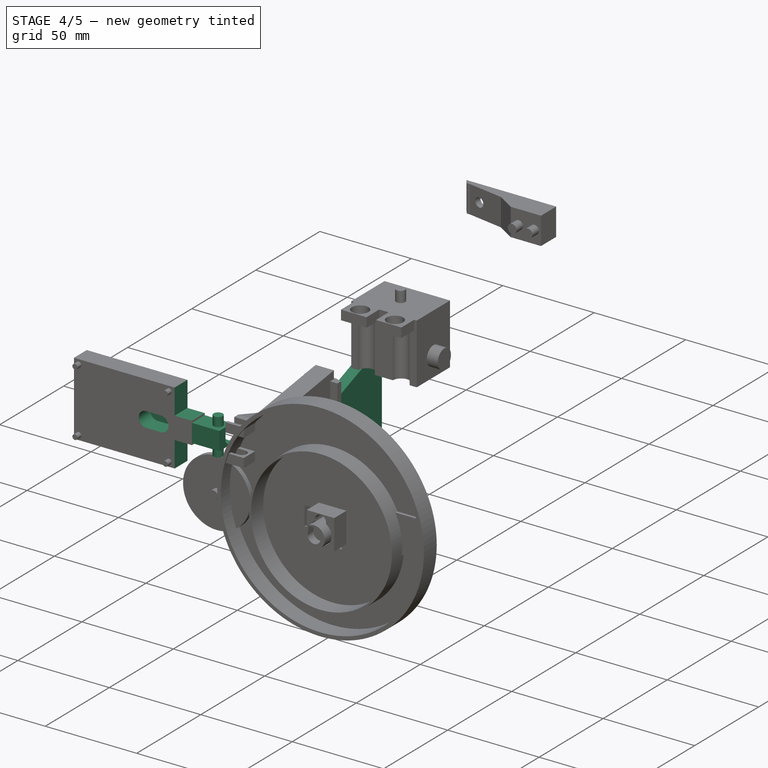
[diagram: stage 4 of 5 — iso view after this stage's code; geometry added in this stage tinted green]
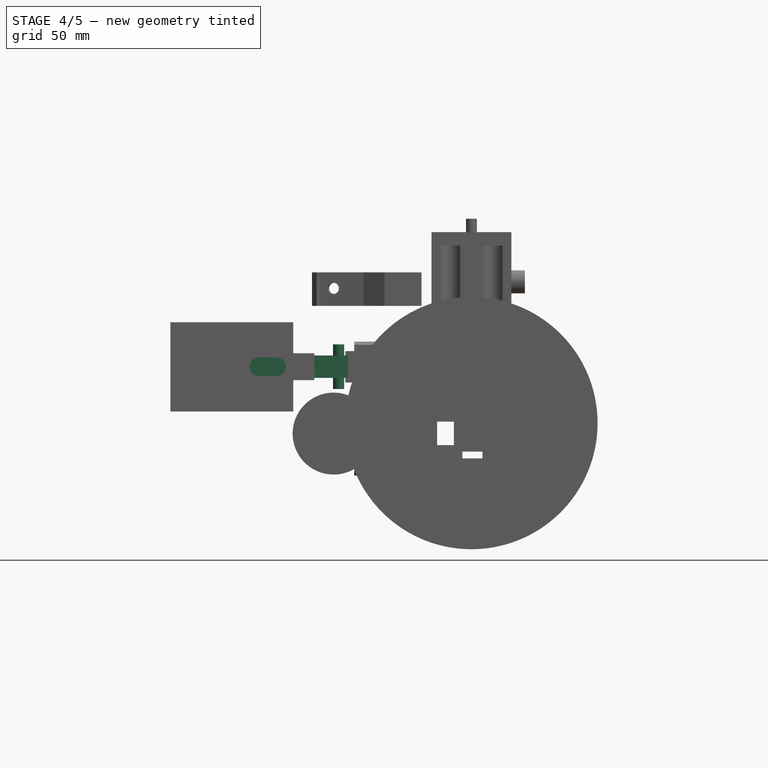
[diagram: stage 4 of 5 — front view after this stage's code; geometry added in this stage tinted green]
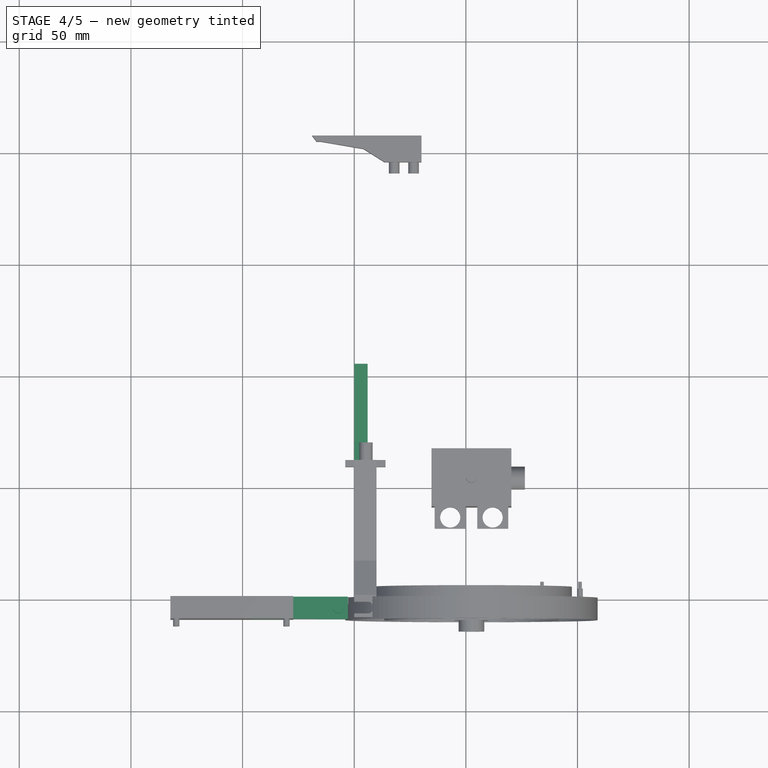
[diagram: stage 4 of 5 — top view after this stage's code; geometry added in this stage tinted green]
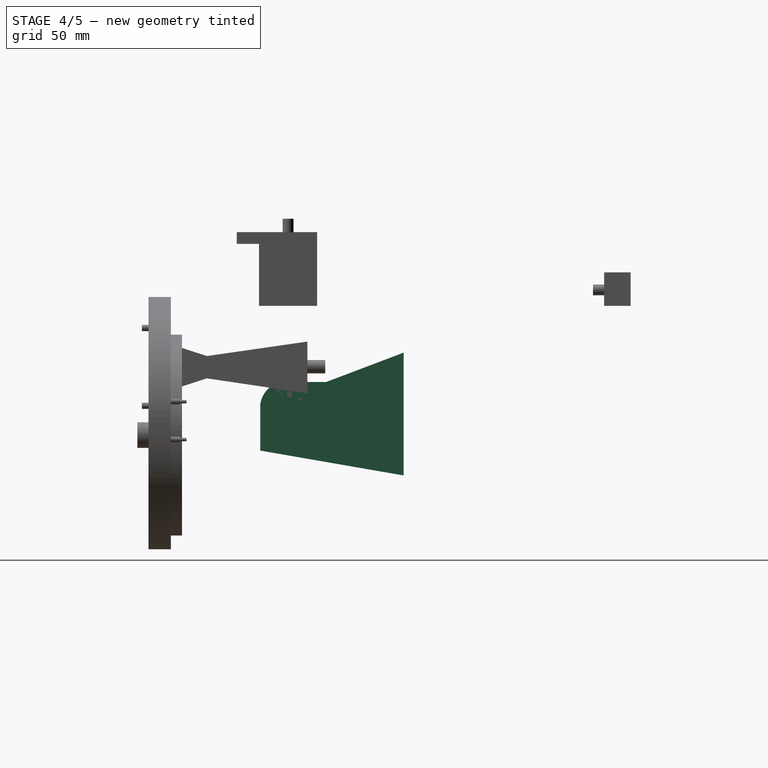
[diagram: stage 4 of 5 — right view after this stage's code; geometry added in this stage tinted green]
FEATURE [PartDesign::Body] Body003  label="Torre"
  Group = -> [Sketch022,Pad007,Sketch023,Pad008,Sketch024,Pocket009,Sketch025,Pad009,Sketch026,Pocket010,Sketch027,Pad010]
  Origin = -> Origin003
  Placement = pos=(34,0,0) rot=(0,0,1;0rad)
  Tip = -> Pad010
FEATURE [Sketcher::SketchObject] CopySketch028
  Placement = pos=(0,0,0) rot=(0.57735,0.57735,0.57735;2.0944rad)
  sketch-geometry (7):
    g0: LineSegment StartX=69.62 StartY=-34.0739 StartZ=0 EndX=104.26 EndY=-20.95 EndZ=0
    g1: LineSegment StartX=104.26 StartY=-20.95 StartZ=0 EndX=104.26 EndY=-75.95 EndZ=0
    g2: LineSegment StartX=104.26 StartY=-75.95 StartZ=0 EndX=40.01 EndY=-64.8059 EndZ=0
    g3: LineSegment StartX=40.01 StartY=-64.8059 StartZ=0 EndX=40.01 EndY=-44.4359 EndZ=0
    g4: Circle [constr] CenterX=52.5 CenterY=-44.25 CenterZ=0 NormalX=0 NormalY=0 NormalZ=1 AngleXU=0 Radius=5
    g5: ArcOfCircle CenterX=51.6648 CenterY=-45.6685 CenterZ=0 NormalX=0 NormalY=0 NormalZ=1 AngleXU=0 Radius=11.7198 StartAngle=1.42446 EndAngle=3.03623
    g6: LineSegment StartX=53.3738 StartY=-34.0739 StartZ=0 EndX=69.62 EndY=-34.0739 EndZ=0
  constraints (19):
    c: Coincident(g0,g1)
    c: Coincident(g1,g2)
    c: Coincident(g2,g3)
    c: Vertical(g1)
    c: Vertical(g3)
    c: Diameter(g4) = 10
    c: DistanceY(g4,g-1) = 44.25
    c: DistanceY(g1,g1) = 55
    c: DistanceX(g-1,g0) = 104.26
    c: DistanceY(g0,g-1) = 20.95
    c: Angle(g1,g2) = 1.39906
    c: Angle(g0,g1) = 1.20864
    c: DistanceX(g2,g2) = 64.25
    c: Coincident(g6,g0)
    c: DistanceX(g0,g0) = 34.64
    c: Coincident(g3,g5)
    c: Coincident(g5,g6)
    c: DistanceY(g3,g3) = 20.37
    c: Horizontal(g6)
FEATURE [PartDesign::Pad] Pad011
  Length = 6
  Length2 = 100
  Placement = pos=(0,0,0) rot=(0.57735,0.57735,0.57735;2.0944rad)
  Profile = -> CopySketch028
  Type = 0
FEATURE [Sketcher::SketchObject] CopySketch029
  Placement = pos=(0,0,0) rot=(0.57735,0.57735,0.57735;2.0944rad)
  sketch-geometry (7):
    g0: LineSegment StartX=69.62 StartY=-34.0739 StartZ=0 EndX=104.26 EndY=-20.95 EndZ=0
    g1: LineSegment StartX=104.26 StartY=-20.95 StartZ=0 EndX=104.26 EndY=-75.95 EndZ=0
    g2: LineSegment StartX=104.26 StartY=-75.95 StartZ=0 EndX=40.01 EndY=-64.8059 EndZ=0
    g3: LineSegment StartX=40.01 StartY=-64.8059 StartZ=0 EndX=40.01 EndY=-44.4359 EndZ=0
    g4: Circle [constr] CenterX=52.5 CenterY=-44.25 CenterZ=0 NormalX=0 NormalY=0 NormalZ=1 AngleXU=0 Radius=5
    g5: ArcOfCircle CenterX=51.6648 CenterY=-45.6685 CenterZ=0 NormalX=0 NormalY=0 NormalZ=1 AngleXU=0 Radius=11.7198 StartAngle=1.42446 EndAngle=3.03623
    g6: LineSegment StartX=53.3738 StartY=-34.0739 StartZ=0 EndX=69.62 EndY=-34.0739 EndZ=0
  constraints (19):
    c: Coincident(g0,g1)
    c: Coincident(g1,g2)
    c: Coincident(g2,g3)
    c: Vertical(g1)
    c: Vertical(g3)
    c: Diameter(g4) = 10
    c: DistanceY(g4,g-1) = 44.25
    c: DistanceY(g1,g1) = 55
    c: DistanceX(g-1,g0) = 104.26
    c: DistanceY(g0,g-1) = 20.95
    c: Angle(g1,g2) = 1.39906
    c: Angle(g0,g1) = 1.20864
    c: DistanceX(g2,g2) = 64.25
    c: Coincident(g6,g0)
    c: DistanceX(g0,g0) = 34.64
    c: Coincident(g3,g5)
    c: Coincident(g5,g6)
    c: DistanceY(g3,g3) = 20.37
    c: Horizontal(g6)
FEATURE [PartDesign::Pad] Pad012
  Length = 6
  Length2 = 100
  Placement = pos=(0,0,0) rot=(0.57735,0.57735,0.57735;2.0944rad)
  Profile = -> CopySketch029
  Type = 0
FEATURE [Sketcher::SketchObject] Sketch028
  MapMode = 5
  Placement = pos=(6,0,0) rot=(0.57735,0.57735,0.57735;2.0944rad)
  sketch-geometry (4):
    g0: ArcOfCircle CenterX=52.51 CenterY=-44.25 CenterZ=0 NormalX=0 NormalY=0 NormalZ=1 AngleXU=0 Radius=3.58973 StartAngle=1.04197 EndAngle=5.14418
    g1: LineSegment StartX=70.19 StartY=-46.8041 StartZ=0 EndX=70.19 EndY=-42.8041 EndZ=0
    g2: LineSegment StartX=70.19 StartY=-42.8041 StartZ=0 EndX=54.3211 EndY=-41.1506 EndZ=0
    g3: LineSegment StartX=54.0123 StartY=-47.5102 StartZ=0 EndX=70.19 EndY=-46.8041 EndZ=0
  constraints (9):
    c: Coincident(g3,g1)
    c: Coincident(g1,g2)
    c: Vertical(g1)
    c: DistanceY(g1,g1) = 4
    c: DistanceX(g0,g1) = 17.68
    c: Coincident(g0,g2)
    c: Coincident(g0,g3)
    c: DistanceX(g-1,g0) = 52.51
    c: DistanceY(g0,g-1) = 44.25
FEATURE [PartDesign::Pocket] Pocket011
  BaseFeature = -> Pad011
  Length = 4.5
  Length2 = 100
  Placement = pos=(0,0,0) rot=(0.57735,0.57735,0.57735;2.0944rad)
  Profile = -> Sketch028
  Type = 4
FEATURE [Sketcher::SketchObject] Sketch029
  MapMode = 5
  Placement = pos=(0,0,0) rot=(0.57735,0.57735,-0.57735;4.18879rad)
  Support = -> [Pad012]
  sketch-geometry (1):
    g0: Circle CenterX=52.5 CenterY=44.25 CenterZ=0 NormalX=0 NormalY=0 NormalZ=1 AngleXU=0 Radius=5.3
  constraints (3):
    c: Radius(g0) = 5.3
    c: DistanceX(g-1,g0) = 52.5
    c: DistanceY(g0) = 44.25
FEATURE [PartDesign::Pocket] Pocket012
  BaseFeature = -> Pad012
  Length = 6
  Length2 = 100
  Placement = pos=(0,0,0) rot=(0.57735,0.57735,0.57735;2.0944rad)
  Profile = -> Sketch029
  Type = 0
FEATURE [Sketcher::SketchObject] Sketch030
  MapMode = 5
  Placement = pos=(6,0,0) rot=(0.57735,0.57735,0.57735;2.0944rad)
  Support = -> [Pocket011]
  sketch-geometry (7):
    g0: Circle CenterX=74.8986 CenterY=-48.2736 CenterZ=0 NormalX=0 NormalY=0 NormalZ=1 AngleXU=0 Radius=1.6
    g1: Circle CenterX=74.846 CenterY=-34.2829 CenterZ=0 NormalX=0 NormalY=0 NormalZ=1 AngleXU=0 Radius=1.6
    g2: Circle CenterX=102.302 CenterY=-23.6332 CenterZ=0 NormalX=0 NormalY=0 NormalZ=1 AngleXU=0 Radius=1.6
    g3: Circle CenterX=102.324 CenterY=-48.2715 CenterZ=0 NormalX=0 NormalY=0 NormalZ=1 AngleXU=0 Radius=1.6
    g4: Circle CenterX=102.306 CenterY=-72.384 CenterZ=0 NormalX=0 NormalY=0 NormalZ=1 AngleXU=0 Radius=1.6
    g5: Circle CenterX=74.8649 CenterY=-68.2819 CenterZ=0 NormalX=0 NormalY=0 NormalZ=1 AngleXU=0 Radius=1.6
    g6: Circle CenterX=41.8249 CenterY=-63.3307 CenterZ=0 NormalX=0 NormalY=0 NormalZ=1 AngleXU=0 Radius=1.6
  constraints (7):
    c: Diameter(g0) = 3.2
    c: Equal(g0,g1) = 3
    c: Equal(g0,g2) = 3
    c: Equal(g0,g3) = 3
    c: Equal(g0,g4) = 3
    c: Equal(g0,g5) = 3
    c: Equal(g0,g6) = 3
FEATURE [PartDesign::Pocket] Pocket013
  BaseFeature = -> Pocket011
  Length = 5
  Length2 = 100
  Placement = pos=(0,0,0) rot=(0.57735,0.57735,0.57735;2.0944rad)
  Profile = -> Sketch030
  Type = 0
FEATURE [PartDesign::Body] Body004  label="Torre_soporte_1"
  Group = -> [Pad011,Sketch028,Pocket011,Sketch030,Pocket013]
  Origin = -> Origin004
  Placement = pos=(10,0,0) rot=(0,0,1;0rad)
  Tip = -> Pocket013
FEATURE [Sketcher::SketchObject] Sketch031
  MapMode = 5
  Placement = pos=(1.5e-15,0,0) rot=(0.57735,0.57735,-0.57735;4.18879rad)
  Support = -> [Pocket012]
  sketch-geometry (7):
    g0: Circle CenterX=74.9138 CenterY=48.2649 CenterZ=0 NormalX=0 NormalY=0 NormalZ=1 AngleXU=0 Radius=1.6
    g1: Circle CenterX=74.8512 CenterY=34.2848 CenterZ=0 NormalX=0 NormalY=0 NormalZ=1 AngleXU=0 Radius=1.6
    g2: Circle CenterX=41.8284 CenterY=63.3355 CenterZ=0 NormalX=0 NormalY=0 NormalZ=1 AngleXU=0 Radius=1.6
    g3: Circle CenterX=74.8676 CenterY=68.2753 CenterZ=0 NormalX=0 NormalY=0 NormalZ=1 AngleXU=0 Radius=1.6
    g4: Circle CenterX=102.322 CenterY=48.2751 CenterZ=0 NormalX=0 NormalY=0 NormalZ=1 AngleXU=0 Radius=1.6
    g5: Circle CenterX=102.307 CenterY=23.6369 CenterZ=0 NormalX=0 NormalY=0 NormalZ=1 AngleXU=0 Radius=1.6
    g6: Circle CenterX=102.285 CenterY=72.3934 CenterZ=0 NormalX=0 NormalY=0 NormalZ=1 AngleXU=0 Radius=1.6
  constraints (7):
    c: Diameter(g0) = 3.2
    c: Equal(g0,g1) = 3.2
    c: Equal(g0,g2) = 3.2
    c: Equal(g0,g3) = 3.2
    c: Equal(g0,g4) = 3.2
    c: Equal(g0,g5) = 3.2
    c: Equal(g0,g6) = 3.2
FEATURE [PartDesign::Pocket] Pocket014
  BaseFeature = -> Pocket012
  Length = 5
  Length2 = 100
  Placement = pos=(0,0,0) rot=(0.57735,0.57735,0.57735;2.0944rad)
  Profile = -> Sketch031
  Type = 0
FEATURE [Sketcher::SketchObject] Sketch035
  MapMode = 5
  Placement = pos=(-17.82,0,0) rot=(0.707107,0,0.707107;3.14159rad)
  Support = -> [Pad014]
  sketch-geometry (5):
    g0: LineSegment [constr] StartX=-47.33 StartY=0 StartZ=0 EndX=-7.33 EndY=0 EndZ=0
    g1: LineSegment [constr] StartX=-7.33 StartY=0 StartZ=0 EndX=-7.33 EndY=10 EndZ=0
    g2: LineSegment [constr] StartX=-7.33 StartY=10 StartZ=0 EndX=-47.33 EndY=10 EndZ=0
    g3: LineSegment [constr] StartX=-47.33 StartY=10 StartZ=0 EndX=-47.33 EndY=0 EndZ=0
    g4: Circle CenterX=-27.33 CenterY=5 CenterZ=0 NormalX=0 NormalY=0 NormalZ=1 AngleXU=0 Radius=4
  constraints (15):
    c: Coincident(g0,g1)
    c: Coincident(g1,g2)
    c: Coincident(g2,g3)
    c: Coincident(g3,g0)
    c: Horizontal(g0)
    c: Horizontal(g2)
    c: Vertical(g1)
    c: Vertical(g3)
    c: DistanceX(g2,g2) = 40
    c: DistanceY(g1,g1) = 10
    c: DistanceY(g-1,g0) = 0
    c: DistanceX(g1,g-1) = 7.33
    c: DistanceX(g4,g0) = 20
    c: DistanceY(g0,g4) = 5
    c: Diameter(g4) = 8
FEATURE [PartDesign::Hole] Hole003
  BaseFeature = -> Pad014
  Depth = 18
  DepthType = 0
  Diameter = 8
  DrillPoint = 0
  DrillPointAngle = 118
  HoleCutCountersinkAngle = 90
  HoleCutDepth = 0
  HoleCutDiameter = 0
  HoleCutType = 0
  ModelActualThread = false
  Placement = pos=(0,0,0) rot=(1,0,0;1.5708rad)
  Profile = -> Sketch035
  Tapered = false
  TaperedAngle = 90
  ThreadAngle = 0
  ThreadClass = 0
  ThreadCutOffInner = 0
  ThreadCutOffOuter = 0
  ThreadDirection = 0
  ThreadFit = 0
  ThreadPitch = 0
  ThreadSize = 0
  ThreadType = 0
  Threaded = false
FEATURE [Sketcher::SketchObject] Sketch036
  MapMode = 5
  Placement = pos=(0,-10,4.4e-15) rot=(1,0,0;1.5708rad)
  Support = -> [Hole003]
  sketch-geometry (4):
    g0: ArcOfCircle CenterX=-42.7907 CenterY=-27.2633 CenterZ=0 NormalX=0 NormalY=0 NormalZ=1 AngleXU=0 Radius=4.14481 StartAngle=1.5708 EndAngle=4.71239
    g1: ArcOfCircle CenterX=-34.7907 CenterY=-27.2633 CenterZ=0 NormalX=0 NormalY=0 NormalZ=1 AngleXU=0 Radius=4.14481 StartAngle=4.71239 EndAngle=7.85398
    g2: LineSegment StartX=-42.7907 StartY=-31.4081 StartZ=0 EndX=-34.7907 EndY=-31.4081 EndZ=0
    g3: LineSegment StartX=-42.7907 StartY=-23.1184 StartZ=0 EndX=-34.7907 EndY=-23.1184 EndZ=0
  constraints (7):
    c: Tangent(g0,g3) = 1.5708
    c: Tangent(g0,g2) = -1.5708
    c: Tangent(g2,g1) = -1.5708
    c: Tangent(g3,g1) = 1.5708
    c: Horizontal(g2)
    c: Equal(g0,g1)
    c: DistanceX(g0,g1) = 8
FEATURE [PartDesign::Pocket] Pocket015
  BaseFeature = -> Hole003
  Length = 10
  Length2 = 100
  Offset = -1
  Placement = pos=(0,0,0) rot=(1,0,0;1.5708rad)
  Profile = -> Sketch036
  Type = 2
FEATURE [Sketcher::SketchObject] Sketch037
  MapMode = 5
  Placement = pos=(0,-10,4.4e-15) rot=(1,0,0;1.5708rad)
  Support = -> [Pocket015]
  sketch-geometry (8):
    g0: LineSegment StartX=-8.75606 StartY=-47.7928 StartZ=0 EndX=-8.75606 EndY=-6.79281 EndZ=0
    g1: LineSegment StartX=-8.75606 StartY=-6.79281 StartZ=0 EndX=-27.2816 EndY=-6.79281 EndZ=0
    g2: LineSegment StartX=-27.2816 StartY=-6.79281 StartZ=0 EndX=-27.2816 EndY=-21.2257 EndZ=0
    g3: LineSegment StartX=-27.2816 StartY=-21.2257 StartZ=0 EndX=-14.1416 EndY=-21.2257 EndZ=0
    g4: LineSegment StartX=-14.1416 StartY=-21.2257 StartZ=0 EndX=-14.1416 EndY=-33.2744 EndZ=0
    g5: LineSegment StartX=-14.1416 StartY=-33.2744 StartZ=0 EndX=-27.2816 EndY=-33.2744 EndZ=0
    g6: LineSegment StartX=-27.2816 StartY=-33.2744 StartZ=0 EndX=-27.2816 EndY=-47.7928 EndZ=0
    g7: LineSegment StartX=-27.2816 StartY=-47.7928 StartZ=0 EndX=-8.75606 EndY=-47.7928 EndZ=0
  constraints (17):
    c: Coincident(g0,g1)
    c: Coincident(g1,g2)
    c: Coincident(g2,g3)
    c: Coincident(g3,g4)
    c: Coincident(g4,g5)
    c: Coincident(g5,g6)
    c: Coincident(g6,g7)
    c: Coincident(g0,g7)
    c: Vertical(g6)
    c: Horizontal(g7)
    c: Vertical(g0)
    c: Vertical(g4)
    c: Vertical(g2)
    c: DistanceX(g5,g5) = 13.14
    c: DistanceX(g3,g3) = 13.14
    c: Horizontal(g1)
    c: DistanceY(g0,g0) = 41
FEATURE [PartDesign::Pocket] Pocket016
  BaseFeature = -> Pocket015
  Length = 5
  Length2 = 100
  Placement = pos=(0,0,0) rot=(1,0,0;1.5708rad)
  Profile = -> Sketch037
  Type = 1
FEATURE [Sketcher::SketchObject] Sketch038
  MapMode = 5
  Placement = pos=(-17.82,0,0) rot=(0.707107,0,0.707107;3.14159rad)
  Support = -> [Pocket016]
  sketch-geometry (5):
    g0: Circle [constr] CenterX=-27.2438 CenterY=5.01 CenterZ=0 NormalX=0 NormalY=0 NormalZ=1 AngleXU=0 Radius=4
    g1: LineSegment StartX=-32.2438 StartY=10.01 StartZ=0 EndX=-22.2438 EndY=10.01 EndZ=0
    g2: LineSegment StartX=-22.2438 StartY=10.01 StartZ=0 EndX=-22.2438 EndY=0.01 EndZ=0
    g3: LineSegment StartX=-22.2438 StartY=0.01 StartZ=0 EndX=-32.2438 EndY=0.01 EndZ=0
    g4: LineSegment StartX=-32.2438 StartY=0.01 StartZ=0 EndX=-32.2438 EndY=10.01 EndZ=0
  constraints (14):
    c: Diameter(g0) = 8
    c: DistanceY(g-1,g0) = 5.01
    c: Coincident(g1,g2)
    c: Coincident(g2,g3)
    c: Coincident(g3,g4)
    c: Coincident(g4,g1)
    c: Horizontal(g1)
    c: Horizontal(g3)
    c: Vertical(g2)
    c: Vertical(g4)
    c: DistanceX(g0,g2) = 5
    c: DistanceX(g1,g0) = 5
    c: DistanceY(g0,g1) = 5
    c: DistanceY(g2,g0) = 5
FEATURE [PartDesign::Pad] Pad015
  BaseFeature = -> Pocket016
  Length = 15
  Length2 = 100
  Placement = pos=(0,0,0) rot=(1,0,0;1.5708rad)
  Profile = -> Sketch038
  Type = 0
FEATURE [Sketcher::SketchObject] Sketch039
  MapMode = 5
  Placement = pos=(-4.9e-15,-7.4e-15,-22.2438) rot=(0,0,1;3.14159rad)
  Support = -> [Pad015]
  sketch-geometry (1):
    g0: Circle CenterX=7 CenterY=5 CenterZ=0 NormalX=0 NormalY=0 NormalZ=1 AngleXU=0 Radius=2.5
  constraints (3):
    c: Diameter(g0) = 5
    c: DistanceY(g-1,g0) = 5
    c: DistanceX(g-1,g0) = 7
FEATURE [PartDesign::Pad] Pad016
  BaseFeature = -> Pad015
  Length = 5
  Length2 = 15
  Placement = pos=(0,0,0) rot=(1,0,0;1.5708rad)
  Profile = -> Sketch039
  Type = 4
FEATURE [Sketcher::SketchObject] Sketch040
  MapMode = 5
  Placement = pos=(-2.82,0,1e-15) rot=(0.707107,0,0.707107;3.14159rad)
  Support = -> [Pad016]
  sketch-geometry (4):
    g0: ArcOfCircle CenterX=-28.743 CenterY=3.34559 CenterZ=0 NormalX=0 NormalY=0 NormalZ=1 AngleXU=0 Radius=1.90604 StartAngle=1.5708 EndAngle=4.71239
    g1: ArcOfCircle CenterX=-25.4946 CenterY=3.34559 CenterZ=0 NormalX=0 NormalY=0 NormalZ=1 AngleXU=0 Radius=1.90604 StartAngle=4.71239 EndAngle=7.85398
    g2: LineSegment StartX=-28.743 StartY=1.43956 StartZ=0 EndX=-25.4946 EndY=1.43956 EndZ=0
    g3: LineSegment StartX=-28.743 StartY=5.25163 StartZ=0 EndX=-25.4946 EndY=5.25163 EndZ=0
  constraints (6):
    c: Tangent(g0,g3) = 1.5708
    c: Tangent(g0,g2) = -1.5708
    c: Tangent(g2,g1) = -1.5708
    c: Tangent(g3,g1) = 1.5708
    c: Horizontal(g2)
    c: Equal(g0,g1)
FEATURE [PartDesign::Pocket] Pocket017
  BaseFeature = -> Pad016
  Length = 17
  Length2 = 100
  Placement = pos=(0,0,0) rot=(1,0,0;1.5708rad)
  Profile = -> Sketch040
  Type = 0
FEATURE [Sketcher::SketchObject] Sketch045
  MapMode = 5
  Placement = pos=(0,-0.01,0) rot=(-1,0,0;1.5708rad)
  Support = -> [Pocket017]
  sketch-geometry (4):
    g0: ArcOfCircle CenterX=-10.9906 CenterY=27.2184 CenterZ=0 NormalX=0 NormalY=0 NormalZ=1 AngleXU=0 Radius=3.85359 StartAngle=1.5708 EndAngle=4.71239
    g1: ArcOfCircle CenterX=5.08627 CenterY=27.2184 CenterZ=0 NormalX=0 NormalY=0 NormalZ=1 AngleXU=0 Radius=3.85359 StartAngle=4.71239 EndAngle=7.85398
    g2: LineSegment StartX=-10.9906 StartY=23.3648 StartZ=0 EndX=5.08627 EndY=23.3648 EndZ=0
    g3: LineSegment StartX=-10.9906 StartY=31.072 StartZ=0 EndX=5.08627 EndY=31.072 EndZ=0
  constraints (6):
    c: Tangent(g0,g3) = 1.5708
    c: Tangent(g0,g2) = -1.5708
    c: Tangent(g2,g1) = -1.5708
    c: Tangent(g3,g1) = 1.5708
    c: Horizontal(g2)
    c: Equal(g0,g1)
FEATURE [PartDesign::Pocket] Pocket019
  BaseFeature = -> Pocket017
  Length = 4
  Length2 = 100
  Placement = pos=(0,0,0) rot=(1,0,0;1.5708rad)
  Profile = -> Sketch045
  Type = 0
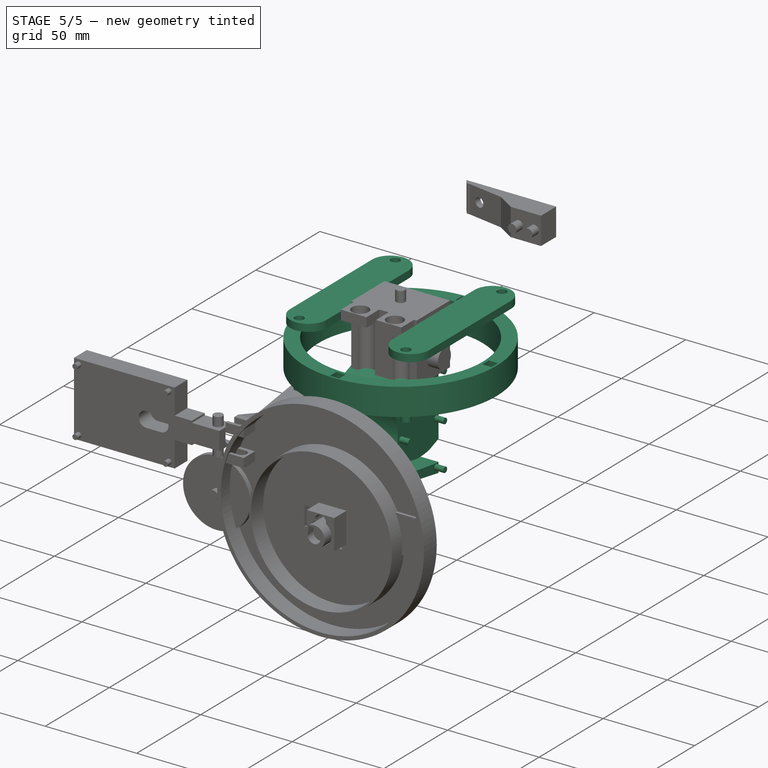
[diagram: stage 5 of 5 — iso view after this stage's code; geometry added in this stage tinted green]
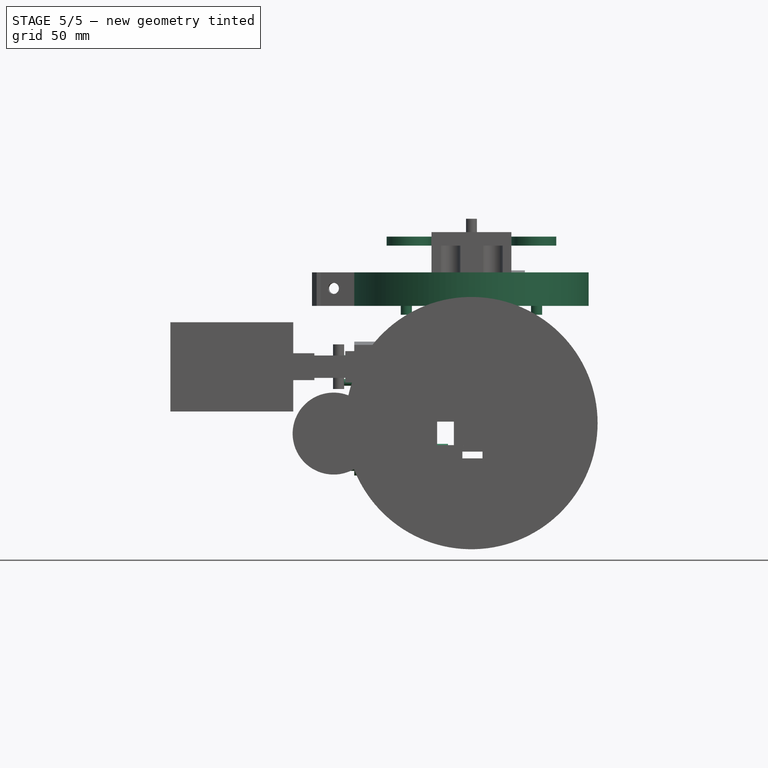
[diagram: stage 5 of 5 — front view after this stage's code; geometry added in this stage tinted green]
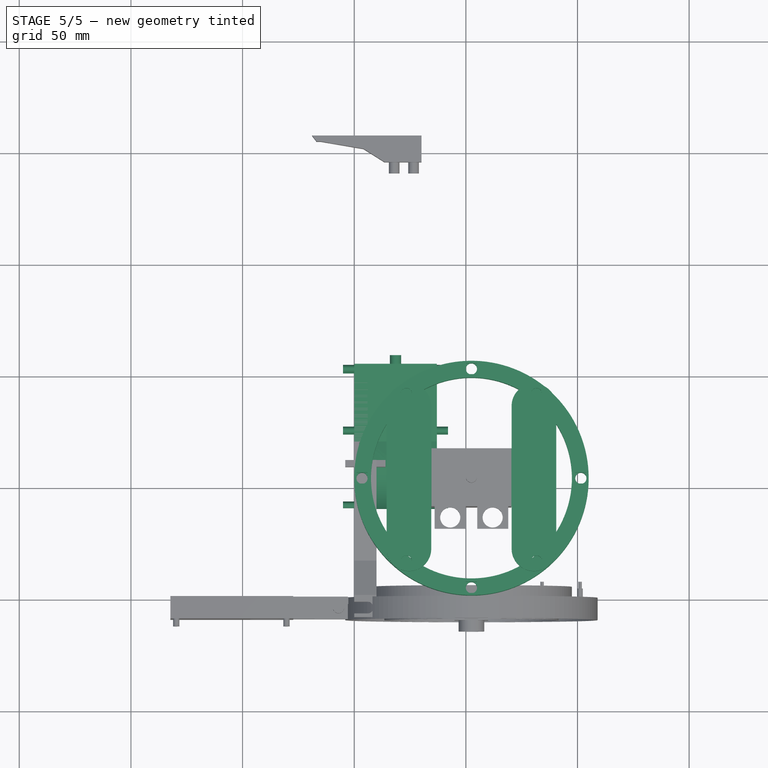
[diagram: stage 5 of 5 — top view after this stage's code; geometry added in this stage tinted green]
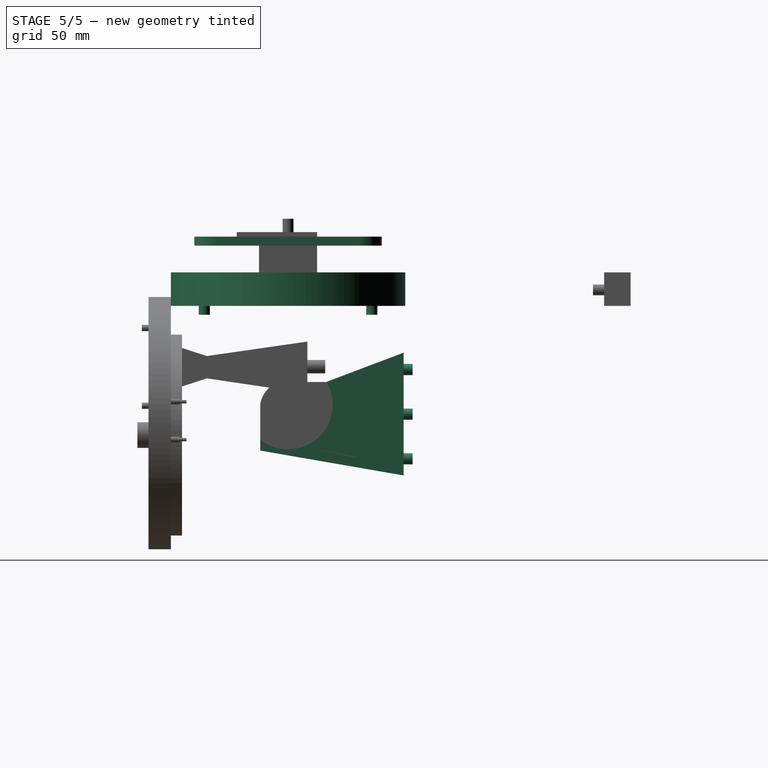
[diagram: stage 5 of 5 — right view after this stage's code; geometry added in this stage tinted green]
FEATURE [Sketcher::SketchObject] Sketch
  MapMode = 5
  Support = -> [XY_Plane]
  sketch-geometry (2):
    g0: Circle CenterX=52.5 CenterY=52.5 CenterZ=0 NormalX=0 NormalY=0 NormalZ=1 AngleXU=0 Radius=45
    g1: Circle CenterX=52.5 CenterY=52.5 CenterZ=0 NormalX=0 NormalY=0 NormalZ=1 AngleXU=0 Radius=52.5
  constraints (5):
    c: Diameter(g0) = 90
    c: Diameter(g1) = 105
    c: Coincident(g1,g0)
    c: DistanceY(g-1,g0) = 52.5
    c: DistanceX(g-1,g0) = 52.5
FEATURE [PartDesign::Pad] Pad
  Length = 15
  Length2 = 100
  Profile = -> Sketch
  Type = 0
FEATURE [Sketcher::SketchObject] Sketch001
  MapMode = 5
  Placement = pos=(0,0,15) rot=(0,0,1;0rad)
  Support = -> [Pad]
  sketch-geometry (18):
    g0: LineSegment [constr] StartX=0 StartY=52.5 StartZ=0 EndX=105 EndY=52.5 EndZ=0
    g1: LineSegment [constr] StartX=52.5 StartY=105 StartZ=0 EndX=52.5 EndY=0 EndZ=0
    g2: LineSegment StartX=1 StartY=50 StartZ=0 EndX=6 EndY=50 EndZ=0
    g3: LineSegment StartX=6 StartY=50 StartZ=0 EndX=6 EndY=55 EndZ=0
    g4: LineSegment StartX=6 StartY=55 StartZ=0 EndX=1 EndY=55 EndZ=0
    g5: LineSegment StartX=1 StartY=55 StartZ=0 EndX=1 EndY=50 EndZ=0
    g6: LineSegment StartX=50 StartY=1 StartZ=0 EndX=55 EndY=1 EndZ=0
    g7: LineSegment StartX=55 StartY=1 StartZ=0 EndX=55 EndY=6 EndZ=0
    g8: LineSegment StartX=55 StartY=6 StartZ=0 EndX=50 EndY=6 EndZ=0
    g9: LineSegment StartX=50 StartY=6 StartZ=0 EndX=50 EndY=1 EndZ=0
    g10: LineSegment StartX=99 StartY=50 StartZ=0 EndX=104 EndY=50 EndZ=0
    g11: LineSegment StartX=104 StartY=50 StartZ=0 EndX=104 EndY=55 EndZ=0
    g12: LineSegment StartX=104 StartY=55 StartZ=0 EndX=99 EndY=55 EndZ=0
    g13: LineSegment StartX=99 StartY=55 StartZ=0 EndX=99 EndY=50 EndZ=0
    g14: LineSegment StartX=50 StartY=99 StartZ=0 EndX=55 EndY=99 EndZ=0
    g15: LineSegment StartX=55 StartY=99 StartZ=0 EndX=55 EndY=104 EndZ=0
    g16: LineSegment StartX=55 StartY=104 StartZ=0 EndX=50 EndY=104 EndZ=0
    g17: LineSegment StartX=50 StartY=104 StartZ=0 EndX=50 EndY=99 EndZ=0
  constraints (56):
    c: DistanceX(g-1,g0) = 0
    c: DistanceY(g-1,g0) = 52.5
    c: Parallel(g0,g-1)
    c: Parallel(g1,g-2)
    c: DistanceX(g-1,g1) = 52.5
    c: DistanceX(g0,g0) = 105
    c: DistanceY(g1,g1) = 105
    c: DistanceY(g-1,g1) = 0
    c: Coincident(g2,g3)
    c: Coincident(g3,g4)
    c: Coincident(g4,g5)
    c: Coincident(g5,g2)
    c: Horizontal(g2)
    c: Horizontal(g4)
    c: Vertical(g3)
    c: Vertical(g5)
    c: Coincident(g6,g7)
    c: Coincident(g7,g8)
    c: Coincident(g8,g9)
    c: Coincident(g9,g6)
    c: Horizontal(g6)
    c: Horizontal(g8)
    c: Vertical(g7)
    c: Vertical(g9)
    c: Coincident(g10,g11)
    c: Coincident(g11,g12)
    c: Coincident(g12,g13)
    c: Coincident(g13,g10)
    c: Horizontal(g10)
    c: Horizontal(g12)
    c: Vertical(g11)
    c: Vertical(g13)
    c: DistanceX(g12,g12) = 5
    c: DistanceY(g11,g11) = 5
    c: DistanceX(g4,g4) = 5
    c: DistanceX(g8,g8) = 5
    c: DistanceY(g7,g7) = 5
    c: DistanceY(g3,g3) = 5
    c: DistanceX(g11,g0) = 1
    c: DistanceX(g0,g4) = 1
    c: DistanceY(g1,g6) = 1
    c: DistanceY(g0,g3) = 2.5
    c: DistanceY(g0,g11) = 2.5
    c: DistanceX(g1,g6) = 2.5
    c: Coincident(g14,g15)
    c: Coincident(g15,g16)
    c: Coincident(g16,g17)
    c: Coincident(g17,g14)
    c: Horizontal(g14)
    c: Horizontal(g16)
    c: Vertical(g15)
    c: Vertical(g17)
    c: DistanceX(g16,g15) = 5
    c: DistanceY(g14,g16) = 5
    c: DistanceY(g15,g1) = 1
    c: DistanceX(g16,g1) = 2.5
FEATURE [PartDesign::Pocket] Pocket001
  BaseFeature = -> Pad
  Length = 7
  Length2 = 100
  Profile = -> Sketch001
  Type = 0
FEATURE [Sketcher::SketchObject] Sketch002
  MapMode = 5
  Placement = pos=(0,0,15) rot=(0,0,1;0rad)
  Support = -> [Pocket001]
  sketch-geometry (6):
    g0: Circle CenterX=52.5 CenterY=101.5 CenterZ=0 NormalX=0 NormalY=0 NormalZ=1 AngleXU=0 Radius=2.5
    g1: Circle CenterX=52.5 CenterY=3.5 CenterZ=0 NormalX=0 NormalY=0 NormalZ=1 AngleXU=0 Radius=2.5
    g2: Circle CenterX=3.5 CenterY=52.5 CenterZ=0 NormalX=0 NormalY=0 NormalZ=1 AngleXU=0 Radius=2.5
    g3: Circle CenterX=101.5 CenterY=52.5 CenterZ=0 NormalX=0 NormalY=0 NormalZ=1 AngleXU=0 Radius=2.5
    g4: LineSegment [constr] StartX=0 StartY=52.5 StartZ=0 EndX=105 EndY=52.5 EndZ=0
    g5: LineSegment [constr] StartX=52.5 StartY=105 StartZ=0 EndX=52.5 EndY=0 EndZ=0
  constraints (20):
    c: Parallel(g5,g-2)
    c: Parallel(g4,g-1)
    c: DistanceY(g-1,g4) = 52.5
    c: DistanceX(g-1,g5) = 52.5
    c: DistanceY(g-1,g5) = 0
    c: DistanceX(g4,g4) = 105
    c: DistanceX(g-1,g4) = 0
    c: DistanceY(g5,g5) = 105
    c: Radius(g0) = 2.5
    c: DistanceY(g0,g5) = 3.5
    c: Radius(g2) = 2.5
    c: Radius(g3) = 2.5
    c: Radius(g1) = 2.5
    c: DistanceX(g3,g4) = 3.5
    c: DistanceX(g4,g2) = 3.5
    c: DistanceY(g5,g1) = 3.5
    c: DistanceX(g-1,g1) = 52.5
    c: DistanceY(g-1,g2) = 52.5
    c: DistanceY(g-1,g3) = 52.5
    c: DistanceX(g-1,g0) = 52.5
FEATURE [PartDesign::Hole] Hole
  BaseFeature = -> Pocket001
  Depth = 25
  DepthType = 1
  Diameter = 5
  DrillPoint = 1
  DrillPointAngle = 118
  HoleCutCountersinkAngle = 90
  HoleCutDepth = 0
  HoleCutDiameter = 0
  HoleCutType = 0
  ModelActualThread = false
  Profile = -> Sketch002
  Tapered = false
  TaperedAngle = 90
  ThreadAngle = 0
  ThreadClass = 0
  ThreadCutOffInner = 0
  ThreadCutOffOuter = 0
  ThreadDirection = 0
  ThreadFit = 0
  ThreadPitch = 0
  ThreadSize = 0
  ThreadType = 0
  Threaded = false
FEATURE [Sketcher::SketchObject] Sketch005
  MapMode = 5
  Support = -> [XY_Plane001]
FEATURE [Sketcher::SketchObject] CopySketch004
  sketch-geometry (13):
    g0: Circle [constr] CenterX=52.5 CenterY=52.5 CenterZ=0 NormalX=0 NormalY=0 NormalZ=1 AngleXU=0 Radius=52.5
    g1: ArcOfCircle CenterX=80.5 CenterY=20.5275 CenterZ=0 NormalX=0 NormalY=0 NormalZ=1 AngleXU=0 Radius=10.0001 StartAngle=3.14159 EndAngle=6.28319
    g2: ArcOfCircle CenterX=80.5 CenterY=84.4725 CenterZ=0 NormalX=0 NormalY=0 NormalZ=1 AngleXU=0 Radius=10.0001 StartAngle=5e-16 EndAngle=3.1361
    g3: LineSegment StartX=90.5001 StartY=20.5275 StartZ=0 EndX=90.5001 EndY=84.4725 EndZ=0
    g4: LineSegment StartX=70.4999 StartY=20.5275 StartZ=0 EndX=70.4999 EndY=39.5275 EndZ=0
    g5: ArcOfCircle CenterX=24.5 CenterY=20.5275 CenterZ=0 NormalX=0 NormalY=0 NormalZ=1 AngleXU=0 Radius=10.0001 StartAngle=3.14159 EndAngle=6.28319
    g6: ArcOfCircle CenterX=24.5 CenterY=84.4725 CenterZ=0 NormalX=0 NormalY=0 NormalZ=1 AngleXU=0 Radius=10.0001 StartAngle=0.00549111 EndAngle=3.14159
    g7: LineSegment StartX=34.5001 StartY=20.5275 StartZ=0 EndX=34.5001 EndY=39.5275 EndZ=0
    g8: LineSegment StartX=14.4999 StartY=20.5275 StartZ=0 EndX=14.4999 EndY=84.4725 EndZ=0
    g9: LineSegment StartX=34.4999 StartY=65.5275 StartZ=0 EndX=70.5001 EndY=65.5275 EndZ=0
    g10: LineSegment StartX=34.4999 StartY=65.5275 StartZ=0 EndX=34.4999 EndY=84.5275 EndZ=0
    g11: LineSegment StartX=70.5001 StartY=65.5275 StartZ=0 EndX=70.5001 EndY=84.5275 EndZ=0
    g12: LineSegment StartX=34.5001 StartY=39.5275 StartZ=0 EndX=70.4999 EndY=39.5275 EndZ=0
  constraints (37):
    c: Diameter(g0) = 105
    c: DistanceX(g-1,g0) = 52.5
    c: DistanceY(g-1,g0) = 52.5
    c: Tangent(g1,g4) = 1.5708
    c: Tangent(g1,g3) = -1.5708
    c: Tangent(g3,g2) = -1.5708
    c: Vertical(g3)
    c: Equal(g1,g2)
    c: Tangent(g2,g0)
    c: Tangent(g1,g0)
    c: DistanceX(g2,g2) = 20
    c: Tangent(g5,g8) = 1.5708
    c: Tangent(g5,g7) = -1.5708
    c: Tangent(g8,g6) = 1.5708
    c: Vertical(g7)
    c: Equal(g5,g6)
    c: DistanceX(g6,g6) = 20
    c: Tangent(g6,g0)
    c: Tangent(g5,g0)
    c: DistanceX(g6,g2) = 56
    c: Horizontal(g9)
    c: Coincident(g6,g10)
    c: Coincident(g2,g11)
    c: DistanceY(g9,g6) = 19
    c: Coincident(g10,g9)
    c: Coincident(g9,g11)
    c: Vertical(g11)
    c: Vertical(g10)
    c: DistanceY(g5,g7) = 19
    c: DistanceY(g1,g4) = 19
    c: DistanceY(g9,g2) = 19
    c: Vertical(g4)
    c: Horizontal(g12)
    c: Vertical(g8)
    c: Coincident(g12,g7)
    c: Coincident(g4,g12)
    c: DistanceY(g7,g9) = 26
FEATURE [PartDesign::Pad] Pad001
  Length = 4
  Length2 = 100
  Profile = -> CopySketch004
  Type = 0
FEATURE [Sketcher::SketchObject] Sketch006
  MapMode = 5
  Placement = pos=(0,0,4) rot=(0,0,1;0rad)
  Support = -> [Pad001]
  sketch-geometry (1):
    g0: Circle CenterX=52.5 CenterY=52.5 CenterZ=0 NormalX=0 NormalY=0 NormalZ=1 AngleXU=0 Radius=2.5
  constraints (3):
    c: Diameter(g0) = 5
    c: DistanceY(g0) = 52.5
    c: DistanceX(g0) = 52.5
FEATURE [PartDesign::Hole] Hole001
  BaseFeature = -> Pad001
  Depth = 25
  DepthType = 1
  Diameter = 5
  DrillPoint = 1
  DrillPointAngle = 118
  HoleCutCountersinkAngle = 90
  HoleCutDepth = 0
  HoleCutDiameter = 0
  HoleCutType = 0
  ModelActualThread = false
  Placement = pos=(0,0,27) rot=(0,0,1;0rad)
  Profile = -> Sketch006
  Tapered = false
  TaperedAngle = 90
  ThreadAngle = 0
  ThreadClass = 0
  ThreadCutOffInner = 0
  ThreadCutOffOuter = 0
  ThreadDirection = 0
  ThreadFit = 0
  ThreadPitch = 0
  ThreadSize = 0
  ThreadType = 0
  Threaded = false
FEATURE [Sketcher::SketchObject] Sketch011
  MapMode = 5
  Placement = pos=(0,0,31) rot=(0,0,1;0rad)
  Support = -> [Hole001]
  sketch-geometry (10):
    g0: Circle CenterX=23.3452 CenterY=90 CenterZ=0 NormalX=0 NormalY=0 NormalZ=1 AngleXU=0 Radius=2.5
    g1: Circle CenterX=23.3452 CenterY=15 CenterZ=0 NormalX=0 NormalY=0 NormalZ=1 AngleXU=0 Radius=2.5
    g2: Circle CenterX=81.6548 CenterY=90 CenterZ=0 NormalX=0 NormalY=0 NormalZ=1 AngleXU=0 Radius=2.5
    g3: Circle CenterX=81.6548 CenterY=15 CenterZ=0 NormalX=0 NormalY=0 NormalZ=1 AngleXU=0 Radius=2.5
    g4: Circle [constr] CenterX=52.5 CenterY=52.5 CenterZ=0 NormalX=0 NormalY=0 NormalZ=1 AngleXU=0 Radius=50
    g5: Circle [constr] CenterX=52.5 CenterY=52.5 CenterZ=0 NormalX=0 NormalY=0 NormalZ=1 AngleXU=0 Radius=45
    g6: LineSegment [constr] StartX=23.3452 StartY=15 StartZ=0 EndX=81.6548 EndY=15 EndZ=0
    g7: LineSegment [constr] StartX=81.6548 StartY=15 StartZ=0 EndX=81.6548 EndY=90 EndZ=0
    g8: LineSegment [constr] StartX=81.6548 StartY=90 StartZ=0 EndX=23.3452 EndY=90 EndZ=0
    g9: LineSegment [constr] StartX=23.3452 StartY=90 StartZ=0 EndX=23.3452 EndY=15 EndZ=0
  constraints (25):
    c: Diameter(g0) = 5
    c: Diameter(g1) = 5
    c: Diameter(g3) = 5
    c: Diameter(g2) = 5
    c: Radius(g4) = 50
    c: DistanceX(g-1,g4) = 52.5
    c: DistanceY(g-1,g4) = 52.5
    c: Coincident(g4,g5)
    c: Radius(g5) = 45
    c: Tangent(g0,g4)
    c: Tangent(g2,g4)
    c: Tangent(g3,g4)
    c: Tangent(g1,g4)
    c: Coincident(g6,g7)
    c: Coincident(g7,g8)
    c: Coincident(g8,g9)
    c: Coincident(g9,g6)
    c: Horizontal(g6)
    c: Horizontal(g8)
    c: Vertical(g7)
    c: Coincident(g8,g0)
    c: Coincident(g2,g7)
    c: Coincident(g3,g6)
    c: Coincident(g1,g6)
    c: DistanceY(g9,g9) = 75
FEATURE [PartDesign::Hole] Hole002
  BaseFeature = -> Hole001
  Depth = 25
  DepthType = 1
  Diameter = 5
  DrillPoint = 1
  DrillPointAngle = 118
  HoleCutCountersinkAngle = 90
  HoleCutDepth = 0
  HoleCutDiameter = 0
  HoleCutType = 0
  ModelActualThread = false
  Placement = pos=(0,0,27) rot=(0,0,1;0rad)
  Profile = -> Sketch011
  Tapered = false
  TaperedAngle = 90
  ThreadAngle = 0
  ThreadClass = 0
  ThreadCutOffInner = 0
  ThreadCutOffOuter = 0
  ThreadDirection = 0
  ThreadFit = 0
  ThreadPitch = 0
  ThreadSize = 0
  ThreadType = 0
  Threaded = false
FEATURE [PartDesign::Body] Body001  label="sujeccionPosteriorPanel"
  Group = -> [Sketch005,CopySketch004,Pad001,Sketch006,Hole001,Sketch011,Hole002]
  Origin = -> Origin001
  Placement = pos=(0,0,-41) rot=(0,0,1;0rad)
  Tip = -> Hole002
FEATURE [Sketcher::SketchObject] Sketch012
  MapMode = 5
  Support = -> [XY_Plane]
  sketch-geometry (9):
    g0: Circle [constr] CenterX=52.5 CenterY=52.5 CenterZ=0 NormalX=0 NormalY=0 NormalZ=1 AngleXU=0 Radius=50
    g1: Circle CenterX=81.6629 CenterY=90 CenterZ=0 NormalX=0 NormalY=0 NormalZ=1 AngleXU=0 Radius=2.495
    g2: Circle CenterX=81.6629 CenterY=15 CenterZ=0 NormalX=0 NormalY=0 NormalZ=1 AngleXU=0 Radius=2.495
    g3: Circle CenterX=23.3371 CenterY=90 CenterZ=0 NormalX=0 NormalY=0 NormalZ=1 AngleXU=0 Radius=2.495
    g4: LineSegment [constr] StartX=81.6629 StartY=90 StartZ=0 EndX=23.3371 EndY=90 EndZ=0
    g5: LineSegment [constr] StartX=23.3371 StartY=90 StartZ=0 EndX=23.3371 EndY=15 EndZ=0
    g6: LineSegment [constr] StartX=23.3371 StartY=15 StartZ=0 EndX=81.6629 EndY=15 EndZ=0
    g7: LineSegment [constr] StartX=81.6629 StartY=15 StartZ=0 EndX=81.6629 EndY=90 EndZ=0
    g8: Circle CenterX=23.3371 CenterY=15 CenterZ=0 NormalX=0 NormalY=0 NormalZ=1 AngleXU=0 Radius=2.495
  constraints (27):
    c: DistanceX(g-1,g0) = 52.5
    c: DistanceY(g-1,g0) = 52.5
    c: Radius(g0) = 50
    c: Diameter(g3) = 4.99
    c: Diameter(g2) = 4.99
    c: Diameter(g1) = 4.99
    c: Tangent(g2,g0)
    c: Tangent(g3,g0)
    c: Coincident(g4,g5)
    c: Coincident(g5,g6)
    c: Coincident(g6,g7)
    c: Coincident(g7,g4)
    c: Horizontal(g4)
    c: Horizontal(g6)
    c: Vertical(g5)
    c: Vertical(g7)
    c: PointOnObject(g1,g4)
    c: PointOnObject(g1,g7)
    c: PointOnObject(g3,g4)
    c: PointOnObject(g3,g5)
    c: PointOnObject(g2,g7)
    c: PointOnObject(g2,g6)
    c: Diameter(g8) = 4.99
    c: PointOnObject(g8,g6)
    c: PointOnObject(g8,g5)
    c: Tangent(g1,g0)
    c: DistanceY(g5,g5) = 75
FEATURE [PartDesign::Pad] Pad005
  BaseFeature = -> Hole
  Length = 4
  Length2 = 100
  Profile = -> Sketch012
  Reversed = true
  Type = 0
FEATURE [Sketcher::SketchObject] Sketch022
  MapMode = 5
  Placement = pos=(0,0,0) rot=(0.57735,0.57735,0.57735;2.0944rad)
  Support = -> [YZ_Plane003]
  sketch-geometry (6):
    g0: ArcOfCircle CenterX=52.5 CenterY=-44.25 CenterZ=0 NormalX=0 NormalY=0 NormalZ=1 AngleXU=0 Radius=20 StartAngle=4.0379 EndAngle=6.81874
    g1: LineSegment StartX=69.6998 StartY=-34.0437 StartZ=0 EndX=104.26 EndY=-20.95 EndZ=0
    g2: LineSegment StartX=104.26 StartY=-20.95 StartZ=0 EndX=104.26 EndY=-75.95 EndZ=0
    g3: LineSegment StartX=104.26 StartY=-75.95 StartZ=0 EndX=40.01 EndY=-64.8059 EndZ=0
    g4: LineSegment StartX=40.01 StartY=-64.8059 StartZ=0 EndX=40.01 EndY=-59.8705 EndZ=0
    g5: Circle [constr] CenterX=52.5 CenterY=-44.25 CenterZ=0 NormalX=0 NormalY=0 NormalZ=1 AngleXU=0 Radius=5
  constraints (18):
    c: Radius(g0) = 20
    c: Coincident(g1,g2)
    c: Coincident(g2,g3)
    c: Coincident(g3,g4)
    c: Vertical(g2)
    c: Vertical(g4)
    c: DistanceX(g-1,g0) = 52.5
    c: Diameter(g5) = 10
    c: DistanceY(g5,g-1) = 44.25
    c: Coincident(g0,g5)
    c: DistanceY(g2,g2) = 55
    c: DistanceX(g-1,g1) = 104.26
    c: DistanceY(g1,g-1) = 20.95
    c: Angle(g2,g3) = 1.39906
    c: Coincident(g0,g4)
    c: Coincident(g0,g1)
    c: Angle(g1,g2) = 1.20864
    c: DistanceX(g3,g3) = 64.25
FEATURE [PartDesign::Pad] Pad007
  Length = 37
  Length2 = 100
  Placement = pos=(0,0,0) rot=(0.57735,0.57735,0.57735;2.0944rad)
  Profile = -> Sketch022
  Type = 0
FEATURE [Sketcher::SketchObject] Sketch023
  MapMode = 5
  Placement = pos=(3e-16,0,0) rot=(0.57735,0.57735,-0.57735;4.18879rad)
  Support = -> [Pad007]
  sketch-geometry (13):
    g0: Circle CenterX=41.81 CenterY=63.3228 CenterZ=0 NormalX=0 NormalY=0 NormalZ=1 AngleXU=0 Radius=1.5
    g1: LineSegment [constr] StartX=39.92 StartY=64.78 StartZ=0 EndX=104.05 EndY=74.3766 EndZ=0
    g2: LineSegment [constr] StartX=39.92 StartY=63.04 StartZ=0 EndX=104.05 EndY=72.6366 EndZ=0
    g3: Circle CenterX=74.87 CenterY=68.27 CenterZ=0 NormalX=0 NormalY=0 NormalZ=1 AngleXU=0 Radius=1.5
    g4: Circle CenterX=102.31 CenterY=72.3762 CenterZ=0 NormalX=0 NormalY=0 NormalZ=1 AngleXU=0 Radius=1.5
    g5: LineSegment [constr] StartX=70.31 StartY=36.0386 StartZ=0 EndX=104.05 EndY=22.9522 EndZ=0
    g6: Circle CenterX=74.87 CenterY=34.27 CenterZ=0 NormalX=0 NormalY=0 NormalZ=1 AngleXU=0 Radius=1.5
    g7: LineSegment [constr] StartX=26.03 StartY=48.27 StartZ=0 EndX=104.05 EndY=48.27 EndZ=0
    g8: Circle CenterX=74.91 CenterY=48.27 CenterZ=0 NormalX=0 NormalY=0 NormalZ=1 AngleXU=0 Radius=1.5
    g9: Circle CenterX=102.35 CenterY=48.27 CenterZ=0 NormalX=0 NormalY=0 NormalZ=1 AngleXU=0 Radius=1.5
    g10: LineSegment [constr] StartX=101.877 StartY=72.3115 StartZ=0 EndX=100.87 EndY=24.1856 EndZ=0
    g11: LineSegment [constr] StartX=104.05 StartY=21.2122 StartZ=0 EndX=69.73 EndY=34.5236 EndZ=0
    g12: Circle CenterX=102.31 CenterY=23.6271 CenterZ=0 NormalX=0 NormalY=0 NormalZ=1 AngleXU=0 Radius=1.5
  constraints (45):
    c: Horizontal(g7)
    c: DistanceY(g2,g1) = 1.74
    c: Parallel(g11,g5)
    c: DistanceY(g11,g5) = 1.74
    c: DistanceX(g7,g7) = 78.02
    c: DistanceX(g9,g7) = 1.7
    c: DistanceX(g7,g2) = 0
    c: DistanceX(g4,g2) = 1.74
    c: DistanceX(g5,g11) = 0
    c: DistanceX(g8,g9) = 27.44
    c: DistanceX(g3,g4) = 27.44
    c: DistanceX(g1,g1) = 64.13
    c: DistanceY(g2,g1) = 1.74
    c: Parallel(g2,g1)
    c: DistanceX(g-1,g1) = 39.92
    c: DistanceX(g-1,g2) = 39.92
    c: DistanceY(g-1,g1) = 64.78
    c: DistanceX(g2,g0) = 1.89
    c: PointOnObject(g3,g2)
    c: PointOnObject(g4,g2)
    c: PointOnObject(g0,g2)
    c: PointOnObject(g6,g5)
    c: PointOnObject(g9,g7)
    c: Diameter(g0) = 3
    c: Diameter(g3) = 3
    c: Diameter(g4) = 3
    c: Diameter(g9) = 3
    c: Diameter(g6) = 3
    c: Diameter(g12) = 3
    c: PointOnObject(g12,g5)
    c: PointOnObject(g8,g7)
    c: DistanceY(g-1,g7) = 48.27
    c: DistanceX(g-1,g10) = 100.87
    c: Angle(g2,g10) = 1.40132
    c: Angle(g10,g5) = 1.22173
    c: DistanceX(g6,g12) = 27.44
    c: DistanceX(g12,g5) = 1.74
    c: DistanceX(g11,g11) = 34.32
    c: DistanceX(g5,g5) = 33.74
    c: PointOnObject(g10,g2)
    c: DistanceY(g8,g3) = 20
    c: DistanceY(g6,g8) = 14
    c: PointOnObject(g10,g5)
    c: Diameter(g8) = 3
    c: DistanceX(g2,g11) = 0
FEATURE [PartDesign::Pad] Pad008
  BaseFeature = -> Pad007
  Length = 5
  Length2 = 100
  Placement = pos=(0,0,0) rot=(0.57735,0.57735,0.57735;2.0944rad)
  Profile = -> Sketch023
  Type = 0
FEATURE [Sketcher::SketchObject] Sketch024
  MapMode = 5
  Placement = pos=(3e-16,0,0) rot=(0.57735,0.57735,-0.57735;4.18879rad)
  Support = -> [Pad008]
  sketch-geometry (35):
    g0-g17: Circle [constr] x18 (B-spline internal-alignment scaffolding for g18; pole/knot coordinates omitted)
    g18: BSplineCurve PolesCount=18 KnotsCount=16 Degree=3 IsPeriodic=0
    g19-g34: GeomPoint [constr] x16 (B-spline internal-alignment scaffolding for g18; pole/knot coordinates omitted)
  constraints (5):
    c: Radius(g0) = 0.8
    c: Equal(g0, g1-g17) x17
    c: InternalAlignment(g0-g17 -> g18) x18
    c: InternalAlignment(g19-g34 -> g18) x16
    c: Coincident(g18,g18)
FEATURE [PartDesign::Pocket] Pocket009
  BaseFeature = -> Pad008
  Length = 15
  Length2 = 100
  Placement = pos=(0,0,0) rot=(0.57735,0.57735,0.57735;2.0944rad)
  Profile = -> Sketch024
  Type = 0
FEATURE [Sketcher::SketchObject] Sketch025
  MapMode = 5
  Placement = pos=(37,-8.1e-15,8.1e-15) rot=(0.57735,0.57735,0.57735;2.0944rad)
  Support = -> [Pocket009]
  sketch-geometry (7):
    g0: Circle CenterX=74.8655 CenterY=-34.2706 CenterZ=0 NormalX=0 NormalY=0 NormalZ=1 AngleXU=0 Radius=1.5
    g1: Circle CenterX=102.304 CenterY=-23.6243 CenterZ=0 NormalX=0 NormalY=0 NormalZ=1 AngleXU=0 Radius=1.5
    g2: Circle CenterX=74.9223 CenterY=-48.2793 CenterZ=0 NormalX=0 NormalY=0 NormalZ=1 AngleXU=0 Radius=1.5
    g3: Circle CenterX=102.348 CenterY=-48.2753 CenterZ=0 NormalX=0 NormalY=0 NormalZ=1 AngleXU=0 Radius=1.5
    g4: Circle CenterX=102.324 CenterY=-72.3774 CenterZ=0 NormalX=0 NormalY=0 NormalZ=1 AngleXU=0 Radius=1.5
    g5: Circle CenterX=74.8714 CenterY=-68.2769 CenterZ=0 NormalX=0 NormalY=0 NormalZ=1 AngleXU=0 Radius=1.5
    g6: Circle CenterX=41.82 CenterY=-63.3274 CenterZ=0 NormalX=0 NormalY=0 NormalZ=1 AngleXU=0 Radius=1.5
  constraints (6):
    c: Equal(g0,g1) = 3
    c: Equal(g0,g2) = 3
    c: Diameter(g3) = 3
    c: Diameter(g4) = 3
    c: Diameter(g5) = 3
    c: Diameter(g1) = 3
FEATURE [PartDesign::Pad] Pad009
  BaseFeature = -> Pocket009
  Length = 5
  Length2 = 100
  Placement = pos=(0,0,0) rot=(0.57735,0.57735,0.57735;2.0944rad)
  Profile = -> Sketch025
  Type = 0
FEATURE [Sketcher::SketchObject] Sketch026
  MapMode = 5
  Placement = pos=(37,-8.1e-15,8.1e-15) rot=(0.57735,0.57735,0.57735;2.0944rad)
  Support = -> [Pad009]
  sketch-geometry (65):
    g0-g32: Circle [constr] x33 (B-spline internal-alignment scaffolding for g33; pole/knot coordinates omitted)
    g33: BSplineCurve PolesCount=33 KnotsCount=31 Degree=3 IsPeriodic=0
    g34-g64: GeomPoint [constr] x31 (B-spline internal-alignment scaffolding for g33; pole/knot coordinates omitted)
  constraints (4):
    c: Radius(g0) = 0.1
    c: Equal(g0, g1-g32) x32
    c: InternalAlignment(g0-g32 -> g33) x33
    c: InternalAlignment(g34-g64 -> g33) x31
FEATURE [PartDesign::Pocket] Pocket010
  BaseFeature = -> Pad009
  Length = 15
  Length2 = 100
  Placement = pos=(0,0,0) rot=(0.57735,0.57735,0.57735;2.0944rad)
  Profile = -> Sketch026
  Type = 0
FEATURE [Sketcher::SketchObject] Sketch027
  MapMode = 5
  Placement = pos=(4.59e-14,104.26,-2.29e-14) rot=(0.57735,0.57735,0.57735;4.18879rad)
  Support = -> [Pocket010]
  sketch-geometry (4):
    g0: Circle CenterX=-48.5 CenterY=18.5 CenterZ=0 NormalX=0 NormalY=0 NormalZ=1 AngleXU=0 Radius=2.5
    g1: LineSegment [constr] StartX=-21 StartY=0 StartZ=0 EndX=-21 EndY=37 EndZ=0
    g2: Circle CenterX=-68.5 CenterY=18.5205 CenterZ=0 NormalX=0 NormalY=0 NormalZ=1 AngleXU=0 Radius=2.5
    g3: Circle CenterX=-28.5 CenterY=18.4972 CenterZ=0 NormalX=0 NormalY=0 NormalZ=1 AngleXU=0 Radius=2.5
  constraints (11):
    c: DistanceY(g-1,g0) = 18.5
    c: DistanceY(g1,g-1) = 0
    c: Vertical(g1)
    c: DistanceY(g1,g1) = 37
    c: DistanceX(g1,g-1) = 21
    c: DistanceX(g0,g1) = 27.5
    c: Diameter(g0) = 5
    c: Equal(g0,g2) = 5
    c: Equal(g0,g3) = 5
    c: DistanceX(g2,g0) = 20
    c: DistanceX(g0,g3) = 20
FEATURE [PartDesign::Pad] Pad010
  BaseFeature = -> Pocket010
  Length = 4
  Length2 = 100
  Placement = pos=(0,0,0) rot=(0.57735,0.57735,0.57735;2.0944rad)
  Profile = -> Sketch027
  Type = 0
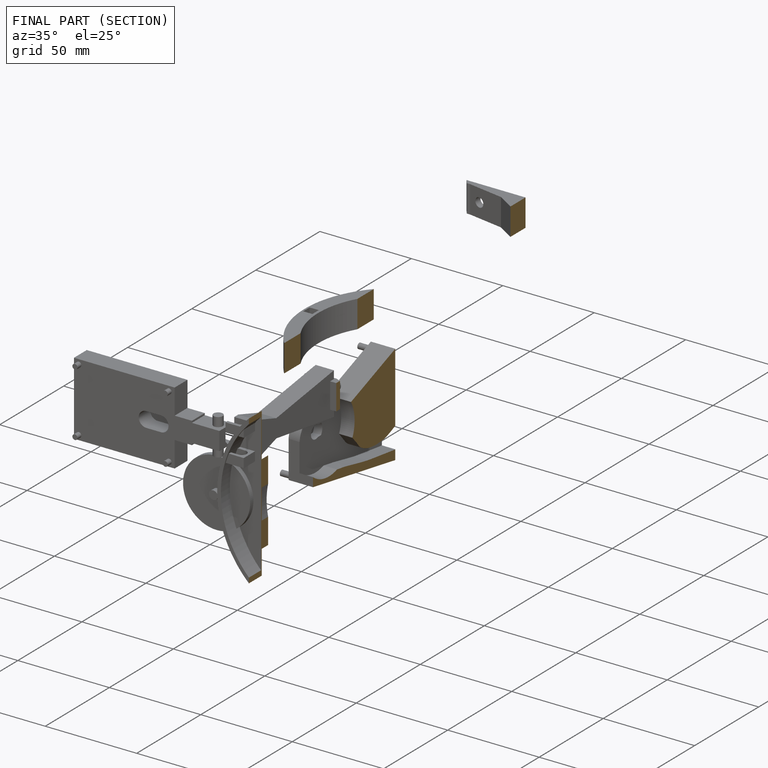
[diagram: finished part — half-section view (interior)]
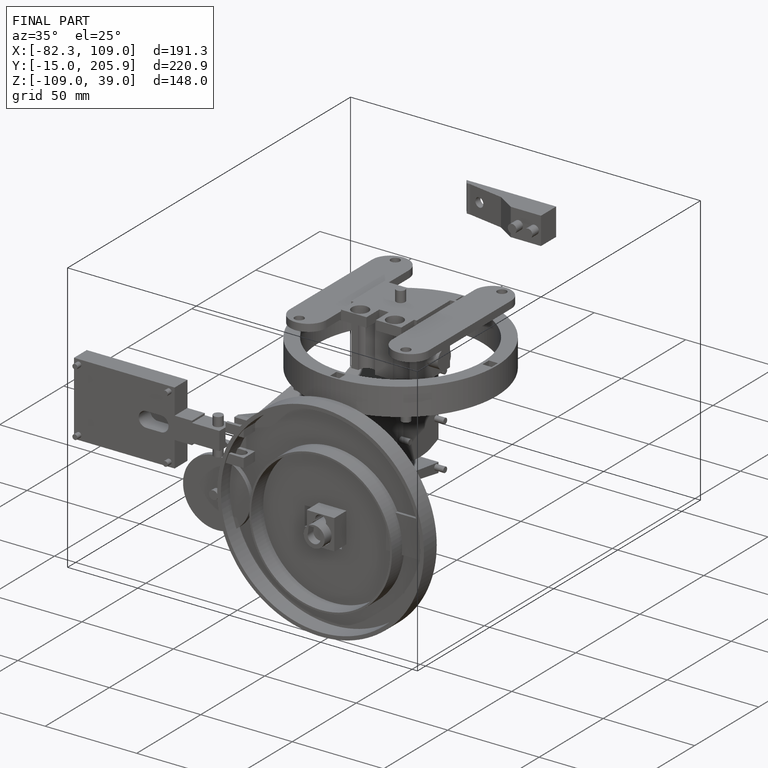
[diagram: finished part — iso view with bounding-box wireframe]
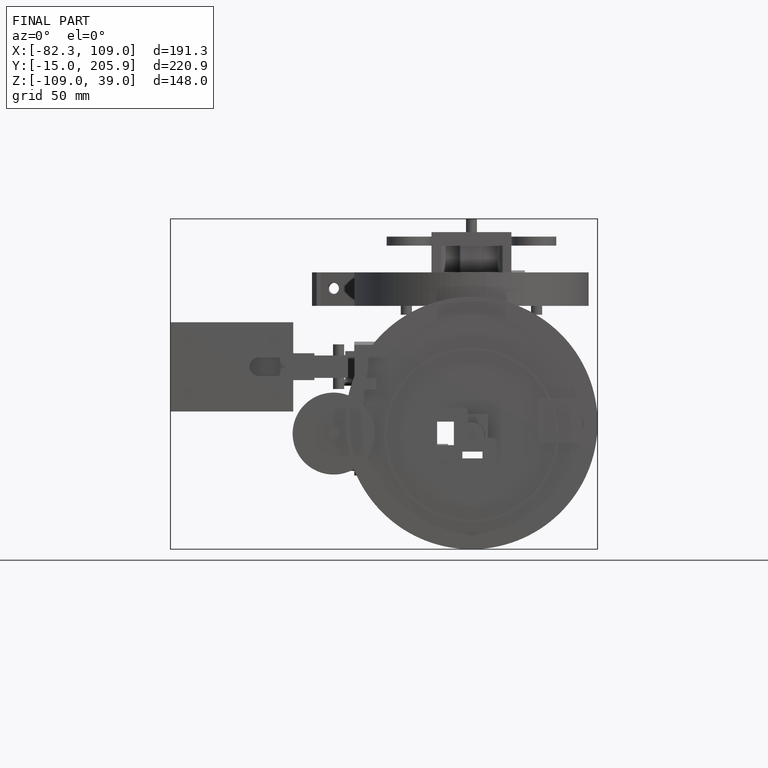
[diagram: finished part — front view with bounding-box wireframe]
